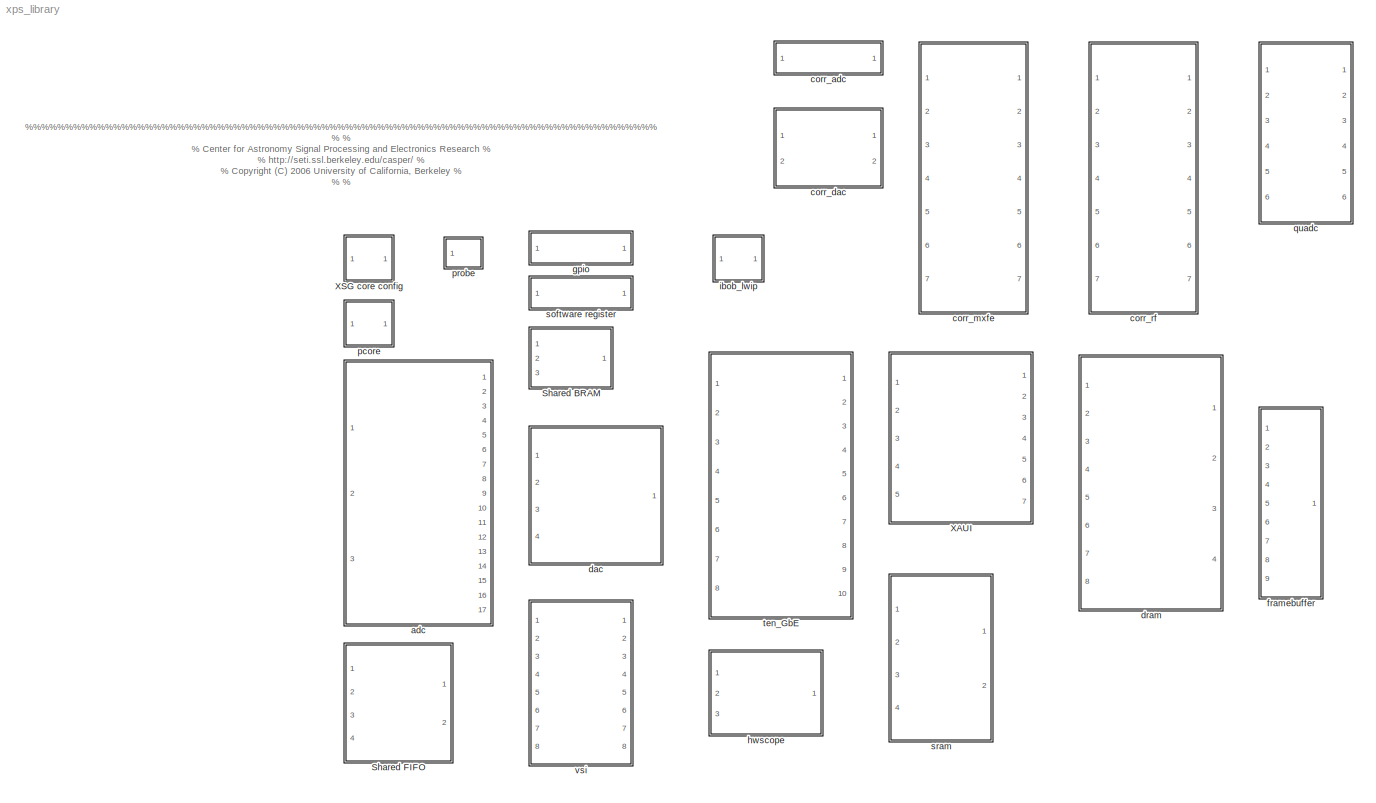
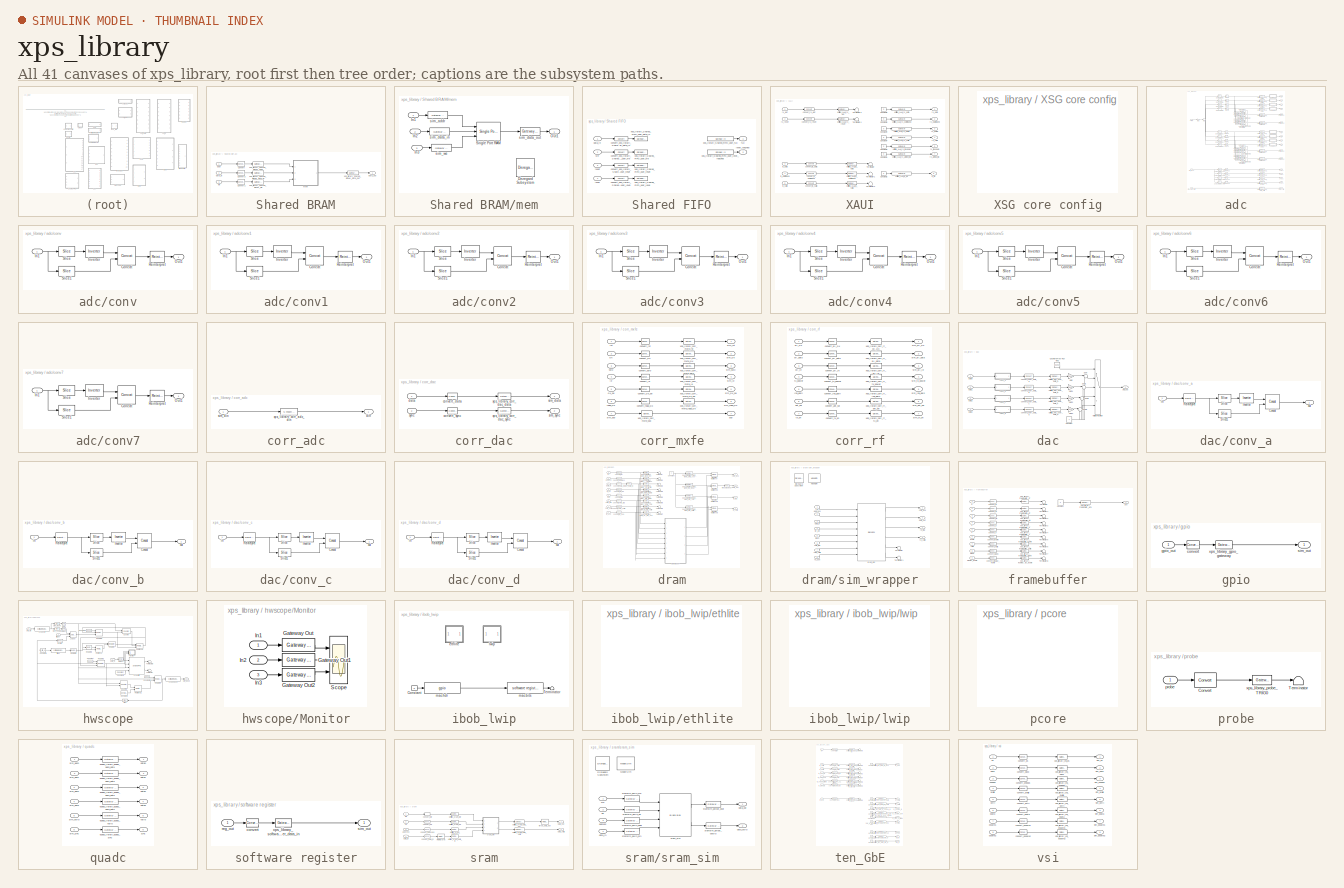
[diagram: thumbnail index - all 41 canvases of the model, root first then tree order]
MODEL xps_library
KIND library
BLOCK [SubSystem] Shared BRAM
  MaskCallbackString = |||||
  MaskEnableString = on,on,off,on,on,on
  MaskIconFrame = on
  MaskIconOpaque = on
  MaskIconRotate = none
  MaskIconUnits = pixels
  MaskInitialization = shared_bram_mask;
  MaskPromptString = Output Data Type|Address width|Data Width|Data Binary Point|Initial values (simulation only)|Sample rate
  MaskSelfModifiable = on
  MaskStyleString = popup(Unsigned|Signed  (2's comp)),edit,edit,edit,edit,edit
  MaskTabNameString = ,,,,,
  MaskToolTipString = on,on,on,on,on,on
  MaskTunableValueString = on,on,on,on,on,on
  MaskValueString = Signed  (2's comp)|11|32|0|[1:2^11]|1
  MaskVarAliasString = ,,,,,
  MaskVariables = arith_type=@1;addr_width=@2;data_width=@3;data_bin_pt=@4;init_vals=@5;sample_rate=@6;
  MaskVisibilityString = on,on,on,on,on,on
  MinAlgLoopOccurrences = off
  Ports = [3, 1]
  RTWSystemCode = Auto
  Tag = xps:bram
  TreatAsAtomicUnit = off
BLOCK [Reference] Shared BRAM/Convert  REF=xbsIndex_r3/Convert
  Ports = [1, 1]
  SourceBlock = xbsIndex_r3/Convert
  SourceType = Xilinx Converter Block
  arith_type = Unsigned
  bin_pt = 0
  dbl_ovrd = off
  explicit_period = off
  inserted_by_tool = off
  latency = 0
  n_bits = addr_width
  overflow = Wrap
  period = 1
  pipeline = off
  quantization = Truncate
  show_param = off
  xl_area = [0, 0, 0, 0, 0, 0, 0]
  xl_use_area = off
BLOCK [Reference] Shared BRAM/Convert1  REF=xbsIndex_r3/Convert
  Ports = [1, 1]
  SourceBlock = xbsIndex_r3/Convert
  SourceType = Xilinx Converter Block
  arith_type = Unsigned
  bin_pt = 0
  dbl_ovrd = off
  explicit_period = off
  inserted_by_tool = off
  latency = 0
  n_bits = 1
  overflow = Wrap
  period = 1
  pipeline = off
  quantization = Truncate
  show_param = off
  xl_area = [0, 0, 0, 0, 0, 0, 0]
  xl_use_area = off
BLOCK [Reference] Shared BRAM/Convert2  REF=xbsIndex_r3/Convert
  Ports = [1, 1]
  SourceBlock = xbsIndex_r3/Convert
  SourceType = Xilinx Converter Block
  arith_type = Signed  (2's comp)
  bin_pt = data_bin_pt
  dbl_ovrd = off
  explicit_period = off
  inserted_by_tool = off
  latency = 0
  n_bits = data_width
  overflow = Wrap
  period = 1
  pipeline = off
  quantization = Truncate
  show_param = off
  xl_area = [0, 0, 0, 0, 0, 0, 0]
  xl_use_area = off
BLOCK [Inport] Shared BRAM/addr
  IconDisplay = Port number
  LatchInput = off
  Port = 1
BLOCK [Inport] Shared BRAM/data_in
  IconDisplay = Port number
  LatchInput = off
  Port = 2
BLOCK [Outport] Shared BRAM/data_out
  BusOutputAsStruct = off
  IconDisplay = Port number
BLOCK [SubSystem] Shared BRAM/mem
  MinAlgLoopOccurrences = off
  Ports = [3, 1]
  RTWSystemCode = Auto
  TreatAsAtomicUnit = off
BLOCK [Reference] Shared BRAM/mem/Disregard Subsystem  REF=xbsIndex_r3/Disregard Subsystem
  AttributesFormatString = Disregard Subsystem\\nFor Generation
  Ports = []
  ShowPortLabels = on
  SourceBlock = xbsIndex_r3/Disregard Subsystem
  SourceType = Xilinx Disregard Subsystem For Generation
  Tag = discardX
BLOCK [Inport] Shared BRAM/mem/In1
  IconDisplay = Port number
  LatchInput = off
  Port = 1
BLOCK [Inport] Shared BRAM/mem/In2
  IconDisplay = Port number
  LatchInput = off
  Port = 2
BLOCK [Inport] Shared BRAM/mem/In3
  IconDisplay = Port number
  LatchInput = off
  Port = 3
BLOCK [Outport] Shared BRAM/mem/Out1
  BusOutputAsStruct = off
  IconDisplay = Port number
BLOCK [Reference] Shared BRAM/mem/Single Port RAM  REF=xbsIndex_r3/Single Port RAM
  Ports = [3, 1]
  SourceBlock = xbsIndex_r3/Single Port RAM
  SourceType = Xilinx Single Port Random Access Memory
  dbl_ovrd = off
  depth = 2^addr_width
  distributed_mem = off
  en = off
  explicit_period = off
  gen_core = off
  initVector = init_vals
  init_reg = 0
  init_zero = on
  latency = 1
  period = 1
  rst = off
  show_param = off
  use_rpm = off
  write_mode = Read After Write
  xl_area = [0, 0, 0, 0, 0, 0, 0]
  xl_use_area = off
BLOCK [Reference] Shared BRAM/mem/sim_addr  REF=xbsIndex_r3/Gateway In
  LOCs = {}
  Ports = [1, 1]
  SourceBlock = xbsIndex_r3/Gateway In
  SourceType = Xilinx Gateway In
  UserData = DataTag0
  UserDataPersistent = on
  arith_type = Unsigned
  bin_pt = 0
  dbl_ovrd = off
  locs_specified = off
  n_bits = addr_width
  needs_fixed_name = on
  overflow = Wrap
  period = sample_rate
  quantization = Truncate
  show_param = off
  timing_constraint = None
  xl_area = [0, 0, 0, 0, 0, 0, 0]
  xl_use_area = off
BLOCK [Reference] Shared BRAM/mem/sim_data_in  REF=xbsIndex_r3/Gateway In
  LOCs = {}
  Ports = [1, 1]
  SourceBlock = xbsIndex_r3/Gateway In
  SourceType = Xilinx Gateway In
  UserData = DataTag1
  UserDataPersistent = on
  arith_type = Signed  (2's comp)
  bin_pt = data_bin_pt
  dbl_ovrd = off
  locs_specified = off
  n_bits = data_width
  needs_fixed_name = on
  overflow = Wrap
  period = sample_rate
  quantization = Truncate
  show_param = off
  timing_constraint = None
  xl_area = [0, 0, 0, 0, 0, 0, 0]
  xl_use_area = off
BLOCK [Reference] Shared BRAM/mem/sim_data_out  REF=xbsIndex_r3/Gateway Out
  LOCs = {'B21','B22','A22','B23','B19','C19','A20','A21','A23','B24','A24','A25','E18','D18','C18','B18'}
  Ports = [1, 1]
  SourceBlock = xbsIndex_r3/Gateway Out
  SourceType = Xilinx Gateway Out
  UserData = DataTag2
  UserDataPersistent = on
  arith_type = Boolean
  bin_pt = 6
  hdl_port = on
  locs_specified = off
  nbits = 8
  needs_fixed_name = on
  output_type = Double
  overflow = Wrap
  quantization = Truncate
  show_param = off
  timing_constraint = None
  xl_area = [0, 0, 0, 0, 0, 0, 0]
  xl_use_area = off
BLOCK [Reference] Shared BRAM/mem/sim_we  REF=xbsIndex_r3/Gateway In
  LOCs = {}
  Ports = [1, 1]
  SourceBlock = xbsIndex_r3/Gateway In
  SourceType = Xilinx Gateway In
  UserData = DataTag3
  UserDataPersistent = on
  arith_type = Boolean
  bin_pt = data_bin_pt
  dbl_ovrd = off
  locs_specified = off
  n_bits = data_width
  needs_fixed_name = on
  overflow = Wrap
  period = sample_rate
  quantization = Truncate
  show_param = off
  timing_constraint = None
  xl_area = [0, 0, 0, 0, 0, 0, 0]
  xl_use_area = off
BLOCK [Inport] Shared BRAM/we
  IconDisplay = Port number
  LatchInput = off
  Port = 3
BLOCK [Reference] Shared BRAM/xps_library_Shared_BRAM_addr  REF=xbsIndex_r3/Gateway Out
  LOCs = {'A5','B9','A9','C1','A3','G6','E9','A6','A7','A8','B8','B1','B3','D9','B5','B4','B6','C2'}
  Ports = [1, 1]
  SourceBlock = xbsIndex_r3/Gateway Out
  SourceType = Xilinx Gateway Out
  UserData = DataTag4
  UserDataPersistent = on
  arith_type = Boolean
  bin_pt = 6
  hdl_port = on
  locs_specified = off
  nbits = 8
  needs_fixed_name = on
  output_type = Double
  overflow = Wrap
  quantization = Truncate
  show_param = off
  timing_constraint = None
  xl_area = [0, 0, 0, 0, 0, 0, 0]
  xl_use_area = off
BLOCK [Reference] Shared BRAM/xps_library_Shared_BRAM_data_in  REF=xbsIndex_r3/Gateway Out
  LOCs = {'B21','B22','A22','B23','B19','C19','A20','A21','A23','B24','A24','A25','E18','D18','C18','B18'}
  Ports = [1, 1]
  SourceBlock = xbsIndex_r3/Gateway Out
  SourceType = Xilinx Gateway Out
  UserData = DataTag5
  UserDataPersistent = on
  arith_type = Boolean
  bin_pt = 6
  hdl_port = on
  locs_specified = off
  nbits = 8
  needs_fixed_name = on
  output_type = Double
  overflow = Wrap
  quantization = Truncate
  show_param = off
  timing_constraint = None
  xl_area = [0, 0, 0, 0, 0, 0, 0]
  xl_use_area = off
BLOCK [Reference] Shared BRAM/xps_library_Shared_BRAM_data_out  REF=xbsIndex_r3/Gateway In
  LOCs = {}
  Ports = [1, 1]
  SourceBlock = xbsIndex_r3/Gateway In
  SourceType = Xilinx Gateway In
  UserData = DataTag6
  UserDataPersistent = on
  arith_type = Signed  (2's comp)
  bin_pt = data_bin_pt
  dbl_ovrd = off
  locs_specified = off
  n_bits = data_width
  needs_fixed_name = on
  overflow = Wrap
  period = sample_rate
  quantization = Truncate
  show_param = off
  timing_constraint = None
  xl_area = [0, 0, 0, 0, 0, 0, 0]
  xl_use_area = off
BLOCK [Reference] Shared BRAM/xps_library_Shared_BRAM_we  REF=xbsIndex_r3/Gateway Out
  LOCs = {'A14'}
  Ports = [1, 1]
  SourceBlock = xbsIndex_r3/Gateway Out
  SourceType = Xilinx Gateway Out
  UserData = DataTag7
  UserDataPersistent = on
  arith_type = Boolean
  bin_pt = 6
  hdl_port = on
  locs_specified = off
  nbits = 8
  needs_fixed_name = on
  output_type = Double
  overflow = Wrap
  quantization = Truncate
  show_param = off
  timing_constraint = None
  xl_area = [0, 0, 0, 0, 0, 0, 0]
  xl_use_area = off
BLOCK [SubSystem] Shared FIFO
  MaskCallbackString = ||||
  MaskEnableString = on,on,on,on,on
  MaskIconFrame = on
  MaskIconOpaque = on
  MaskIconRotate = none
  MaskIconUnits = autoscale
  MaskInitialization = fifo_mask;
  MaskPromptString = I/O Direction:|Data Type:|Data Width:|Data Binary Point:|Depth:
  MaskSelfModifiable = on
  MaskStyleString = popup(From Processor|To Processor),popup(Unsigned|Signed  (2's comp)),popup(4|8|16|32|64|128|256),edit,popup(512|1024|2048|4096|8192|16384|32768|65536)
  MaskTabNameString = ,,,,
  MaskToolTipString = on,on,on,on,on
  MaskTunableValueString = on,on,on,on,on
  MaskValueString = To Processor|Unsigned|32|0|512
  MaskVarAliasString = ,,,,
  MaskVariables = io_dir=@1;arith_type=&2;data_width=@3;data_bin_pt=@4;fifo_length=&5;
  MaskVisibilityString = on,on,on,on,on
  MinAlgLoopOccurrences = off
  Ports = [4, 2]
  RTWSystemCode = Auto
  Tag = xps:fifo
  TreatAsAtomicUnit = off
BLOCK [Reference] Shared FIFO/convert_xps_library_Shared_FIFO_user_data_in  REF=xbsIndex_r3/Convert
  Ports = [1, 1]
  SourceBlock = xbsIndex_r3/Convert
  SourceType = Xilinx Converter Block
  arith_type = Unsigned
  bin_pt = 0
  dbl_ovrd = off
  explicit_period = off
  inserted_by_tool = off
  latency = 0
  n_bits = 32
  overflow = Wrap
  period = 1
  pipeline = off
  quantization = Truncate
  show_param = off
  xl_area = [0, 0, 0, 0, 0, 0, 0]
  xl_use_area = off
BLOCK [Reference] Shared FIFO/convert_xps_library_Shared_FIFO_user_level  REF=xbsIndex_r3/Convert
  Ports = [1, 1]
  SourceBlock = xbsIndex_r3/Convert
  SourceType = Xilinx Converter Block
  arith_type = Unsigned
  bin_pt = 0
  dbl_ovrd = off
  explicit_period = off
  inserted_by_tool = off
  latency = 0
  n_bits = 16
  overflow = Wrap
  period = 1
  pipeline = off
  quantization = Truncate
  show_param = off
  xl_area = [0, 0, 0, 0, 0, 0, 0]
  xl_use_area = off
BLOCK [Reference] Shared FIFO/convert_xps_library_Shared_FIFO_user_reset  REF=xbsIndex_r3/Convert
  Ports = [1, 1]
  SourceBlock = xbsIndex_r3/Convert
  SourceType = Xilinx Converter Block
  arith_type = Unsigned
  bin_pt = 0
  dbl_ovrd = off
  explicit_period = off
  inserted_by_tool = off
  latency = 0
  n_bits = 1
  overflow = Wrap
  period = 1
  pipeline = off
  quantization = Truncate
  show_param = off
  xl_area = [0, 0, 0, 0, 0, 0, 0]
  xl_use_area = off
BLOCK [Reference] Shared FIFO/convert_xps_library_Shared_FIFO_user_we  REF=xbsIndex_r3/Convert
  Ports = [1, 1]
  SourceBlock = xbsIndex_r3/Convert
  SourceType = Xilinx Converter Block
  arith_type = Unsigned
  bin_pt = 0
  dbl_ovrd = off
  explicit_period = off
  inserted_by_tool = off
  latency = 0
  n_bits = 1
  overflow = Wrap
  period = 1
  pipeline = off
  quantization = Truncate
  show_param = off
  xl_area = [0, 0, 0, 0, 0, 0, 0]
  xl_use_area = off
BLOCK [Inport] Shared FIFO/data_in
  IconDisplay = Port number
  LatchInput = off
  Port = 1
BLOCK [Outport] Shared FIFO/full
  BusOutputAsStruct = off
  IconDisplay = Port number
BLOCK [Inport] Shared FIFO/level
  IconDisplay = Port number
  LatchInput = off
  Port = 4
BLOCK [Outport] Shared FIFO/level_reached
  BusOutputAsStruct = off
  IconDisplay = Port number
  Port = 2
BLOCK [Inport] Shared FIFO/reset
  IconDisplay = Port number
  LatchInput = off
  Port = 3
BLOCK [Inport] Shared FIFO/we
  IconDisplay = Port number
  LatchInput = off
  Port = 2
BLOCK [Reference] Shared FIFO/xps_library_Shared_FIFO_user_data_in  REF=xbsIndex_r3/Gateway Out
  LOCs = {}
  Ports = [1, 1]
  SourceBlock = xbsIndex_r3/Gateway Out
  SourceType = Xilinx Gateway Out
  arith_type = Boolean
  bin_pt = 6
  hdl_port = on
  locs_specified = off
  nbits = 8
  needs_fixed_name = off
  output_type = Double
  overflow = Wrap
  quantization = Truncate
  show_param = off
  timing_constraint = None
  xl_area = [0, 0, 0, 0, 0, 0, 0]
  xl_use_area = off
BLOCK [Reference] Shared FIFO/xps_library_Shared_FIFO_user_full  REF=xbsIndex_r3/Gateway In
  LOCs = {}
  Ports = [1, 1]
  SourceBlock = xbsIndex_r3/Gateway In
  SourceType = Xilinx Gateway In
  arith_type = Boolean
  bin_pt = 0
  dbl_ovrd = off
  locs_specified = off
  n_bits = 1
  needs_fixed_name = off
  overflow = Wrap
  period = 1
  quantization = Truncate
  show_param = off
  timing_constraint = None
  xl_area = [0, 0, 0, 0, 0, 0, 0]
  xl_use_area = off
BLOCK [Reference] Shared FIFO/xps_library_Shared_FIFO_user_level  REF=xbsIndex_r3/Gateway Out
  LOCs = {}
  Ports = [1, 1]
  SourceBlock = xbsIndex_r3/Gateway Out
  SourceType = Xilinx Gateway Out
  arith_type = Boolean
  bin_pt = 6
  hdl_port = on
  locs_specified = off
  nbits = 8
  needs_fixed_name = off
  output_type = Double
  overflow = Wrap
  quantization = Truncate
  show_param = off
  timing_constraint = None
  xl_area = [0, 0, 0, 0, 0, 0, 0]
  xl_use_area = off
BLOCK [Reference] Shared FIFO/xps_library_Shared_FIFO_user_level_reached  REF=xbsIndex_r3/Gateway In
  LOCs = {}
  Ports = [1, 1]
  SourceBlock = xbsIndex_r3/Gateway In
  SourceType = Xilinx Gateway In
  arith_type = Boolean
  bin_pt = 0
  dbl_ovrd = off
  locs_specified = off
  n_bits = 1
  needs_fixed_name = off
  overflow = Wrap
  period = 1
  quantization = Truncate
  show_param = off
  timing_constraint = None
  xl_area = [0, 0, 0, 0, 0, 0, 0]
  xl_use_area = off
BLOCK [Reference] Shared FIFO/xps_library_Shared_FIFO_user_reset  REF=xbsIndex_r3/Gateway Out
  LOCs = {}
  Ports = [1, 1]
  SourceBlock = xbsIndex_r3/Gateway Out
  SourceType = Xilinx Gateway Out
  arith_type = Boolean
  bin_pt = 6
  hdl_port = on
  locs_specified = off
  nbits = 8
  needs_fixed_name = off
  output_type = Double
  overflow = Wrap
  quantization = Truncate
  show_param = off
  timing_constraint = None
  xl_area = [0, 0, 0, 0, 0, 0, 0]
  xl_use_area = off
BLOCK [Reference] Shared FIFO/xps_library_Shared_FIFO_user_we  REF=xbsIndex_r3/Gateway Out
  LOCs = {}
  Ports = [1, 1]
  SourceBlock = xbsIndex_r3/Gateway Out
  SourceType = Xilinx Gateway Out
  arith_type = Boolean
  bin_pt = 6
  hdl_port = on
  locs_specified = off
  nbits = 8
  needs_fixed_name = off
  output_type = Double
  overflow = Wrap
  quantization = Truncate
  show_param = off
  timing_constraint = None
  xl_area = [0, 0, 0, 0, 0, 0, 0]
  xl_use_area = off
BLOCK [SubSystem] XAUI
  MaskCallbackString = ||myname=gcb;\nif strcmp(get_param(myname, 'show_param'), 'on')\n    set_param(myname, 'MaskVisibilities', {'on','on','on','on','on'});\nelse\n    set_param(myname, 'MaskVisibilities', {'on','on','on','off','off'});\nend||
  MaskDescription = XAUI block for sending and receiving point-to-point, streaming data over the BEE2 and iBOB's CX4 connectors. NOTE: A new version of this block is in development.
  MaskEnableString = on,on,on,on,on
  MaskHelp = eval('xlWeb([getenv(''MLIB_ROOT''), ''<path>''])')
  MaskIconFrame = on
  MaskIconOpaque = on
  MaskIconRotate = none
  MaskIconUnits = autoscale
  MaskInitialization = xaui_mask;
  MaskPromptString = Demux|Port|---------------------- Show Implementation Parameters -----------------------------------------------------------------------------------|Pre-emphasis|Differential swing
  MaskSelfModifiable = on
  MaskStyleString = popup(1|2),popup(iBOB:0|iBOB:1|BEE2_ctrl:0|BEE2_ctrl:1|BEE2_usr:0|BEE2_usr:1|BEE2_usr:2|BEE2_usr:3|CORR:0),checkbox,popup(0|1|2|3),popup(400|500|600|700|800)
  MaskTabNameString = ,,,,
  MaskToolTipString = on,on,on,on,on
  MaskTunableValueString = off,off,off,off,off
  MaskType = xaui
  MaskValueString = 1|iBOB:0|off|3|800
  MaskVarAliasString = ,,,,
  MaskVariables = demux=@1;port=@2;show_param=&3;pre_emph=@4;swing=@5;
  MaskVisibilityString = on,on,on,off,off
  MinAlgLoopOccurrences = off
  Ports = [5, 7]
  RTWSystemCode = Auto
  Tag = xps:xaui
  TreatAsAtomicUnit = off
BLOCK [Constant] XAUI/Constant1
  Value = 0
BLOCK [Constant] XAUI/Constant2
  Value = 0
BLOCK [Constant] XAUI/Constant3
  Value = 0
BLOCK [Constant] XAUI/Constant4
  Value = 0
BLOCK [Constant] XAUI/Constant5
  Value = 0
BLOCK [Constant] XAUI/Constant6
  Value = 0
BLOCK [Constant] XAUI/Constant7
  Value = 0
BLOCK [Terminator] XAUI/Terminator
BLOCK [Terminator] XAUI/Terminator1
BLOCK [Terminator] XAUI/Terminator2
BLOCK [Terminator] XAUI/Terminator3
BLOCK [Terminator] XAUI/Terminator4
BLOCK [Reference] XAUI/convert_rx_get  REF=xbsIndex_r3/Convert
  Ports = [1, 1]
  SourceBlock = xbsIndex_r3/Convert
  SourceType = Xilinx Converter Block
  arith_type = Boolean
  bin_pt = 0
  dbl_ovrd = off
  explicit_period = off
  inserted_by_tool = off
  latency = 0
  n_bits = 64
  overflow = Wrap
  period = 1
  pipeline = off
  quantization = Truncate
  show_param = off
  xl_area = [0, 0, 0, 0, 0, 0, 0]
  xl_use_area = off
BLOCK [Reference] XAUI/convert_rx_reset  REF=xbsIndex_r3/Convert
  Ports = [1, 1]
  SourceBlock = xbsIndex_r3/Convert
  SourceType = Xilinx Converter Block
  arith_type = Boolean
  bin_pt = 0
  dbl_ovrd = off
  explicit_period = off
  inserted_by_tool = off
  latency = 0
  n_bits = 1
  overflow = Wrap
  period = 1
  pipeline = off
  quantization = Truncate
  show_param = off
  xl_area = [0, 0, 0, 0, 0, 0, 0]
  xl_use_area = off
BLOCK [Reference] XAUI/convert_tx_data  REF=xbsIndex_r3/Convert
  Ports = [1, 1]
  SourceBlock = xbsIndex_r3/Convert
  SourceType = Xilinx Converter Block
  arith_type = Unsigned
  bin_pt = 0
  dbl_ovrd = off
  explicit_period = off
  inserted_by_tool = off
  latency = 0
  n_bits = 64
  overflow = Wrap
  period = 1
  pipeline = off
  quantization = Truncate
  show_param = off
  xl_area = [0, 0, 0, 0, 0, 0, 0]
  xl_use_area = off
BLOCK [Reference] XAUI/convert_tx_outofband  REF=xbsIndex_r3/Convert
  Ports = [1, 1]
  SourceBlock = xbsIndex_r3/Convert
  SourceType = Xilinx Converter Block
  arith_type = Unsigned
  bin_pt = 0
  dbl_ovrd = off
  explicit_period = off
  inserted_by_tool = off
  latency = 0
  n_bits = 8
  overflow = Wrap
  period = 1
  pipeline = off
  quantization = Truncate
  show_param = off
  xl_area = [0, 0, 0, 0, 0, 0, 0]
  xl_use_area = off
BLOCK [Reference] XAUI/convert_tx_valid  REF=xbsIndex_r3/Convert
  Ports = [1, 1]
  SourceBlock = xbsIndex_r3/Convert
  SourceType = Xilinx Converter Block
  arith_type = Boolean
  bin_pt = 0
  dbl_ovrd = off
  explicit_period = off
  inserted_by_tool = off
  latency = 0
  n_bits = 1
  overflow = Wrap
  period = 1
  pipeline = off
  quantization = Truncate
  show_param = off
  xl_area = [0, 0, 0, 0, 0, 0, 0]
  xl_use_area = off
BLOCK [Outport] XAUI/rx_almost_full
  BusOutputAsStruct = off
  IconDisplay = Port number
  Port = 7
BLOCK [Outport] XAUI/rx_data
  BusOutputAsStruct = off
  IconDisplay = Port number
BLOCK [Outport] XAUI/rx_empty
  BusOutputAsStruct = off
  IconDisplay = Port number
  Port = 3
BLOCK [Inport] XAUI/rx_get
  IconDisplay = Port number
  LatchInput = off
  Port = 1
BLOCK [Outport] XAUI/rx_linkdown
  BusOutputAsStruct = off
  IconDisplay = Port number
  Port = 5
BLOCK [Outport] XAUI/rx_outofband
  BusOutputAsStruct = off
  IconDisplay = Port number
  Port = 2
BLOCK [Inport] XAUI/rx_reset
  IconDisplay = Port number
  LatchInput = off
  Port = 2
BLOCK [Outport] XAUI/rx_valid
  BusOutputAsStruct = off
  IconDisplay = Port number
  Port = 4
BLOCK [Inport] XAUI/tx_data
  IconDisplay = Port number
  LatchInput = off
  Port = 3
BLOCK [Outport] XAUI/tx_full
  BusOutputAsStruct = off
  IconDisplay = Port number
  Port = 6
BLOCK [Inport] XAUI/tx_outofband
  IconDisplay = Port number
  LatchInput = off
  Port = 4
BLOCK [Inport] XAUI/tx_valid
  IconDisplay = Port number
  LatchInput = off
  Port = 5
BLOCK [Reference] XAUI/untitled_XAUI_rx_almost_full  REF=xbsIndex_r3/Gateway In
  LOCs = {}
  Ports = [1, 1]
  SourceBlock = xbsIndex_r3/Gateway In
  SourceType = Xilinx Gateway In
  arith_type = Boolean
  bin_pt = 0
  dbl_ovrd = off
  locs_specified = off
  n_bits = 1
  needs_fixed_name = off
  overflow = Wrap
  period = 1
  quantization = Truncate
  show_param = off
  timing_constraint = None
  xl_area = [0, 0, 0, 0, 0, 0, 0]
  xl_use_area = off
BLOCK [Reference] XAUI/untitled_XAUI_rx_data  REF=xbsIndex_r3/Gateway In
  LOCs = {}
  Ports = [1, 1]
  SourceBlock = xbsIndex_r3/Gateway In
  SourceType = Xilinx Gateway In
  arith_type = Unsigned
  bin_pt = 0
  dbl_ovrd = off
  locs_specified = off
  n_bits = 64
  needs_fixed_name = off
  overflow = Wrap
  period = 1
  quantization = Truncate
  show_param = off
  timing_constraint = None
  xl_area = [0, 0, 0, 0, 0, 0, 0]
  xl_use_area = off
BLOCK [Reference] XAUI/untitled_XAUI_rx_empty  REF=xbsIndex_r3/Gateway In
  LOCs = {}
  Ports = [1, 1]
  SourceBlock = xbsIndex_r3/Gateway In
  SourceType = Xilinx Gateway In
  arith_type = Boolean
  bin_pt = 0
  dbl_ovrd = off
  locs_specified = off
  n_bits = 1
  needs_fixed_name = off
  overflow = Wrap
  period = 1
  quantization = Truncate
  show_param = off
  timing_constraint = None
  xl_area = [0, 0, 0, 0, 0, 0, 0]
  xl_use_area = off
BLOCK [Reference] XAUI/untitled_XAUI_rx_get  REF=xbsIndex_r3/Gateway Out
  LOCs = {}
  Ports = [1, 1]
  SourceBlock = xbsIndex_r3/Gateway Out
  SourceType = Xilinx Gateway Out
  arith_type = Boolean
  bin_pt = 6
  hdl_port = on
  locs_specified = off
  nbits = 8
  needs_fixed_name = off
  output_type = Double
  overflow = Wrap
  quantization = Truncate
  show_param = off
  timing_constraint = None
  xl_area = [0, 0, 0, 0, 0, 0, 0]
  xl_use_area = off
BLOCK [Reference] XAUI/untitled_XAUI_rx_linkdown  REF=xbsIndex_r3/Gateway In
  LOCs = {}
  Ports = [1, 1]
  SourceBlock = xbsIndex_r3/Gateway In
  SourceType = Xilinx Gateway In
  arith_type = Boolean
  bin_pt = 0
  dbl_ovrd = off
  locs_specified = off
  n_bits = 1
  needs_fixed_name = off
  overflow = Wrap
  period = 1
  quantization = Truncate
  show_param = off
  timing_constraint = None
  xl_area = [0, 0, 0, 0, 0, 0, 0]
  xl_use_area = off
BLOCK [Reference] XAUI/untitled_XAUI_rx_outofband  REF=xbsIndex_r3/Gateway In
  LOCs = {}
  Ports = [1, 1]
  SourceBlock = xbsIndex_r3/Gateway In
  SourceType = Xilinx Gateway In
  arith_type = Unsigned
  bin_pt = 0
  dbl_ovrd = off
  locs_specified = off
  n_bits = 8
  needs_fixed_name = off
  overflow = Wrap
  period = 1
  quantization = Truncate
  show_param = off
  timing_constraint = None
  xl_area = [0, 0, 0, 0, 0, 0, 0]
  xl_use_area = off
BLOCK [Reference] XAUI/untitled_XAUI_rx_reset  REF=xbsIndex_r3/Gateway Out
  LOCs = {}
  Ports = [1, 1]
  SourceBlock = xbsIndex_r3/Gateway Out
  SourceType = Xilinx Gateway Out
  arith_type = Boolean
  bin_pt = 6
  hdl_port = on
  locs_specified = off
  nbits = 8
  needs_fixed_name = off
  output_type = Double
  overflow = Wrap
  quantization = Truncate
  show_param = off
  timing_constraint = None
  xl_area = [0, 0, 0, 0, 0, 0, 0]
  xl_use_area = off
BLOCK [Reference] XAUI/untitled_XAUI_rx_valid  REF=xbsIndex_r3/Gateway In
  LOCs = {}
  Ports = [1, 1]
  SourceBlock = xbsIndex_r3/Gateway In
  SourceType = Xilinx Gateway In
  arith_type = Boolean
  bin_pt = 0
  dbl_ovrd = off
  locs_specified = off
  n_bits = 1
  needs_fixed_name = off
  overflow = Wrap
  period = 1
  quantization = Truncate
  show_param = off
  timing_constraint = None
  xl_area = [0, 0, 0, 0, 0, 0, 0]
  xl_use_area = off
BLOCK [Reference] XAUI/untitled_XAUI_tx_data  REF=xbsIndex_r3/Gateway Out
  LOCs = {}
  Ports = [1, 1]
  SourceBlock = xbsIndex_r3/Gateway Out
  SourceType = Xilinx Gateway Out
  arith_type = Boolean
  bin_pt = 6
  hdl_port = on
  locs_specified = off
  nbits = 8
  needs_fixed_name = off
  output_type = Double
  overflow = Wrap
  quantization = Truncate
  show_param = off
  timing_constraint = None
  xl_area = [0, 0, 0, 0, 0, 0, 0]
  xl_use_area = off
BLOCK [Reference] XAUI/untitled_XAUI_tx_full  REF=xbsIndex_r3/Gateway In
  LOCs = {}
  Ports = [1, 1]
  SourceBlock = xbsIndex_r3/Gateway In
  SourceType = Xilinx Gateway In
  arith_type = Boolean
  bin_pt = 0
  dbl_ovrd = off
  locs_specified = off
  n_bits = 1
  needs_fixed_name = off
  overflow = Wrap
  period = 1
  quantization = Truncate
  show_param = off
  timing_constraint = None
  xl_area = [0, 0, 0, 0, 0, 0, 0]
  xl_use_area = off
BLOCK [Reference] XAUI/untitled_XAUI_tx_outofband  REF=xbsIndex_r3/Gateway Out
  LOCs = {}
  Ports = [1, 1]
  SourceBlock = xbsIndex_r3/Gateway Out
  SourceType = Xilinx Gateway Out
  arith_type = Boolean
  bin_pt = 6
  hdl_port = on
  locs_specified = off
  nbits = 8
  needs_fixed_name = off
  output_type = Double
  overflow = Wrap
  quantization = Truncate
  show_param = off
  timing_constraint = None
  xl_area = [0, 0, 0, 0, 0, 0, 0]
  xl_use_area = off
BLOCK [Reference] XAUI/untitled_XAUI_tx_valid  REF=xbsIndex_r3/Gateway Out
  LOCs = {}
  Ports = [1, 1]
  SourceBlock = xbsIndex_r3/Gateway Out
  SourceType = Xilinx Gateway Out
  arith_type = Boolean
  bin_pt = 6
  hdl_port = on
  locs_specified = off
  nbits = 8
  needs_fixed_name = off
  output_type = Double
  overflow = Wrap
  quantization = Truncate
  show_param = off
  timing_constraint = None
  xl_area = [0, 0, 0, 0, 0, 0, 0]
  xl_use_area = off
BLOCK [SubSystem] XSG core config
  MaskCallbackString = myname=gcb;\nif strcmp(get_param(myname,'hw_sys'), 'iBOB')\n    if strmatch('usr_clk', get_param(myname,'clk_src'))\n        set_param(myname, 'MaskVisibilities', {'on','on','on','on','on','on','on','on','off'});\n    else\n        set_param(myname, 'MaskVisibilities', {'on','on','on','off','off','on','on','on','off'});\n    end\nelse\n    set_param(myname, 'MaskVisibilities', {'on','off','on','of...<+482ch>
  MaskDescription = The XSG Core Config block is used to configure the System Generator design\nfor the bee_xps toolflow. Settings here are used to configure the\nXilinx System Generator block parameters automatically, and control toolflow\nscript  execution. It needs to be at the top level of all designs being compiled\nwith the bee_xps toolflow.
  MaskDisplay = fprintf('MSSGE');
  MaskEnableString = on,on,on,on,on,on,on,on,on
  MaskHelp = eval('xlWeb([getenv(''MLIB_ROOT''), ''<path>''])')
  MaskIconFrame = on
  MaskIconOpaque = on
  MaskIconRotate = none
  MaskIconUnits = autoscale
  MaskInitialization = xps_xsg_conf_mask;
  MaskPromptString = Hardware Platform|Include Linux add-on board support|User IP Clock source|GPIO Clock Pin I/O group|GPIO Clock Pin bit index|User IP Clock Rate (MHz)|Sample Period|Synthesis Tool:|Mask Parameter 10:
  MaskSelfModifiable = on
  MaskStyleString = popup(iBOB|BEE2_ctrl|BEE2_usr|CORR),checkbox,popup(sys_clk|sys_clk2x|usr_clk|usr_clk2x|adc0_clk|adc1_clk|dac0_clk|dac1_clk),popup(iBOB:gpio0|iBOB:gpio1|iBOB:gpio2|iBOB:gpio3|iBOB:sma|iBOB:zdok0|iBOB:zdok1|iBOB:mdr),edit,edit,edit,popup(Leonardo Spectrum|Synplify|Synplify Pro|XST),edit
  MaskTabNameString = ,,,,,,,,
  MaskToolTipString = on,on,on,on,on,on,on,on,on
  MaskTunableValueString = off,off,off,off,off,off,off,off,off
  MaskType = xsg core config
  MaskValueString = iBOB|off|sys_clk|iBOB:sma|0|100|1|XST|powerpc405
  MaskVarAliasString = ,,,,,,,,
  MaskVariables = hw_sys=@1;ibob_linux=@2;clk_src=@3;gpio_clk_io_group=@4;gpio_clk_bit_index=@5;clk_rate=@6;sample_period=@7;synthesis_tool=@8;mpc_type=@9;
  MaskVisibilityString = on,on,on,off,off,on,on,on,off
  MinAlgLoopOccurrences = off
  Ports = []
  RTWSystemCode = Auto
  Tag = xps:xsg
  TreatAsAtomicUnit = off
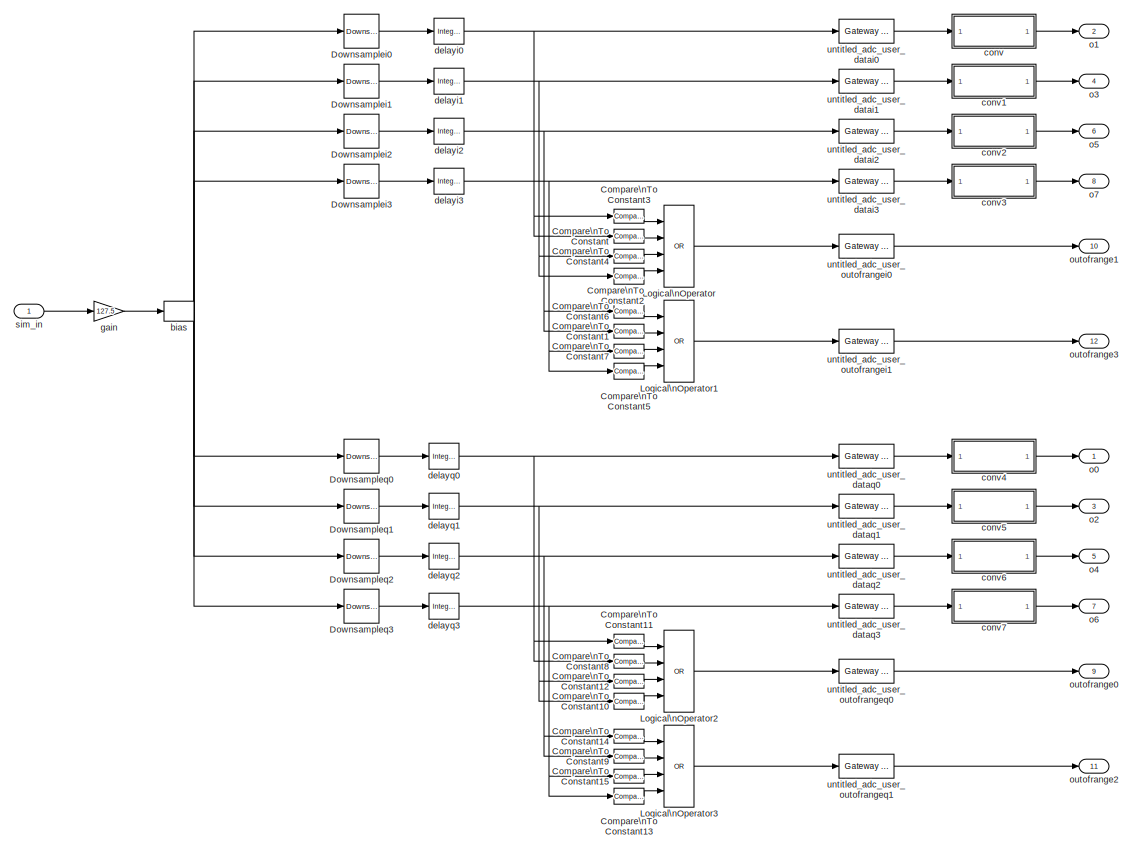
[diagram: adc - part 1/2, full width, middle band]
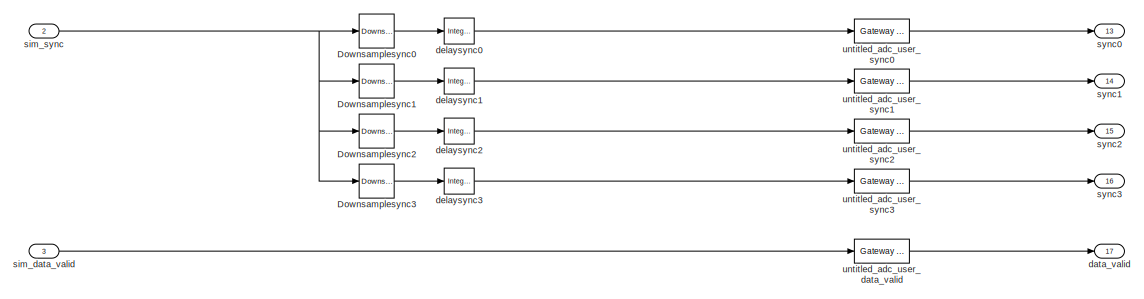
[diagram: adc - part 2/2, full width, bottom band]
BLOCK [SubSystem] adc
  MaskCallbackString = |||
  MaskDescription = The ADC block converts analog inputs to digital outputs. Every clock cycle, the inputs are sampled and digitized to 8 bit binary point numbers in the range of [-1, 1) and are then output by the adc.
  MaskDisplay = \n
  MaskEnableString = on,on,on,on
  MaskHelp = eval('xlWeb([getenv(''MLIB_ROOT''), ''<path>''])')
  MaskIconFrame = on
  MaskIconOpaque = on
  MaskIconRotate = none
  MaskIconUnits = autoscale
  MaskInitialization = adc_mask;
  MaskPromptString = ADC board|ADC clock rate (MHz)|ADC interleave mode|Sample period
  MaskSelfModifiable = on
  MaskStyleString = popup(iBOB:adc0|iBOB:adc1),edit,checkbox,edit
  MaskTabNameString = ,,,
  MaskToolTipString = on,on,on,on
  MaskTunableValueString = on,on,on,on
  MaskType = adc
  MaskValueString = iBOB:adc0|800|on|1
  MaskVarAliasString = ,,,
  MaskVariables = adc_brd=@1;adc_clk_rate=@2;adc_interleave=@3;sample_period=@4;
  MaskVisibilityString = on,on,on,on
  MinAlgLoopOccurrences = off
  Ports = [3, 17]
  RTWSystemCode = Auto
  Tag = xps:adc
  TreatAsAtomicUnit = off
BLOCK [Reference] adc/Compare\nTo Constant  REF=simulink/Logic and Bit\nOperations/Compare\nTo Constant
  LogicOutDataTypeMode = boolean
  Ports = [1, 1]
  ShowPortLabels = on
  SourceBlock = simulink/Logic and Bit\nOperations/Compare\nTo Constant
  SourceType = Compare To Constant
  ZeroCross = off
  const = 255
  relop = >
BLOCK [Reference] adc/Compare\nTo Constant1  REF=simulink/Logic and Bit\nOperations/Compare\nTo Constant
  LogicOutDataTypeMode = boolean
  Ports = [1, 1]
  ShowPortLabels = on
  SourceBlock = simulink/Logic and Bit\nOperations/Compare\nTo Constant
  SourceType = Compare To Constant
  ZeroCross = off
  const = 255
  relop = >
BLOCK [Reference] adc/Compare\nTo Constant10  REF=simulink/Logic and Bit\nOperations/Compare\nTo Constant
  LogicOutDataTypeMode = boolean
  Ports = [1, 1]
  ShowPortLabels = on
  SourceBlock = simulink/Logic and Bit\nOperations/Compare\nTo Constant
  SourceType = Compare To Constant
  ZeroCross = off
  const = 255
  relop = >
BLOCK [Reference] adc/Compare\nTo Constant11  REF=simulink/Logic and Bit\nOperations/Compare\nTo Constant
  LogicOutDataTypeMode = boolean
  Ports = [1, 1]
  ShowPortLabels = on
  SourceBlock = simulink/Logic and Bit\nOperations/Compare\nTo Constant
  SourceType = Compare To Constant
  ZeroCross = off
  const = 0
  relop = <
BLOCK [Reference] adc/Compare\nTo Constant12  REF=simulink/Logic and Bit\nOperations/Compare\nTo Constant
  LogicOutDataTypeMode = boolean
  Ports = [1, 1]
  ShowPortLabels = on
  SourceBlock = simulink/Logic and Bit\nOperations/Compare\nTo Constant
  SourceType = Compare To Constant
  ZeroCross = off
  const = 0
  relop = <
BLOCK [Reference] adc/Compare\nTo Constant13  REF=simulink/Logic and Bit\nOperations/Compare\nTo Constant
  LogicOutDataTypeMode = boolean
  Ports = [1, 1]
  ShowPortLabels = on
  SourceBlock = simulink/Logic and Bit\nOperations/Compare\nTo Constant
  SourceType = Compare To Constant
  ZeroCross = off
  const = 255
  relop = >
BLOCK [Reference] adc/Compare\nTo Constant14  REF=simulink/Logic and Bit\nOperations/Compare\nTo Constant
  LogicOutDataTypeMode = boolean
  Ports = [1, 1]
  ShowPortLabels = on
  SourceBlock = simulink/Logic and Bit\nOperations/Compare\nTo Constant
  SourceType = Compare To Constant
  ZeroCross = off
  const = 0
  relop = <
BLOCK [Reference] adc/Compare\nTo Constant15  REF=simulink/Logic and Bit\nOperations/Compare\nTo Constant
  LogicOutDataTypeMode = boolean
  Ports = [1, 1]
  ShowPortLabels = on
  SourceBlock = simulink/Logic and Bit\nOperations/Compare\nTo Constant
  SourceType = Compare To Constant
  ZeroCross = off
  const = 0
  relop = <
BLOCK [Reference] adc/Compare\nTo Constant2  REF=simulink/Logic and Bit\nOperations/Compare\nTo Constant
  LogicOutDataTypeMode = boolean
  Ports = [1, 1]
  ShowPortLabels = on
  SourceBlock = simulink/Logic and Bit\nOperations/Compare\nTo Constant
  SourceType = Compare To Constant
  ZeroCross = off
  const = 255
  relop = >
BLOCK [Reference] adc/Compare\nTo Constant3  REF=simulink/Logic and Bit\nOperations/Compare\nTo Constant
  LogicOutDataTypeMode = boolean
  Ports = [1, 1]
  ShowPortLabels = on
  SourceBlock = simulink/Logic and Bit\nOperations/Compare\nTo Constant
  SourceType = Compare To Constant
  ZeroCross = off
  const = 0
  relop = <
BLOCK [Reference] adc/Compare\nTo Constant4  REF=simulink/Logic and Bit\nOperations/Compare\nTo Constant
  LogicOutDataTypeMode = boolean
  Ports = [1, 1]
  ShowPortLabels = on
  SourceBlock = simulink/Logic and Bit\nOperations/Compare\nTo Constant
  SourceType = Compare To Constant
  ZeroCross = off
  const = 0
  relop = <
BLOCK [Reference] adc/Compare\nTo Constant5  REF=simulink/Logic and Bit\nOperations/Compare\nTo Constant
  LogicOutDataTypeMode = boolean
  Ports = [1, 1]
  ShowPortLabels = on
  SourceBlock = simulink/Logic and Bit\nOperations/Compare\nTo Constant
  SourceType = Compare To Constant
  ZeroCross = off
  const = 255
  relop = >
BLOCK [Reference] adc/Compare\nTo Constant6  REF=simulink/Logic and Bit\nOperations/Compare\nTo Constant
  LogicOutDataTypeMode = boolean
  Ports = [1, 1]
  ShowPortLabels = on
  SourceBlock = simulink/Logic and Bit\nOperations/Compare\nTo Constant
  SourceType = Compare To Constant
  ZeroCross = off
  const = 0
  relop = <
BLOCK [Reference] adc/Compare\nTo Constant7  REF=simulink/Logic and Bit\nOperations/Compare\nTo Constant
  LogicOutDataTypeMode = boolean
  Ports = [1, 1]
  ShowPortLabels = on
  SourceBlock = simulink/Logic and Bit\nOperations/Compare\nTo Constant
  SourceType = Compare To Constant
  ZeroCross = off
  const = 0
  relop = <
BLOCK [Reference] adc/Compare\nTo Constant8  REF=simulink/Logic and Bit\nOperations/Compare\nTo Constant
  LogicOutDataTypeMode = boolean
  Ports = [1, 1]
  ShowPortLabels = on
  SourceBlock = simulink/Logic and Bit\nOperations/Compare\nTo Constant
  SourceType = Compare To Constant
  ZeroCross = off
  const = 255
  relop = >
BLOCK [Reference] adc/Compare\nTo Constant9  REF=simulink/Logic and Bit\nOperations/Compare\nTo Constant
  LogicOutDataTypeMode = boolean
  Ports = [1, 1]
  ShowPortLabels = on
  SourceBlock = simulink/Logic and Bit\nOperations/Compare\nTo Constant
  SourceType = Compare To Constant
  ZeroCross = off
  const = 255
  relop = >
BLOCK [Reference] adc/Downsamplei0  REF=dspsigops/Downsample
  N = 8
  Ports = [1, 1]
  SourceBlock = dspsigops/Downsample
  SourceType = Downsample
  fmode = Maintain input frame size
  ic = 0
  phase = 1
  smode = Allow multirate
BLOCK [Reference] adc/Downsamplei1  REF=dspsigops/Downsample
  N = 8
  Ports = [1, 1]
  SourceBlock = dspsigops/Downsample
  SourceType = Downsample
  fmode = Maintain input frame size
  ic = 0
  phase = 3
  smode = Allow multirate
BLOCK [Reference] adc/Downsamplei2  REF=dspsigops/Downsample
  N = 8
  Ports = [1, 1]
  SourceBlock = dspsigops/Downsample
  SourceType = Downsample
  fmode = Maintain input frame size
  ic = 0
  phase = 5
  smode = Allow multirate
BLOCK [Reference] adc/Downsamplei3  REF=dspsigops/Downsample
  N = 8
  Ports = [1, 1]
  SourceBlock = dspsigops/Downsample
  SourceType = Downsample
  fmode = Maintain input frame size
  ic = 0
  phase = 7
  smode = Allow multirate
BLOCK [Reference] adc/Downsampleq0  REF=dspsigops/Downsample
  N = 8
  Ports = [1, 1]
  SourceBlock = dspsigops/Downsample
  SourceType = Downsample
  fmode = Maintain input frame size
  ic = 0
  phase = 0
  smode = Allow multirate
BLOCK [Reference] adc/Downsampleq1  REF=dspsigops/Downsample
  N = 8
  Ports = [1, 1]
  SourceBlock = dspsigops/Downsample
  SourceType = Downsample
  fmode = Maintain input frame size
  ic = 0
  phase = 2
  smode = Allow multirate
BLOCK [Reference] adc/Downsampleq2  REF=dspsigops/Downsample
  N = 8
  Ports = [1, 1]
  SourceBlock = dspsigops/Downsample
  SourceType = Downsample
  fmode = Maintain input frame size
  ic = 0
  phase = 4
  smode = Allow multirate
BLOCK [Reference] adc/Downsampleq3  REF=dspsigops/Downsample
  N = 8
  Ports = [1, 1]
  SourceBlock = dspsigops/Downsample
  SourceType = Downsample
  fmode = Maintain input frame size
  ic = 0
  phase = 6
  smode = Allow multirate
BLOCK [Reference] adc/Downsamplesync0  REF=dspsigops/Downsample
  N = 8
  Ports = [1, 1]
  SourceBlock = dspsigops/Downsample
  SourceType = Downsample
  fmode = Maintain input frame size
  ic = 0
  phase = 0
  smode = Allow multirate
BLOCK [Reference] adc/Downsamplesync1  REF=dspsigops/Downsample
  N = 8
  Ports = [1, 1]
  SourceBlock = dspsigops/Downsample
  SourceType = Downsample
  fmode = Maintain input frame size
  ic = 0
  phase = 2
  smode = Allow multirate
BLOCK [Reference] adc/Downsamplesync2  REF=dspsigops/Downsample
  N = 8
  Ports = [1, 1]
  SourceBlock = dspsigops/Downsample
  SourceType = Downsample
  fmode = Maintain input frame size
  ic = 0
  phase = 4
  smode = Allow multirate
BLOCK [Reference] adc/Downsamplesync3  REF=dspsigops/Downsample
  N = 8
  Ports = [1, 1]
  SourceBlock = dspsigops/Downsample
  SourceType = Downsample
  fmode = Maintain input frame size
  ic = 0
  phase = 6
  smode = Allow multirate
BLOCK [Logic] adc/Logical\nOperator
  AllPortsSameDT = off
  Inputs = 4
  Operator = OR
  OutDataTypeMode = Boolean
  Ports = [4, 1]
BLOCK [Logic] adc/Logical\nOperator1
  AllPortsSameDT = off
  Inputs = 4
  Operator = OR
  OutDataTypeMode = Boolean
  Ports = [4, 1]
BLOCK [Logic] adc/Logical\nOperator2
  AllPortsSameDT = off
  Inputs = 4
  Operator = OR
  OutDataTypeMode = Boolean
  Ports = [4, 1]
BLOCK [Logic] adc/Logical\nOperator3
  AllPortsSameDT = off
  Inputs = 4
  Operator = OR
  OutDataTypeMode = Boolean
  Ports = [4, 1]
BLOCK [Bias] adc/bias
  Bias = 127.5
BLOCK [SubSystem] adc/conv
  MinAlgLoopOccurrences = off
  Ports = [1, 1]
  RTWSystemCode = Auto
  TreatAsAtomicUnit = off
BLOCK [Reference] adc/conv/Concat  REF=xbsIndex_r3/Concat
  Ports = [2, 1]
  SourceBlock = xbsIndex_r3/Concat
  SourceType = Xilinx Bus Concatenator
  dbl_ovrd = off
  explicit_period = off
  num_inputs = 2
  period = 1
BLOCK [Inport] adc/conv/In1
  IconDisplay = Port number
  LatchInput = off
  Port = 1
BLOCK [Reference] adc/conv/Inverter  REF=xbsIndex_r3/Inverter
  Ports = [1, 1]
  SourceBlock = xbsIndex_r3/Inverter
  SourceType = Xilinx Inverter
  dbl_ovrd = off
  en = off
  explicit_period = off
  latency = 0
  period = 1
  show_param = off
  xl_area = [0, 0, 0, 0, 0, 0, 0]
  xl_use_area = off
BLOCK [Outport] adc/conv/Out1
  BusOutputAsStruct = off
  IconDisplay = Port number
BLOCK [Reference] adc/conv/Reinterpret  REF=xbsIndex_r3/Reinterpret
  Ports = [1, 1]
  SourceBlock = xbsIndex_r3/Reinterpret
  SourceType = Xilinx Type Reinterpreting Block
  arith_type = Signed  (2's comp)
  bin_pt = 7
  force_arith_type = on
  force_bin_pt = on
  force_valid = on
BLOCK [Reference] adc/conv/Slice  REF=xbsIndex_r3/Slice
  Ports = [1, 1]
  SourceBlock = xbsIndex_r3/Slice
  SourceType = Xilinx Slice Block
  base0 = LSB of Input
  base1 = MSB of Input
  bit0 = 0
  bit1 = 0
  boolean_output = off
  dbl_ovrd = off
  explicit_period = off
  mode = Upper Bit Location + Width
  nbits = 1
  period = 1
BLOCK [Reference] adc/conv/Slice1  REF=xbsIndex_r3/Slice
  Ports = [1, 1]
  SourceBlock = xbsIndex_r3/Slice
  SourceType = Xilinx Slice Block
  base0 = LSB of Input
  base1 = MSB of Input
  bit0 = 0
  bit1 = 0
  boolean_output = off
  dbl_ovrd = off
  explicit_period = off
  mode = Lower Bit Location + Width
  nbits = 7
  period = 1
BLOCK [SubSystem] adc/conv1
  MinAlgLoopOccurrences = off
  Ports = [1, 1]
  RTWSystemCode = Auto
  TreatAsAtomicUnit = off
BLOCK [Reference] adc/conv1/Concat  REF=xbsIndex_r3/Concat
  Ports = [2, 1]
  SourceBlock = xbsIndex_r3/Concat
  SourceType = Xilinx Bus Concatenator
  dbl_ovrd = off
  explicit_period = off
  num_inputs = 2
  period = 1
BLOCK [Inport] adc/conv1/In1
  IconDisplay = Port number
  LatchInput = off
  Port = 1
BLOCK [Reference] adc/conv1/Inverter  REF=xbsIndex_r3/Inverter
  Ports = [1, 1]
  SourceBlock = xbsIndex_r3/Inverter
  SourceType = Xilinx Inverter
  dbl_ovrd = off
  en = off
  explicit_period = off
  latency = 0
  period = 1
  show_param = off
  xl_area = [0, 0, 0, 0, 0, 0, 0]
  xl_use_area = off
BLOCK [Outport] adc/conv1/Out1
  BusOutputAsStruct = off
  IconDisplay = Port number
BLOCK [Reference] adc/conv1/Reinterpret  REF=xbsIndex_r3/Reinterpret
  Ports = [1, 1]
  SourceBlock = xbsIndex_r3/Reinterpret
  SourceType = Xilinx Type Reinterpreting Block
  arith_type = Signed  (2's comp)
  bin_pt = 7
  force_arith_type = on
  force_bin_pt = on
  force_valid = on
BLOCK [Reference] adc/conv1/Slice  REF=xbsIndex_r3/Slice
  Ports = [1, 1]
  SourceBlock = xbsIndex_r3/Slice
  SourceType = Xilinx Slice Block
  base0 = LSB of Input
  base1 = MSB of Input
  bit0 = 0
  bit1 = 0
  boolean_output = off
  dbl_ovrd = off
  explicit_period = off
  mode = Upper Bit Location + Width
  nbits = 1
  period = 1
BLOCK [Reference] adc/conv1/Slice1  REF=xbsIndex_r3/Slice
  Ports = [1, 1]
  SourceBlock = xbsIndex_r3/Slice
  SourceType = Xilinx Slice Block
  base0 = LSB of Input
  base1 = MSB of Input
  bit0 = 0
  bit1 = 0
  boolean_output = off
  dbl_ovrd = off
  explicit_period = off
  mode = Lower Bit Location + Width
  nbits = 7
  period = 1
BLOCK [SubSystem] adc/conv2
  MinAlgLoopOccurrences = off
  Ports = [1, 1]
  RTWSystemCode = Auto
  TreatAsAtomicUnit = off
BLOCK [Reference] adc/conv2/Concat  REF=xbsIndex_r3/Concat
  Ports = [2, 1]
  SourceBlock = xbsIndex_r3/Concat
  SourceType = Xilinx Bus Concatenator
  dbl_ovrd = off
  explicit_period = off
  num_inputs = 2
  period = 1
BLOCK [Inport] adc/conv2/In1
  IconDisplay = Port number
  LatchInput = off
  Port = 1
BLOCK [Reference] adc/conv2/Inverter  REF=xbsIndex_r3/Inverter
  Ports = [1, 1]
  SourceBlock = xbsIndex_r3/Inverter
  SourceType = Xilinx Inverter
  dbl_ovrd = off
  en = off
  explicit_period = off
  latency = 0
  period = 1
  show_param = off
  xl_area = [0, 0, 0, 0, 0, 0, 0]
  xl_use_area = off
BLOCK [Outport] adc/conv2/Out1
  BusOutputAsStruct = off
  IconDisplay = Port number
BLOCK [Reference] adc/conv2/Reinterpret  REF=xbsIndex_r3/Reinterpret
  Ports = [1, 1]
  SourceBlock = xbsIndex_r3/Reinterpret
  SourceType = Xilinx Type Reinterpreting Block
  arith_type = Signed  (2's comp)
  bin_pt = 7
  force_arith_type = on
  force_bin_pt = on
  force_valid = on
BLOCK [Reference] adc/conv2/Slice  REF=xbsIndex_r3/Slice
  Ports = [1, 1]
  SourceBlock = xbsIndex_r3/Slice
  SourceType = Xilinx Slice Block
  base0 = LSB of Input
  base1 = MSB of Input
  bit0 = 0
  bit1 = 0
  boolean_output = off
  dbl_ovrd = off
  explicit_period = off
  mode = Upper Bit Location + Width
  nbits = 1
  period = 1
BLOCK [Reference] adc/conv2/Slice1  REF=xbsIndex_r3/Slice
  Ports = [1, 1]
  SourceBlock = xbsIndex_r3/Slice
  SourceType = Xilinx Slice Block
  base0 = LSB of Input
  base1 = MSB of Input
  bit0 = 0
  bit1 = 0
  boolean_output = off
  dbl_ovrd = off
  explicit_period = off
  mode = Lower Bit Location + Width
  nbits = 7
  period = 1
BLOCK [SubSystem] adc/conv3
  MinAlgLoopOccurrences = off
  Ports = [1, 1]
  RTWSystemCode = Auto
  TreatAsAtomicUnit = off
BLOCK [Reference] adc/conv3/Concat  REF=xbsIndex_r3/Concat
  Ports = [2, 1]
  SourceBlock = xbsIndex_r3/Concat
  SourceType = Xilinx Bus Concatenator
  dbl_ovrd = off
  explicit_period = off
  num_inputs = 2
  period = 1
BLOCK [Inport] adc/conv3/In1
  IconDisplay = Port number
  LatchInput = off
  Port = 1
BLOCK [Reference] adc/conv3/Inverter  REF=xbsIndex_r3/Inverter
  Ports = [1, 1]
  SourceBlock = xbsIndex_r3/Inverter
  SourceType = Xilinx Inverter
  dbl_ovrd = off
  en = off
  explicit_period = off
  latency = 0
  period = 1
  show_param = off
  xl_area = [0, 0, 0, 0, 0, 0, 0]
  xl_use_area = off
BLOCK [Outport] adc/conv3/Out1
  BusOutputAsStruct = off
  IconDisplay = Port number
BLOCK [Reference] adc/conv3/Reinterpret  REF=xbsIndex_r3/Reinterpret
  Ports = [1, 1]
  SourceBlock = xbsIndex_r3/Reinterpret
  SourceType = Xilinx Type Reinterpreting Block
  arith_type = Signed  (2's comp)
  bin_pt = 7
  force_arith_type = on
  force_bin_pt = on
  force_valid = on
BLOCK [Reference] adc/conv3/Slice  REF=xbsIndex_r3/Slice
  Ports = [1, 1]
  SourceBlock = xbsIndex_r3/Slice
  SourceType = Xilinx Slice Block
  base0 = LSB of Input
  base1 = MSB of Input
  bit0 = 0
  bit1 = 0
  boolean_output = off
  dbl_ovrd = off
  explicit_period = off
  mode = Upper Bit Location + Width
  nbits = 1
  period = 1
BLOCK [Reference] adc/conv3/Slice1  REF=xbsIndex_r3/Slice
  Ports = [1, 1]
  SourceBlock = xbsIndex_r3/Slice
  SourceType = Xilinx Slice Block
  base0 = LSB of Input
  base1 = MSB of Input
  bit0 = 0
  bit1 = 0
  boolean_output = off
  dbl_ovrd = off
  explicit_period = off
  mode = Lower Bit Location + Width
  nbits = 7
  period = 1
BLOCK [SubSystem] adc/conv4
  MinAlgLoopOccurrences = off
  Ports = [1, 1]
  RTWSystemCode = Auto
  TreatAsAtomicUnit = off
BLOCK [Reference] adc/conv4/Concat  REF=xbsIndex_r3/Concat
  Ports = [2, 1]
  SourceBlock = xbsIndex_r3/Concat
  SourceType = Xilinx Bus Concatenator
  dbl_ovrd = off
  explicit_period = off
  num_inputs = 2
  period = 1
BLOCK [Inport] adc/conv4/In1
  IconDisplay = Port number
  LatchInput = off
  Port = 1
BLOCK [Reference] adc/conv4/Inverter  REF=xbsIndex_r3/Inverter
  Ports = [1, 1]
  SourceBlock = xbsIndex_r3/Inverter
  SourceType = Xilinx Inverter
  dbl_ovrd = off
  en = off
  explicit_period = off
  latency = 0
  period = 1
  show_param = off
  xl_area = [0, 0, 0, 0, 0, 0, 0]
  xl_use_area = off
BLOCK [Outport] adc/conv4/Out1
  BusOutputAsStruct = off
  IconDisplay = Port number
BLOCK [Reference] adc/conv4/Reinterpret  REF=xbsIndex_r3/Reinterpret
  Ports = [1, 1]
  SourceBlock = xbsIndex_r3/Reinterpret
  SourceType = Xilinx Type Reinterpreting Block
  arith_type = Signed  (2's comp)
  bin_pt = 7
  force_arith_type = on
  force_bin_pt = on
  force_valid = on
BLOCK [Reference] adc/conv4/Slice  REF=xbsIndex_r3/Slice
  Ports = [1, 1]
  SourceBlock = xbsIndex_r3/Slice
  SourceType = Xilinx Slice Block
  base0 = LSB of Input
  base1 = MSB of Input
  bit0 = 0
  bit1 = 0
  boolean_output = off
  dbl_ovrd = off
  explicit_period = off
  mode = Upper Bit Location + Width
  nbits = 1
  period = 1
BLOCK [Reference] adc/conv4/Slice1  REF=xbsIndex_r3/Slice
  Ports = [1, 1]
  SourceBlock = xbsIndex_r3/Slice
  SourceType = Xilinx Slice Block
  base0 = LSB of Input
  base1 = MSB of Input
  bit0 = 0
  bit1 = 0
  boolean_output = off
  dbl_ovrd = off
  explicit_period = off
  mode = Lower Bit Location + Width
  nbits = 7
  period = 1
BLOCK [SubSystem] adc/conv5
  MinAlgLoopOccurrences = off
  Ports = [1, 1]
  RTWSystemCode = Auto
  TreatAsAtomicUnit = off
BLOCK [Reference] adc/conv5/Concat  REF=xbsIndex_r3/Concat
  Ports = [2, 1]
  SourceBlock = xbsIndex_r3/Concat
  SourceType = Xilinx Bus Concatenator
  dbl_ovrd = off
  explicit_period = off
  num_inputs = 2
  period = 1
BLOCK [Inport] adc/conv5/In1
  IconDisplay = Port number
  LatchInput = off
  Port = 1
BLOCK [Reference] adc/conv5/Inverter  REF=xbsIndex_r3/Inverter
  Ports = [1, 1]
  SourceBlock = xbsIndex_r3/Inverter
  SourceType = Xilinx Inverter
  dbl_ovrd = off
  en = off
  explicit_period = off
  latency = 0
  period = 1
  show_param = off
  xl_area = [0, 0, 0, 0, 0, 0, 0]
  xl_use_area = off
BLOCK [Outport] adc/conv5/Out1
  BusOutputAsStruct = off
  IconDisplay = Port number
BLOCK [Reference] adc/conv5/Reinterpret  REF=xbsIndex_r3/Reinterpret
  Ports = [1, 1]
  SourceBlock = xbsIndex_r3/Reinterpret
  SourceType = Xilinx Type Reinterpreting Block
  arith_type = Signed  (2's comp)
  bin_pt = 7
  force_arith_type = on
  force_bin_pt = on
  force_valid = on
BLOCK [Reference] adc/conv5/Slice  REF=xbsIndex_r3/Slice
  Ports = [1, 1]
  SourceBlock = xbsIndex_r3/Slice
  SourceType = Xilinx Slice Block
  base0 = LSB of Input
  base1 = MSB of Input
  bit0 = 0
  bit1 = 0
  boolean_output = off
  dbl_ovrd = off
  explicit_period = off
  mode = Upper Bit Location + Width
  nbits = 1
  period = 1
BLOCK [Reference] adc/conv5/Slice1  REF=xbsIndex_r3/Slice
  Ports = [1, 1]
  SourceBlock = xbsIndex_r3/Slice
  SourceType = Xilinx Slice Block
  base0 = LSB of Input
  base1 = MSB of Input
  bit0 = 0
  bit1 = 0
  boolean_output = off
  dbl_ovrd = off
  explicit_period = off
  mode = Lower Bit Location + Width
  nbits = 7
  period = 1
BLOCK [SubSystem] adc/conv6
  MinAlgLoopOccurrences = off
  Ports = [1, 1]
  RTWSystemCode = Auto
  TreatAsAtomicUnit = off
BLOCK [Reference] adc/conv6/Concat  REF=xbsIndex_r3/Concat
  Ports = [2, 1]
  SourceBlock = xbsIndex_r3/Concat
  SourceType = Xilinx Bus Concatenator
  dbl_ovrd = off
  explicit_period = off
  num_inputs = 2
  period = 1
BLOCK [Inport] adc/conv6/In1
  IconDisplay = Port number
  LatchInput = off
  Port = 1
BLOCK [Reference] adc/conv6/Inverter  REF=xbsIndex_r3/Inverter
  Ports = [1, 1]
  SourceBlock = xbsIndex_r3/Inverter
  SourceType = Xilinx Inverter
  dbl_ovrd = off
  en = off
  explicit_period = off
  latency = 0
  period = 1
  show_param = off
  xl_area = [0, 0, 0, 0, 0, 0, 0]
  xl_use_area = off
BLOCK [Outport] adc/conv6/Out1
  BusOutputAsStruct = off
  IconDisplay = Port number
BLOCK [Reference] adc/conv6/Reinterpret  REF=xbsIndex_r3/Reinterpret
  Ports = [1, 1]
  SourceBlock = xbsIndex_r3/Reinterpret
  SourceType = Xilinx Type Reinterpreting Block
  arith_type = Signed  (2's comp)
  bin_pt = 7
  force_arith_type = on
  force_bin_pt = on
  force_valid = on
BLOCK [Reference] adc/conv6/Slice  REF=xbsIndex_r3/Slice
  Ports = [1, 1]
  SourceBlock = xbsIndex_r3/Slice
  SourceType = Xilinx Slice Block
  base0 = LSB of Input
  base1 = MSB of Input
  bit0 = 0
  bit1 = 0
  boolean_output = off
  dbl_ovrd = off
  explicit_period = off
  mode = Upper Bit Location + Width
  nbits = 1
  period = 1
BLOCK [Reference] adc/conv6/Slice1  REF=xbsIndex_r3/Slice
  Ports = [1, 1]
  SourceBlock = xbsIndex_r3/Slice
  SourceType = Xilinx Slice Block
  base0 = LSB of Input
  base1 = MSB of Input
  bit0 = 0
  bit1 = 0
  boolean_output = off
  dbl_ovrd = off
  explicit_period = off
  mode = Lower Bit Location + Width
  nbits = 7
  period = 1
BLOCK [SubSystem] adc/conv7
  MinAlgLoopOccurrences = off
  Ports = [1, 1]
  RTWSystemCode = Auto
  TreatAsAtomicUnit = off
BLOCK [Reference] adc/conv7/Concat  REF=xbsIndex_r3/Concat
  Ports = [2, 1]
  SourceBlock = xbsIndex_r3/Concat
  SourceType = Xilinx Bus Concatenator
  dbl_ovrd = off
  explicit_period = off
  num_inputs = 2
  period = 1
BLOCK [Inport] adc/conv7/In1
  IconDisplay = Port number
  LatchInput = off
  Port = 1
BLOCK [Reference] adc/conv7/Inverter  REF=xbsIndex_r3/Inverter
  Ports = [1, 1]
  SourceBlock = xbsIndex_r3/Inverter
  SourceType = Xilinx Inverter
  dbl_ovrd = off
  en = off
  explicit_period = off
  latency = 0
  period = 1
  show_param = off
  xl_area = [0, 0, 0, 0, 0, 0, 0]
  xl_use_area = off
BLOCK [Outport] adc/conv7/Out1
  BusOutputAsStruct = off
  IconDisplay = Port number
BLOCK [Reference] adc/conv7/Reinterpret  REF=xbsIndex_r3/Reinterpret
  Ports = [1, 1]
  SourceBlock = xbsIndex_r3/Reinterpret
  SourceType = Xilinx Type Reinterpreting Block
  arith_type = Signed  (2's comp)
  bin_pt = 7
  force_arith_type = on
  force_bin_pt = on
  force_valid = on
BLOCK [Reference] adc/conv7/Slice  REF=xbsIndex_r3/Slice
  Ports = [1, 1]
  SourceBlock = xbsIndex_r3/Slice
  SourceType = Xilinx Slice Block
  base0 = LSB of Input
  base1 = MSB of Input
  bit0 = 0
  bit1 = 0
  boolean_output = off
  dbl_ovrd = off
  explicit_period = off
  mode = Upper Bit Location + Width
  nbits = 1
  period = 1
BLOCK [Reference] adc/conv7/Slice1  REF=xbsIndex_r3/Slice
  Ports = [1, 1]
  SourceBlock = xbsIndex_r3/Slice
  SourceType = Xilinx Slice Block
  base0 = LSB of Input
  base1 = MSB of Input
  bit0 = 0
  bit1 = 0
  boolean_output = off
  dbl_ovrd = off
  explicit_period = off
  mode = Lower Bit Location + Width
  nbits = 7
  period = 1
BLOCK [Outport] adc/data_valid
  BusOutputAsStruct = off
  IconDisplay = Port number
  Port = 17
BLOCK [Reference] adc/delayi0  REF=simulink/Discrete/Integer Delay
  NumDelays = 1
  Ports = [1, 1]
  SourceBlock = simulink/Discrete/Integer Delay
  SourceType = Integer Delay
  samptime = -1
  vinit = 0.0
BLOCK [Reference] adc/delayi1  REF=simulink/Discrete/Integer Delay
  NumDelays = 1
  Ports = [1, 1]
  SourceBlock = simulink/Discrete/Integer Delay
  SourceType = Integer Delay
  samptime = -1
  vinit = 0.0
BLOCK [Reference] adc/delayi2  REF=simulink/Discrete/Integer Delay
  NumDelays = 1
  Ports = [1, 1]
  SourceBlock = simulink/Discrete/Integer Delay
  SourceType = Integer Delay
  samptime = -1
  vinit = 0.0
BLOCK [Reference] adc/delayi3  REF=simulink/Discrete/Integer Delay
  NumDelays = 1
  Ports = [1, 1]
  SourceBlock = simulink/Discrete/Integer Delay
  SourceType = Integer Delay
  samptime = -1
  vinit = 0.0
BLOCK [Reference] adc/delayq0  REF=simulink/Discrete/Integer Delay
  NumDelays = 2
  Ports = [1, 1]
  SourceBlock = simulink/Discrete/Integer Delay
  SourceType = Integer Delay
  samptime = -1
  vinit = 0.0
BLOCK [Reference] adc/delayq1  REF=simulink/Discrete/Integer Delay
  NumDelays = 1
  Ports = [1, 1]
  SourceBlock = simulink/Discrete/Integer Delay
  SourceType = Integer Delay
  samptime = -1
  vinit = 0.0
BLOCK [Reference] adc/delayq2  REF=simulink/Discrete/Integer Delay
  NumDelays = 1
  Ports = [1, 1]
  SourceBlock = simulink/Discrete/Integer Delay
  SourceType = Integer Delay
  samptime = -1
  vinit = 0.0
BLOCK [Reference] adc/delayq3  REF=simulink/Discrete/Integer Delay
  NumDelays = 1
  Ports = [1, 1]
  SourceBlock = simulink/Discrete/Integer Delay
  SourceType = Integer Delay
  samptime = -1
  vinit = 0.0
BLOCK [Reference] adc/delaysync0  REF=simulink/Discrete/Integer Delay
  NumDelays = 2
  Ports = [1, 1]
  SourceBlock = simulink/Discrete/Integer Delay
  SourceType = Integer Delay
  samptime = -1
  vinit = 0.0
BLOCK [Reference] adc/delaysync1  REF=simulink/Discrete/Integer Delay
  NumDelays = 1
  Ports = [1, 1]
  SourceBlock = simulink/Discrete/Integer Delay
  SourceType = Integer Delay
  samptime = -1
  vinit = 0.0
BLOCK [Reference] adc/delaysync2  REF=simulink/Discrete/Integer Delay
  NumDelays = 1
  Ports = [1, 1]
  SourceBlock = simulink/Discrete/Integer Delay
  SourceType = Integer Delay
  samptime = -1
  vinit = 0.0
BLOCK [Reference] adc/delaysync3  REF=simulink/Discrete/Integer Delay
  NumDelays = 1
  Ports = [1, 1]
  SourceBlock = simulink/Discrete/Integer Delay
  SourceType = Integer Delay
  samptime = -1
  vinit = 0.0
BLOCK [Gain] adc/gain
  Gain = 127.5
BLOCK [Outport] adc/o0
  BusOutputAsStruct = off
  IconDisplay = Port number
BLOCK [Outport] adc/o1
  BusOutputAsStruct = off
  IconDisplay = Port number
  Port = 2
BLOCK [Outport] adc/o2
  BusOutputAsStruct = off
  IconDisplay = Port number
  Port = 3
BLOCK [Outport] adc/o3
  BusOutputAsStruct = off
  IconDisplay = Port number
  Port = 4
BLOCK [Outport] adc/o4
  BusOutputAsStruct = off
  IconDisplay = Port number
  Port = 5
BLOCK [Outport] adc/o5
  BusOutputAsStruct = off
  IconDisplay = Port number
  Port = 6
BLOCK [Outport] adc/o6
  BusOutputAsStruct = off
  IconDisplay = Port number
  Port = 7
BLOCK [Outport] adc/o7
  BusOutputAsStruct = off
  IconDisplay = Port number
  Port = 8
BLOCK [Outport] adc/outofrange0
  BusOutputAsStruct = off
  IconDisplay = Port number
  Port = 9
BLOCK [Outport] adc/outofrange1
  BusOutputAsStruct = off
  IconDisplay = Port number
  Port = 10
BLOCK [Outport] adc/outofrange2
  BusOutputAsStruct = off
  IconDisplay = Port number
  Port = 11
BLOCK [Outport] adc/outofrange3
  BusOutputAsStruct = off
  IconDisplay = Port number
  Port = 12
BLOCK [Inport] adc/sim_data_valid
  IconDisplay = Port number
  LatchInput = off
  Port = 3
  SampleTime = sample_period/4
BLOCK [Inport] adc/sim_in
  IconDisplay = Port number
  LatchInput = off
  Port = 1
  SampleTime = sample_period/8
BLOCK [Inport] adc/sim_sync
  IconDisplay = Port number
  LatchInput = off
  Port = 2
  SampleTime = sample_period/8
BLOCK [Outport] adc/sync0
  BusOutputAsStruct = off
  IconDisplay = Port number
  Port = 13
BLOCK [Outport] adc/sync1
  BusOutputAsStruct = off
  IconDisplay = Port number
  Port = 14
BLOCK [Outport] adc/sync2
  BusOutputAsStruct = off
  IconDisplay = Port number
  Port = 15
BLOCK [Outport] adc/sync3
  BusOutputAsStruct = off
  IconDisplay = Port number
  Port = 16
BLOCK [Reference] adc/untitled_adc_user_data_valid  REF=xbsIndex_r3/Gateway In
  LOCs = {}
  Ports = [1, 1]
  SourceBlock = xbsIndex_r3/Gateway In
  SourceType = Xilinx Gateway In
  arith_type = Boolean
  bin_pt = 0
  dbl_ovrd = off
  locs_specified = off
  n_bits = 8
  needs_fixed_name = off
  overflow = Saturate
  period = sample_period
  quantization = Round  (unbiased: +/- Inf)
  show_param = off
  timing_constraint = None
  xl_area = [0 0 0 0 8 0 0]
  xl_use_area = off
BLOCK [Reference] adc/untitled_adc_user_datai0  REF=xbsIndex_r3/Gateway In
  LOCs = {}
  Ports = [1, 1]
  SourceBlock = xbsIndex_r3/Gateway In
  SourceType = Xilinx Gateway In
  arith_type = Unsigned
  bin_pt = 0
  dbl_ovrd = off
  locs_specified = off
  n_bits = 8
  needs_fixed_name = off
  overflow = Saturate
  period = sample_period
  quantization = Round  (unbiased: +/- Inf)
  show_param = off
  timing_constraint = None
  xl_area = [0 0 0 0 8 0 0]
  xl_use_area = off
BLOCK [Reference] adc/untitled_adc_user_datai1  REF=xbsIndex_r3/Gateway In
  LOCs = {}
  Ports = [1, 1]
  SourceBlock = xbsIndex_r3/Gateway In
  SourceType = Xilinx Gateway In
  arith_type = Unsigned
  bin_pt = 0
  dbl_ovrd = off
  locs_specified = off
  n_bits = 8
  needs_fixed_name = off
  overflow = Saturate
  period = sample_period
  quantization = Round  (unbiased: +/- Inf)
  show_param = off
  timing_constraint = None
  xl_area = [0 0 0 0 8 0 0]
  xl_use_area = off
BLOCK [Reference] adc/untitled_adc_user_datai2  REF=xbsIndex_r3/Gateway In
  LOCs = {}
  Ports = [1, 1]
  SourceBlock = xbsIndex_r3/Gateway In
  SourceType = Xilinx Gateway In
  arith_type = Unsigned
  bin_pt = 0
  dbl_ovrd = off
  locs_specified = off
  n_bits = 8
  needs_fixed_name = off
  overflow = Saturate
  period = sample_period
  quantization = Round  (unbiased: +/- Inf)
  show_param = off
  timing_constraint = None
  xl_area = [0 0 0 0 8 0 0]
  xl_use_area = off
BLOCK [Reference] adc/untitled_adc_user_datai3  REF=xbsIndex_r3/Gateway In
  LOCs = {}
  Ports = [1, 1]
  SourceBlock = xbsIndex_r3/Gateway In
  SourceType = Xilinx Gateway In
  arith_type = Unsigned
  bin_pt = 0
  dbl_ovrd = off
  locs_specified = off
  n_bits = 8
  needs_fixed_name = off
  overflow = Saturate
  period = sample_period
  quantization = Round  (unbiased: +/- Inf)
  show_param = off
  timing_constraint = None
  xl_area = [0 0 0 0 8 0 0]
  xl_use_area = off
BLOCK [Reference] adc/untitled_adc_user_dataq0  REF=xbsIndex_r3/Gateway In
  LOCs = {}
  Ports = [1, 1]
  SourceBlock = xbsIndex_r3/Gateway In
  SourceType = Xilinx Gateway In
  arith_type = Unsigned
  bin_pt = 0
  dbl_ovrd = off
  locs_specified = off
  n_bits = 8
  needs_fixed_name = off
  overflow = Saturate
  period = sample_period
  quantization = Round  (unbiased: +/- Inf)
  show_param = off
  timing_constraint = None
  xl_area = [0 0 0 0 8 0 0]
  xl_use_area = off
BLOCK [Reference] adc/untitled_adc_user_dataq1  REF=xbsIndex_r3/Gateway In
  LOCs = {}
  Ports = [1, 1]
  SourceBlock = xbsIndex_r3/Gateway In
  SourceType = Xilinx Gateway In
  arith_type = Unsigned
  bin_pt = 0
  dbl_ovrd = off
  locs_specified = off
  n_bits = 8
  needs_fixed_name = off
  overflow = Saturate
  period = sample_period
  quantization = Round  (unbiased: +/- Inf)
  show_param = off
  timing_constraint = None
  xl_area = [0 0 0 0 8 0 0]
  xl_use_area = off
BLOCK [Reference] adc/untitled_adc_user_dataq2  REF=xbsIndex_r3/Gateway In
  LOCs = {}
  Ports = [1, 1]
  SourceBlock = xbsIndex_r3/Gateway In
  SourceType = Xilinx Gateway In
  arith_type = Unsigned
  bin_pt = 0
  dbl_ovrd = off
  locs_specified = off
  n_bits = 8
  needs_fixed_name = off
  overflow = Saturate
  period = sample_period
  quantization = Round  (unbiased: +/- Inf)
  show_param = off
  timing_constraint = None
  xl_area = [0 0 0 0 8 0 0]
  xl_use_area = off
BLOCK [Reference] adc/untitled_adc_user_dataq3  REF=xbsIndex_r3/Gateway In
  LOCs = {}
  Ports = [1, 1]
  SourceBlock = xbsIndex_r3/Gateway In
  SourceType = Xilinx Gateway In
  arith_type = Unsigned
  bin_pt = 0
  dbl_ovrd = off
  locs_specified = off
  n_bits = 8
  needs_fixed_name = off
  overflow = Saturate
  period = sample_period
  quantization = Round  (unbiased: +/- Inf)
  show_param = off
  timing_constraint = None
  xl_area = [0 0 0 0 8 0 0]
  xl_use_area = off
BLOCK [Reference] adc/untitled_adc_user_outofrangei0  REF=xbsIndex_r3/Gateway In
  LOCs = {}
  Ports = [1, 1]
  SourceBlock = xbsIndex_r3/Gateway In
  SourceType = Xilinx Gateway In
  arith_type = Boolean
  bin_pt = 0
  dbl_ovrd = off
  locs_specified = off
  n_bits = 8
  needs_fixed_name = off
  overflow = Saturate
  period = sample_period
  quantization = Round  (unbiased: +/- Inf)
  show_param = off
  timing_constraint = None
  xl_area = [0 0 0 0 8 0 0]
  xl_use_area = off
BLOCK [Reference] adc/untitled_adc_user_outofrangei1  REF=xbsIndex_r3/Gateway In
  LOCs = {}
  Ports = [1, 1]
  SourceBlock = xbsIndex_r3/Gateway In
  SourceType = Xilinx Gateway In
  arith_type = Boolean
  bin_pt = 0
  dbl_ovrd = off
  locs_specified = off
  n_bits = 8
  needs_fixed_name = off
  overflow = Saturate
  period = sample_period
  quantization = Round  (unbiased: +/- Inf)
  show_param = off
  timing_constraint = None
  xl_area = [0 0 0 0 8 0 0]
  xl_use_area = off
BLOCK [Reference] adc/untitled_adc_user_outofrangeq0  REF=xbsIndex_r3/Gateway In
  LOCs = {}
  Ports = [1, 1]
  SourceBlock = xbsIndex_r3/Gateway In
  SourceType = Xilinx Gateway In
  arith_type = Boolean
  bin_pt = 0
  dbl_ovrd = off
  locs_specified = off
  n_bits = 8
  needs_fixed_name = off
  overflow = Saturate
  period = sample_period
  quantization = Round  (unbiased: +/- Inf)
  show_param = off
  timing_constraint = None
  xl_area = [0 0 0 0 8 0 0]
  xl_use_area = off
BLOCK [Reference] adc/untitled_adc_user_outofrangeq1  REF=xbsIndex_r3/Gateway In
  LOCs = {}
  Ports = [1, 1]
  SourceBlock = xbsIndex_r3/Gateway In
  SourceType = Xilinx Gateway In
  arith_type = Boolean
  bin_pt = 0
  dbl_ovrd = off
  locs_specified = off
  n_bits = 8
  needs_fixed_name = off
  overflow = Saturate
  period = sample_period
  quantization = Round  (unbiased: +/- Inf)
  show_param = off
  timing_constraint = None
  xl_area = [0 0 0 0 8 0 0]
  xl_use_area = off
BLOCK [Reference] adc/untitled_adc_user_sync0  REF=xbsIndex_r3/Gateway In
  LOCs = {}
  Ports = [1, 1]
  SourceBlock = xbsIndex_r3/Gateway In
  SourceType = Xilinx Gateway In
  arith_type = Boolean
  bin_pt = 0
  dbl_ovrd = off
  locs_specified = off
  n_bits = 8
  needs_fixed_name = off
  overflow = Saturate
  period = sample_period
  quantization = Round  (unbiased: +/- Inf)
  show_param = off
  timing_constraint = None
  xl_area = [0 0 0 0 8 0 0]
  xl_use_area = off
BLOCK [Reference] adc/untitled_adc_user_sync1  REF=xbsIndex_r3/Gateway In
  LOCs = {}
  Ports = [1, 1]
  SourceBlock = xbsIndex_r3/Gateway In
  SourceType = Xilinx Gateway In
  arith_type = Boolean
  bin_pt = 0
  dbl_ovrd = off
  locs_specified = off
  n_bits = 8
  needs_fixed_name = off
  overflow = Saturate
  period = sample_period
  quantization = Round  (unbiased: +/- Inf)
  show_param = off
  timing_constraint = None
  xl_area = [0 0 0 0 8 0 0]
  xl_use_area = off
BLOCK [Reference] adc/untitled_adc_user_sync2  REF=xbsIndex_r3/Gateway In
  LOCs = {}
  Ports = [1, 1]
  SourceBlock = xbsIndex_r3/Gateway In
  SourceType = Xilinx Gateway In
  arith_type = Boolean
  bin_pt = 0
  dbl_ovrd = off
  locs_specified = off
  n_bits = 8
  needs_fixed_name = off
  overflow = Saturate
  period = sample_period
  quantization = Round  (unbiased: +/- Inf)
  show_param = off
  timing_constraint = None
  xl_area = [0 0 0 0 8 0 0]
  xl_use_area = off
BLOCK [Reference] adc/untitled_adc_user_sync3  REF=xbsIndex_r3/Gateway In
  LOCs = {}
  Ports = [1, 1]
  SourceBlock = xbsIndex_r3/Gateway In
  SourceType = Xilinx Gateway In
  arith_type = Boolean
  bin_pt = 0
  dbl_ovrd = off
  locs_specified = off
  n_bits = 8
  needs_fixed_name = off
  overflow = Saturate
  period = sample_period
  quantization = Round  (unbiased: +/- Inf)
  show_param = off
  timing_constraint = None
  xl_area = [0 0 0 0 8 0 0]
  xl_use_area = off
BLOCK [SubSystem] corr_adc
  MaskCallbackString = ||||
  MaskEnableString = on,on,on,on,on
  MaskIconFrame = on
  MaskIconOpaque = on
  MaskIconRotate = none
  MaskIconUnits = autoscale
  MaskInitialization = corr_adc_mask;
  MaskPromptString = ADC:|Data type:|Binary point:|Input sample clock phase:|Sample period:
  MaskSelfModifiable = on
  MaskStyleString = popup(CORR:adc_i|CORR:adc_q),popup(Unsigned|Signed  (2's comp)),edit,popup(0|90|180|270),edit
  MaskTabNameString = ,,,,
  MaskToolTipString = on,on,on,on,on
  MaskTunableValueString = on,on,on,on,on
  MaskValueString = CORR:adc_i|Signed  (2's comp)|11|0|1
  MaskVarAliasString = ,,,,
  MaskVariables = adc_brd=@1;arith_type=@2;data_bin_pt=@3;reg_clk_phase=@4;sample_period=@5;
  MaskVisibilityString = on,on,on,on,on
  MinAlgLoopOccurrences = off
  Ports = [1, 1]
  RTWSystemCode = Auto
  Tag = xps:corr_adc
  TreatAsAtomicUnit = off
BLOCK [Outport] corr_adc/din
  BusOutputAsStruct = off
  IconDisplay = Port number
BLOCK [Inport] corr_adc/sim_din
  IconDisplay = Port number
  LatchInput = off
  Port = 1
BLOCK [S-Function] corr_adc/xps_library_corr_adc_din
  AncestorBlock = xbsIndex_r3/Gateway In
  FunctionName = xlgatewayin
  MaskCallbackString = xlgatewayinCallback|||||||xlgatewayinCallback||||xlShowIPCallback||
  MaskDescription = Gateway in block.  Converts inputs of type Simulink integer, double and fixed point to  Xilinx fixed point type.\n\nHardware notes:  In hardware these blocks become top level input ports.
  MaskDisplay = patch([0 iWidth iWidth 0],[0 0 iHeight iHeight] , bg);\npatch(logoX,logoY , fg);\nport_label('input',1,'dbl');\nport_label('output',1,'fpt');\n\n;plot([0 0 iWidth iWidth 0], [0 iHeight iHeight 0 0]);\n
  MaskEnableString = on,on,on,on,on,on,on,on,on,off,on,on,on,on
  MaskHelp = eval('xlWeb(xlhtmldoclink(''Gateway In''))');
  MaskIconFrame = off
  MaskIconOpaque = on
  MaskIconRotate = none
  MaskIconUnits = autoscale
  MaskInitialization = [designRoot, family, part, speed, package, simulinkPeriod, sysclkPeriod, dbl_ovrd, trimVbit] = xlSysgenSettings(gcb,1,0);\ntrimVbit = 1;\n[bg,fg] = xlcmap('IO',dbl_ovrd);\niPos = get_param(gcb,'Position');\niWidth=iPos(3)-iPos(1); iHeight=iPos(4)-iPos(2);\niCx=iWidth/2;\niCy=iHeight/2;\n[logoX, logoY] = xlogo(iPos);\n\n
  MaskPromptString = Output Data Type|Number of Bits|Binary Point|Quantization|Overflow|Sample Period|IOB Timing Constraint|Specify IOB Location Constraints|IOB Pad Locations (specify as cell array {'MSB', ..., 'LSB'})|Do Not Prepend Hierarchy to Port Name|Override with Double|---------------------- Show Implementation Parameters -----------------------------------------------------------------------------------|FPGA ...<+86ch>
  MaskStyleString = popup(Boolean|Unsigned|Signed  (2's comp)),edit,edit,popup(Truncate|Round  (unbiased: +/- Inf)),popup(Wrap|Saturate|Flag as Error),edit,popup(None|Data Rate|Data Rate;  Set 'FAST' Attribute),checkbox,edit,checkbox,checkbox,checkbox,edit,checkbox
  MaskTabNameString = ,,,,,,,,,,,,,
  MaskToolTipString = on,on,on,on,on,on,on,on,on,on,on,on,on,on
  MaskTunableValueString = off,off,off,off,off,off,off,off,off,off,off,off,on,on
  MaskType = Xilinx Gateway In
  MaskValueString = Unsigned|12|data_bin_pt|Truncate|Wrap|sample_period|None|off|{}|off|off|off|[0, 0, 0, 0, 0, 0, 0]|off
  MaskVarAliasString = ,,,,,,,,,,,,,
  MaskVariables = arith_type=@1;n_bits=@2;bin_pt=@3;quantization=@4;overflow=@5;period=@6;timing_constraint=@7;locs_specified=@8;LOCs=@9;needs_fixed_name=@10;dbl_ovrd=@11;show_param=@12;xl_area=@13;xl_use_area=@14;
  MaskVisibilityString = on,on,on,on,on,on,on,on,off,off,on,on,off,off
  Parameters = arith_type, n_bits, bin_pt, quantization, overflow,  gcb, period, dbl_ovrd, locs_specified, LOCs, timing_constraint, simulinkPeriod, designRoot, 0
  Ports = [1, 1]
BLOCK [SubSystem] corr_dac
  MaskCallbackString = |||
  MaskEnableString = on,on,on,on
  MaskIconFrame = on
  MaskIconOpaque = on
  MaskIconRotate = none
  MaskIconUnits = autoscale
  MaskInitialization = corr_dac_mask;
  MaskPromptString = Data Type:|Data binary point (14-bit data):|Output sample clock phase:|Sample period:
  MaskSelfModifiable = on
  MaskStyleString = popup(Boolean|Unsigned|Signed  (2's comp)),edit,popup(0|90|180|270),edit
  MaskTabNameString = ,,,
  MaskToolTipString = on,on,on,on
  MaskTunableValueString = on,on,on,on
  MaskValueString = Unsigned|12|0|1
  MaskVarAliasString = ,,,
  MaskVariables = arith_type=@1;bin_pt=@2;reg_clk_phase=@3;sample_period=@4;
  MaskVisibilityString = on,on,on,on
  MinAlgLoopOccurrences = off
  Ports = [2, 2]
  RTWSystemCode = Auto
  Tag = xps:corr_dac
  TreatAsAtomicUnit = off
BLOCK [Reference] corr_dac/convert_data  REF=xbsIndex_r3/Convert
  Ports = [1, 1]
  SourceBlock = xbsIndex_r3/Convert
  SourceType = Xilinx Converter Block
  arith_type = Unsigned
  bin_pt = bin_pt
  dbl_ovrd = off
  explicit_period = off
  inserted_by_tool = off
  latency = 0
  n_bits = 14
  overflow = Wrap
  period = sample_period
  pipeline = off
  quantization = Truncate
  show_param = off
  xl_area = [0, 0, 0, 0, 0, 0, 0]
  xl_use_area = off
BLOCK [Reference] corr_dac/convert_sync  REF=xbsIndex_r3/Convert
  Ports = [1, 1]
  SourceBlock = xbsIndex_r3/Convert
  SourceType = Xilinx Converter Block
  arith_type = Unsigned
  bin_pt = 0
  dbl_ovrd = off
  explicit_period = off
  inserted_by_tool = off
  latency = 0
  n_bits = 1
  overflow = Wrap
  period = sample_period
  pipeline = off
  quantization = Truncate
  show_param = off
  xl_area = [0, 0, 0, 0, 0, 0, 0]
  xl_use_area = off
BLOCK [Inport] corr_dac/data
  IconDisplay = Port number
  LatchInput = off
  Port = 1
BLOCK [Outport] corr_dac/sim_data
  BusOutputAsStruct = off
  IconDisplay = Port number
BLOCK [Outport] corr_dac/sim_sync
  BusOutputAsStruct = off
  IconDisplay = Port number
  Port = 2
BLOCK [Inport] corr_dac/sync
  IconDisplay = Port number
  LatchInput = off
  Port = 2
BLOCK [Reference] corr_dac/xps_library_corr_dac_data  REF=xbsIndex_r3/Gateway Out
  LOCs = {}
  Ports = [1, 1]
  SourceBlock = xbsIndex_r3/Gateway Out
  SourceType = Xilinx Gateway Out
  arith_type = Boolean
  bin_pt = 6
  hdl_port = on
  locs_specified = off
  nbits = 8
  needs_fixed_name = off
  output_type = Double
  overflow = Wrap
  quantization = Truncate
  show_param = off
  timing_constraint = None
  xl_area = [0, 0, 0, 0, 0, 0, 0]
  xl_use_area = off
BLOCK [Reference] corr_dac/xps_library_corr_dac_sync  REF=xbsIndex_r3/Gateway Out
  LOCs = {}
  Ports = [1, 1]
  SourceBlock = xbsIndex_r3/Gateway Out
  SourceType = Xilinx Gateway Out
  arith_type = Boolean
  bin_pt = 6
  hdl_port = on
  locs_specified = off
  nbits = 8
  needs_fixed_name = off
  output_type = Double
  overflow = Wrap
  quantization = Truncate
  show_param = off
  timing_constraint = None
  xl_area = [0, 0, 0, 0, 0, 0, 0]
  xl_use_area = off
BLOCK [SubSystem] corr_mxfe
  MaskCallbackString = |
  MaskEnableString = on,on
  MaskIconFrame = on
  MaskIconOpaque = on
  MaskIconRotate = none
  MaskIconUnits = autoscale
  MaskInitialization = corr_mxfe_mask;
  MaskPromptString = Input sample clock phase:|Sample period:
  MaskSelfModifiable = on
  MaskStyleString = popup(0|90|180|270),edit
  MaskTabNameString = ,
  MaskToolTipString = on,on
  MaskTunableValueString = on,on
  MaskValueString = 0|1
  MaskVarAliasString = ,
  MaskVariables = reg_clk_phase=@1;sample_period=@2;
  MaskVisibilityString = on,on
  MinAlgLoopOccurrences = off
  Ports = [7, 7]
  RTWSystemCode = Auto
  Tag = xps:corr_mxfe
  TreatAsAtomicUnit = off
BLOCK [Inport] corr_mxfe/clk
  IconDisplay = Port number
  LatchInput = off
  Port = 2
BLOCK [Inport] corr_mxfe/clk_sel
  IconDisplay = Port number
  LatchInput = off
  Port = 5
BLOCK [Reference] corr_mxfe/convert_clk  REF=xbsIndex_r3/Convert
  Ports = [1, 1]
  SourceBlock = xbsIndex_r3/Convert
  SourceType = Xilinx Converter Block
  arith_type = Unsigned
  bin_pt = 0
  dbl_ovrd = off
  explicit_period = off
  inserted_by_tool = off
  latency = 0
  n_bits = 1
  overflow = Wrap
  period = sample_period
  pipeline = off
  quantization = Truncate
  show_param = off
  xl_area = [0, 0, 0, 0, 0, 0, 0]
  xl_use_area = off
BLOCK [Reference] corr_mxfe/convert_clk_sel  REF=xbsIndex_r3/Convert
  Ports = [1, 1]
  SourceBlock = xbsIndex_r3/Convert
  SourceType = Xilinx Converter Block
  arith_type = Unsigned
  bin_pt = 0
  dbl_ovrd = off
  explicit_period = off
  inserted_by_tool = off
  latency = 0
  n_bits = 1
  overflow = Wrap
  period = sample_period
  pipeline = off
  quantization = Truncate
  show_param = off
  xl_area = [0, 0, 0, 0, 0, 0, 0]
  xl_use_area = off
BLOCK [Reference] corr_mxfe/convert_fpga_clk  REF=xbsIndex_r3/Convert
  Ports = [1, 1]
  SourceBlock = xbsIndex_r3/Convert
  SourceType = Xilinx Converter Block
  arith_type = Unsigned
  bin_pt = 0
  dbl_ovrd = off
  explicit_period = off
  inserted_by_tool = off
  latency = 0
  n_bits = 1
  overflow = Wrap
  period = sample_period
  pipeline = off
  quantization = Truncate
  show_param = off
  xl_area = [0, 0, 0, 0, 0, 0, 0]
  xl_use_area = off
BLOCK [Reference] corr_mxfe/convert_le  REF=xbsIndex_r3/Convert
  Ports = [1, 1]
  SourceBlock = xbsIndex_r3/Convert
  SourceType = Xilinx Converter Block
  arith_type = Unsigned
  bin_pt = 0
  dbl_ovrd = off
  explicit_period = off
  inserted_by_tool = off
  latency = 0
  n_bits = 1
  overflow = Wrap
  period = sample_period
  pipeline = off
  quantization = Truncate
  show_param = off
  xl_area = [0, 0, 0, 0, 0, 0, 0]
  xl_use_area = off
BLOCK [Reference] corr_mxfe/convert_rst  REF=xbsIndex_r3/Convert
  Ports = [1, 1]
  SourceBlock = xbsIndex_r3/Convert
  SourceType = Xilinx Converter Block
  arith_type = Unsigned
  bin_pt = 0
  dbl_ovrd = off
  explicit_period = off
  inserted_by_tool = off
  latency = 0
  n_bits = 1
  overflow = Wrap
  period = sample_period
  pipeline = off
  quantization = Truncate
  show_param = off
  xl_area = [0, 0, 0, 0, 0, 0, 0]
  xl_use_area = off
BLOCK [Reference] corr_mxfe/convert_sdio  REF=xbsIndex_r3/Convert
  Ports = [1, 1]
  SourceBlock = xbsIndex_r3/Convert
  SourceType = Xilinx Converter Block
  arith_type = Unsigned
  bin_pt = 0
  dbl_ovrd = off
  explicit_period = off
  inserted_by_tool = off
  latency = 0
  n_bits = 1
  overflow = Wrap
  period = sample_period
  pipeline = off
  quantization = Truncate
  show_param = off
  xl_area = [0, 0, 0, 0, 0, 0, 0]
  xl_use_area = off
BLOCK [Inport] corr_mxfe/fpga_clk
  IconDisplay = Port number
  LatchInput = off
  Port = 6
BLOCK [Inport] corr_mxfe/le
  IconDisplay = Port number
  LatchInput = off
  Port = 4
BLOCK [Inport] corr_mxfe/rst
  IconDisplay = Port number
  LatchInput = off
  Port = 1
BLOCK [Inport] corr_mxfe/sdio
  IconDisplay = Port number
  LatchInput = off
  Port = 3
BLOCK [Outport] corr_mxfe/sdo
  BusOutputAsStruct = off
  IconDisplay = Port number
  Port = 7
BLOCK [Outport] corr_mxfe/sim_clk
  BusOutputAsStruct = off
  IconDisplay = Port number
  Port = 2
BLOCK [Outport] corr_mxfe/sim_clk_sel
  BusOutputAsStruct = off
  IconDisplay = Port number
  Port = 5
BLOCK [Outport] corr_mxfe/sim_fpga_clk
  BusOutputAsStruct = off
  IconDisplay = Port number
  Port = 6
BLOCK [Outport] corr_mxfe/sim_le
  BusOutputAsStruct = off
  IconDisplay = Port number
  Port = 4
BLOCK [Outport] corr_mxfe/sim_rst
  BusOutputAsStruct = off
  IconDisplay = Port number
BLOCK [Outport] corr_mxfe/sim_sdio
  BusOutputAsStruct = off
  IconDisplay = Port number
  Port = 3
BLOCK [Inport] corr_mxfe/sim_sdo
  IconDisplay = Port number
  LatchInput = off
  Port = 7
BLOCK [Reference] corr_mxfe/xps_library_corr_mxfe_clk  REF=xbsIndex_r3/Gateway Out
  LOCs = {}
  Ports = [1, 1]
  SourceBlock = xbsIndex_r3/Gateway Out
  SourceType = Xilinx Gateway Out
  arith_type = Boolean
  bin_pt = 6
  hdl_port = on
  locs_specified = off
  nbits = 8
  needs_fixed_name = off
  output_type = Double
  overflow = Wrap
  quantization = Truncate
  show_param = off
  timing_constraint = None
  xl_area = [0, 0, 0, 0, 0, 0, 0]
  xl_use_area = off
BLOCK [Reference] corr_mxfe/xps_library_corr_mxfe_clk_sel  REF=xbsIndex_r3/Gateway Out
  LOCs = {}
  Ports = [1, 1]
  SourceBlock = xbsIndex_r3/Gateway Out
  SourceType = Xilinx Gateway Out
  arith_type = Boolean
  bin_pt = 6
  hdl_port = on
  locs_specified = off
  nbits = 8
  needs_fixed_name = off
  output_type = Double
  overflow = Wrap
  quantization = Truncate
  show_param = off
  timing_constraint = None
  xl_area = [0, 0, 0, 0, 0, 0, 0]
  xl_use_area = off
BLOCK [Reference] corr_mxfe/xps_library_corr_mxfe_fpga_clk  REF=xbsIndex_r3/Gateway Out
  LOCs = {}
  Ports = [1, 1]
  SourceBlock = xbsIndex_r3/Gateway Out
  SourceType = Xilinx Gateway Out
  arith_type = Boolean
  bin_pt = 6
  hdl_port = on
  locs_specified = off
  nbits = 8
  needs_fixed_name = off
  output_type = Double
  overflow = Wrap
  quantization = Truncate
  show_param = off
  timing_constraint = None
  xl_area = [0, 0, 0, 0, 0, 0, 0]
  xl_use_area = off
BLOCK [Reference] corr_mxfe/xps_library_corr_mxfe_le  REF=xbsIndex_r3/Gateway Out
  LOCs = {}
  Ports = [1, 1]
  SourceBlock = xbsIndex_r3/Gateway Out
  SourceType = Xilinx Gateway Out
  arith_type = Boolean
  bin_pt = 6
  hdl_port = on
  locs_specified = off
  nbits = 8
  needs_fixed_name = off
  output_type = Double
  overflow = Wrap
  quantization = Truncate
  show_param = off
  timing_constraint = None
  xl_area = [0, 0, 0, 0, 0, 0, 0]
  xl_use_area = off
BLOCK [Reference] corr_mxfe/xps_library_corr_mxfe_rst  REF=xbsIndex_r3/Gateway Out
  LOCs = {}
  Ports = [1, 1]
  SourceBlock = xbsIndex_r3/Gateway Out
  SourceType = Xilinx Gateway Out
  arith_type = Boolean
  bin_pt = 6
  hdl_port = on
  locs_specified = off
  nbits = 8
  needs_fixed_name = off
  output_type = Double
  overflow = Wrap
  quantization = Truncate
  show_param = off
  timing_constraint = None
  xl_area = [0, 0, 0, 0, 0, 0, 0]
  xl_use_area = off
BLOCK [Reference] corr_mxfe/xps_library_corr_mxfe_sdio  REF=xbsIndex_r3/Gateway Out
  LOCs = {}
  Ports = [1, 1]
  SourceBlock = xbsIndex_r3/Gateway Out
  SourceType = Xilinx Gateway Out
  arith_type = Boolean
  bin_pt = 6
  hdl_port = on
  locs_specified = off
  nbits = 8
  needs_fixed_name = off
  output_type = Double
  overflow = Wrap
  quantization = Truncate
  show_param = off
  timing_constraint = None
  xl_area = [0, 0, 0, 0, 0, 0, 0]
  xl_use_area = off
BLOCK [Reference] corr_mxfe/xps_library_corr_mxfe_sdo  REF=xbsIndex_r3/Gateway In
  LOCs = {}
  Ports = [1, 1]
  SourceBlock = xbsIndex_r3/Gateway In
  SourceType = Xilinx Gateway In
  arith_type = Unsigned
  bin_pt = 0
  dbl_ovrd = off
  locs_specified = off
  n_bits = 1
  needs_fixed_name = off
  overflow = Wrap
  period = sample_period
  quantization = Truncate
  show_param = off
  timing_constraint = None
  xl_area = [0, 0, 0, 0, 0, 0, 0]
  xl_use_area = off
BLOCK [SubSystem] corr_rf
  MaskCallbackString = ||
  MaskEnableString = on,on,on
  MaskIconFrame = on
  MaskIconOpaque = on
  MaskIconRotate = none
  MaskIconUnits = autoscale
  MaskInitialization = corr_rf_mask;
  MaskPromptString = TX power data type:|TX power binary point (3-bit data):|Sample period:
  MaskSelfModifiable = on
  MaskStyleString = popup(Boolean|Unsigned|Signed  (2's comp)),edit,edit
  MaskTabNameString = ,,
  MaskToolTipString = on,on,on
  MaskTunableValueString = on,on,on
  MaskValueString = Unsigned|0|1
  MaskVarAliasString = ,,
  MaskVariables = arith_type=@1;bin_pt=@2;sample_period=@3;
  MaskVisibilityString = on,on,on
  MinAlgLoopOccurrences = off
  Ports = [7, 7]
  RTWSystemCode = Auto
  Tag = xps:corr_rf
  TreatAsAtomicUnit = off
BLOCK [Inport] corr_rf/ant_sel
  IconDisplay = Port number
  LatchInput = off
  Port = 6
BLOCK [Reference] corr_rf/convert_ant_sel  REF=xbsIndex_r3/Convert
  Ports = [1, 1]
  SourceBlock = xbsIndex_r3/Convert
  SourceType = Xilinx Converter Block
  arith_type = Unsigned
  bin_pt = 0
  dbl_ovrd = off
  explicit_period = off
  inserted_by_tool = off
  latency = 0
  n_bits = 1
  overflow = Wrap
  period = sample_period
  pipeline = off
  quantization = Truncate
  show_param = off
  xl_area = [0, 0, 0, 0, 0, 0, 0]
  xl_use_area = off
BLOCK [Reference] corr_rf/convert_lna_gain  REF=xbsIndex_r3/Convert
  Ports = [1, 1]
  SourceBlock = xbsIndex_r3/Convert
  SourceType = Xilinx Converter Block
  arith_type = Unsigned
  bin_pt = 0
  dbl_ovrd = off
  explicit_period = off
  inserted_by_tool = off
  latency = 0
  n_bits = 1
  overflow = Wrap
  period = sample_period
  pipeline = off
  quantization = Truncate
  show_param = off
  xl_area = [0, 0, 0, 0, 0, 0, 0]
  xl_use_area = off
BLOCK [Reference] corr_rf/convert_pll_clk  REF=xbsIndex_r3/Convert
  Ports = [1, 1]
  SourceBlock = xbsIndex_r3/Convert
  SourceType = Xilinx Converter Block
  arith_type = Unsigned
  bin_pt = 0
  dbl_ovrd = off
  explicit_period = off
  inserted_by_tool = off
  latency = 0
  n_bits = 1
  overflow = Wrap
  period = sample_period
  pipeline = off
  quantization = Truncate
  show_param = off
  xl_area = [0, 0, 0, 0, 0, 0, 0]
  xl_use_area = off
BLOCK [Reference] corr_rf/convert_pll_data  REF=xbsIndex_r3/Convert
  Ports = [1, 1]
  SourceBlock = xbsIndex_r3/Convert
  SourceType = Xilinx Converter Block
  arith_type = Unsigned
  bin_pt = 0
  dbl_ovrd = off
  explicit_period = off
  inserted_by_tool = off
  latency = 0
  n_bits = 1
  overflow = Wrap
  period = sample_period
  pipeline = off
  quantization = Truncate
  show_param = off
  xl_area = [0, 0, 0, 0, 0, 0, 0]
  xl_use_area = off
BLOCK [Reference] corr_rf/convert_pll_le  REF=xbsIndex_r3/Convert
  Ports = [1, 1]
  SourceBlock = xbsIndex_r3/Convert
  SourceType = Xilinx Converter Block
  arith_type = Unsigned
  bin_pt = 0
  dbl_ovrd = off
  explicit_period = off
  inserted_by_tool = off
  latency = 0
  n_bits = 1
  overflow = Wrap
  period = sample_period
  pipeline = off
  quantization = Truncate
  show_param = off
  xl_area = [0, 0, 0, 0, 0, 0, 0]
  xl_use_area = off
BLOCK [Reference] corr_rf/convert_tx_on  REF=xbsIndex_r3/Convert
  Ports = [1, 1]
  SourceBlock = xbsIndex_r3/Convert
  SourceType = Xilinx Converter Block
  arith_type = Unsigned
  bin_pt = 0
  dbl_ovrd = off
  explicit_period = off
  inserted_by_tool = off
  latency = 0
  n_bits = 1
  overflow = Wrap
  period = sample_period
  pipeline = off
  quantization = Truncate
  show_param = off
  xl_area = [0, 0, 0, 0, 0, 0, 0]
  xl_use_area = off
BLOCK [Reference] corr_rf/convert_tx_power  REF=xbsIndex_r3/Convert
  Ports = [1, 1]
  SourceBlock = xbsIndex_r3/Convert
  SourceType = Xilinx Converter Block
  arith_type = Unsigned
  bin_pt = bin_pt
  dbl_ovrd = off
  explicit_period = off
  inserted_by_tool = off
  latency = 0
  n_bits = 3
  overflow = Wrap
  period = sample_period
  pipeline = off
  quantization = Truncate
  show_param = off
  xl_area = [0, 0, 0, 0, 0, 0, 0]
  xl_use_area = off
BLOCK [Inport] corr_rf/lna_gain
  IconDisplay = Port number
  LatchInput = off
  Port = 5
BLOCK [Inport] corr_rf/pll_clk
  IconDisplay = Port number
  LatchInput = off
  Port = 1
BLOCK [Inport] corr_rf/pll_data
  IconDisplay = Port number
  LatchInput = off
  Port = 2
BLOCK [Inport] corr_rf/pll_le
  IconDisplay = Port number
  LatchInput = off
  Port = 3
BLOCK [Outport] corr_rf/sim_ant_sel
  BusOutputAsStruct = off
  IconDisplay = Port number
  Port = 6
BLOCK [Outport] corr_rf/sim_lna_gain
  BusOutputAsStruct = off
  IconDisplay = Port number
  Port = 5
BLOCK [Outport] corr_rf/sim_pll_clk
  BusOutputAsStruct = off
  IconDisplay = Port number
BLOCK [Outport] corr_rf/sim_pll_data
  BusOutputAsStruct = off
  IconDisplay = Port number
  Port = 2
BLOCK [Outport] corr_rf/sim_pll_le
  BusOutputAsStruct = off
  IconDisplay = Port number
  Port = 3
BLOCK [Outport] corr_rf/sim_tx_on
  BusOutputAsStruct = off
  IconDisplay = Port number
  Port = 7
BLOCK [Outport] corr_rf/sim_tx_power
  BusOutputAsStruct = off
  IconDisplay = Port number
  Port = 4
BLOCK [Inport] corr_rf/tx_on
  IconDisplay = Port number
  LatchInput = off
  Port = 7
BLOCK [Inport] corr_rf/tx_power
  IconDisplay = Port number
  LatchInput = off
  Port = 4
BLOCK [Reference] corr_rf/xps_library_corr_rf_ant_sel  REF=xbsIndex_r3/Gateway Out
  LOCs = {}
  Ports = [1, 1]
  SourceBlock = xbsIndex_r3/Gateway Out
  SourceType = Xilinx Gateway Out
  arith_type = Boolean
  bin_pt = 6
  hdl_port = on
  locs_specified = off
  nbits = 8
  needs_fixed_name = off
  output_type = Double
  overflow = Wrap
  quantization = Truncate
  show_param = off
  timing_constraint = None
  xl_area = [0, 0, 0, 0, 0, 0, 0]
  xl_use_area = off
BLOCK [Reference] corr_rf/xps_library_corr_rf_lna_gain  REF=xbsIndex_r3/Gateway Out
  LOCs = {}
  Ports = [1, 1]
  SourceBlock = xbsIndex_r3/Gateway Out
  SourceType = Xilinx Gateway Out
  arith_type = Boolean
  bin_pt = 6
  hdl_port = on
  locs_specified = off
  nbits = 8
  needs_fixed_name = off
  output_type = Double
  overflow = Wrap
  quantization = Truncate
  show_param = off
  timing_constraint = None
  xl_area = [0, 0, 0, 0, 0, 0, 0]
  xl_use_area = off
BLOCK [Reference] corr_rf/xps_library_corr_rf_pll_clk  REF=xbsIndex_r3/Gateway Out
  LOCs = {}
  Ports = [1, 1]
  SourceBlock = xbsIndex_r3/Gateway Out
  SourceType = Xilinx Gateway Out
  arith_type = Boolean
  bin_pt = 6
  hdl_port = on
  locs_specified = off
  nbits = 8
  needs_fixed_name = off
  output_type = Double
  overflow = Wrap
  quantization = Truncate
  show_param = off
  timing_constraint = None
  xl_area = [0, 0, 0, 0, 0, 0, 0]
  xl_use_area = off
BLOCK [Reference] corr_rf/xps_library_corr_rf_pll_data  REF=xbsIndex_r3/Gateway Out
  LOCs = {}
  Ports = [1, 1]
  SourceBlock = xbsIndex_r3/Gateway Out
  SourceType = Xilinx Gateway Out
  arith_type = Boolean
  bin_pt = 6
  hdl_port = on
  locs_specified = off
  nbits = 8
  needs_fixed_name = off
  output_type = Double
  overflow = Wrap
  quantization = Truncate
  show_param = off
  timing_constraint = None
  xl_area = [0, 0, 0, 0, 0, 0, 0]
  xl_use_area = off
BLOCK [Reference] corr_rf/xps_library_corr_rf_pll_le  REF=xbsIndex_r3/Gateway Out
  LOCs = {}
  Ports = [1, 1]
  SourceBlock = xbsIndex_r3/Gateway Out
  SourceType = Xilinx Gateway Out
  arith_type = Boolean
  bin_pt = 6
  hdl_port = on
  locs_specified = off
  nbits = 8
  needs_fixed_name = off
  output_type = Double
  overflow = Wrap
  quantization = Truncate
  show_param = off
  timing_constraint = None
  xl_area = [0, 0, 0, 0, 0, 0, 0]
  xl_use_area = off
BLOCK [Reference] corr_rf/xps_library_corr_rf_tx_on  REF=xbsIndex_r3/Gateway Out
  LOCs = {}
  Ports = [1, 1]
  SourceBlock = xbsIndex_r3/Gateway Out
  SourceType = Xilinx Gateway Out
  arith_type = Boolean
  bin_pt = 6
  hdl_port = on
  locs_specified = off
  nbits = 8
  needs_fixed_name = off
  output_type = Double
  overflow = Wrap
  quantization = Truncate
  show_param = off
  timing_constraint = None
  xl_area = [0, 0, 0, 0, 0, 0, 0]
  xl_use_area = off
BLOCK [Reference] corr_rf/xps_library_corr_rf_tx_power  REF=xbsIndex_r3/Gateway Out
  LOCs = {}
  Ports = [1, 1]
  SourceBlock = xbsIndex_r3/Gateway Out
  SourceType = Xilinx Gateway Out
  arith_type = Boolean
  bin_pt = 6
  hdl_port = on
  locs_specified = off
  nbits = 8
  needs_fixed_name = off
  output_type = Double
  overflow = Wrap
  quantization = Truncate
  show_param = off
  timing_constraint = None
  xl_area = [0, 0, 0, 0, 0, 0, 0]
  xl_use_area = off
BLOCK [SubSystem] dac
  MaskCallbackString = |||myname=gcb;\nif strcmp(get_param(myname, 'show_param'), 'on')\n    set_param(myname, 'MaskVisibilities', {'on','on','on','on','on'});\nelse\n    set_param(myname, 'MaskVisibilities', {'on','on','on','on','off'});\nend|
  MaskDescription = Interface to SiBeam single Atmel TS86101G2B DAC board. The DAC block converts 4 digital inputs to 1 analog output. The dac runs at 4x FPGA clock frequency, outputting analog converted samples 0 through 3 each FPGA clock cycle.
  MaskDisplay = \n
  MaskEnableString = on,on,on,on,on
  MaskHelp = eval('xlWeb([getenv(''MLIB_ROOT''), ''<path>''])')
  MaskIconFrame = on
  MaskIconOpaque = on
  MaskIconRotate = none
  MaskIconUnits = autoscale
  MaskInitialization = dac_mask;
  MaskPromptString = DAC board|DAC clock rate (MHz)|Sample period|---------------------- Show Implementation Parameters -----------------------------------------------------------------------------------|Invert output clock phase
  MaskSelfModifiable = on
  MaskStyleString = popup(iBOB:dac0|iBOB:dac1),edit,edit,checkbox,checkbox
  MaskTabNameString = ,,,,
  MaskToolTipString = on,on,on,on,on
  MaskTunableValueString = off,off,off,off,off
  MaskType = dac
  MaskValueString = iBOB:dac0|800|1|off|off
  MaskVarAliasString = ,,,,
  MaskVariables = dac_brd=@1;dac_clk_rate=@2;sample_period=@3;show_param=&4;invert_clock=&5;
  MaskVisibilityString = on,on,on,on,off
  MinAlgLoopOccurrences = off
  Ports = [4, 1]
  RTWSystemCode = Auto
  Tag = xps:dac
  TreatAsAtomicUnit = off
BLOCK [Constant] dac/Constant
BLOCK [Reference] dac/Counter\nFree-Running  REF=simulink/Sources/Counter\nFree-Running
  NumBits = 2
  Ports = [0, 1]
  ShowPortLabels = on
  SourceBlock = simulink/Sources/Counter\nFree-Running
  SourceType = Counter Free-Running
  tsamp = 1/4
BLOCK [Gain] dac/Gain
  Gain = 1/256
  OutDataTypeMode = Inherit via internal rule
  ParameterDataTypeMode = Inherit via internal rule
  SaturateOnIntegerOverflow = off
BLOCK [Gain] dac/Gain1
  Gain = 1/256
  OutDataTypeMode = Inherit via internal rule
  ParameterDataTypeMode = Inherit via internal rule
  SaturateOnIntegerOverflow = off
BLOCK [Gain] dac/Gain2
  Gain = 1/256
  OutDataTypeMode = Inherit via internal rule
  ParameterDataTypeMode = Inherit via internal rule
  SaturateOnIntegerOverflow = off
BLOCK [Gain] dac/Gain3
  Gain = 1/256
  OutDataTypeMode = Inherit via internal rule
  ParameterDataTypeMode = Inherit via internal rule
  SaturateOnIntegerOverflow = off
BLOCK [MultiPortSwitch] dac/Multiport\nSwitch
  InputSameDT = off
  Ports = [5, 1]
  SaturateOnIntegerOverflow = off
  zeroidx = on
BLOCK [Sum] dac/Sum
  IconShape = round
  InputSameDT = off
  Inputs = |+-
  OutDataTypeMode = Inherit via internal rule
  Ports = [2, 1]
  SaturateOnIntegerOverflow = off
BLOCK [Sum] dac/Sum1
  IconShape = round
  InputSameDT = off
  Inputs = |+-
  OutDataTypeMode = Inherit via internal rule
  Ports = [2, 1]
  SaturateOnIntegerOverflow = off
BLOCK [Sum] dac/Sum2
  IconShape = round
  InputSameDT = off
  Inputs = |+-
  OutDataTypeMode = Inherit via internal rule
  Ports = [2, 1]
  SaturateOnIntegerOverflow = off
BLOCK [Sum] dac/Sum3
  IconShape = round
  InputSameDT = off
  Inputs = |+-
  OutDataTypeMode = Inherit via internal rule
  Ports = [2, 1]
  SaturateOnIntegerOverflow = off
BLOCK [SubSystem] dac/conv_a
  MinAlgLoopOccurrences = off
  Ports = [1, 1]
  RTWSystemCode = Auto
  TreatAsAtomicUnit = off
BLOCK [Reference] dac/conv_a/Concat  REF=xbsIndex_r3/Concat
  Ports = [2, 1]
  SourceBlock = xbsIndex_r3/Concat
  SourceType = Xilinx Bus Concatenator
  dbl_ovrd = off
  explicit_period = off
  num_inputs = 2
  period = 1
BLOCK [Reference] dac/conv_a/Inverter  REF=xbsIndex_r3/Inverter
  Ports = [1, 1]
  SourceBlock = xbsIndex_r3/Inverter
  SourceType = Xilinx Inverter
  dbl_ovrd = off
  en = off
  explicit_period = off
  latency = 0
  period = 1
  show_param = off
  xl_area = [0, 0, 0, 0, 0, 0, 0]
  xl_use_area = off
BLOCK [Reference] dac/conv_a/Reinterpret  REF=xbsIndex_r3/Reinterpret
  Ports = [1, 1]
  SourceBlock = xbsIndex_r3/Reinterpret
  SourceType = Xilinx Type Reinterpreting Block
  arith_type = Unsigned
  bin_pt = 0
  force_arith_type = on
  force_bin_pt = on
  force_valid = on
BLOCK [Reference] dac/conv_a/Slice  REF=xbsIndex_r3/Slice
  Ports = [1, 1]
  SourceBlock = xbsIndex_r3/Slice
  SourceType = Xilinx Slice Block
  base0 = LSB of Input
  base1 = MSB of Input
  bit0 = 0
  bit1 = 0
  boolean_output = off
  dbl_ovrd = off
  explicit_period = off
  mode = Upper Bit Location + Width
  nbits = 1
  period = 1
BLOCK [Reference] dac/conv_a/Slice1  REF=xbsIndex_r3/Slice
  Ports = [1, 1]
  SourceBlock = xbsIndex_r3/Slice
  SourceType = Xilinx Slice Block
  base0 = LSB of Input
  base1 = MSB of Input
  bit0 = 0
  bit1 = 0
  boolean_output = off
  dbl_ovrd = off
  explicit_period = off
  mode = Lower Bit Location + Width
  nbits = 8
  period = 1
BLOCK [Inport] dac/conv_a/in
  IconDisplay = Port number
  LatchInput = off
  Port = 1
BLOCK [Outport] dac/conv_a/out
  BusOutputAsStruct = off
  IconDisplay = Port number
BLOCK [SubSystem] dac/conv_b
  MinAlgLoopOccurrences = off
  Ports = [1, 1]
  RTWSystemCode = Auto
  TreatAsAtomicUnit = off
BLOCK [Reference] dac/conv_b/Concat  REF=xbsIndex_r3/Concat
  Ports = [2, 1]
  SourceBlock = xbsIndex_r3/Concat
  SourceType = Xilinx Bus Concatenator
  dbl_ovrd = off
  explicit_period = off
  num_inputs = 2
  period = 1
BLOCK [Reference] dac/conv_b/Inverter  REF=xbsIndex_r3/Inverter
  Ports = [1, 1]
  SourceBlock = xbsIndex_r3/Inverter
  SourceType = Xilinx Inverter
  dbl_ovrd = off
  en = off
  explicit_period = off
  latency = 0
  period = 1
  show_param = off
  xl_area = [0, 0, 0, 0, 0, 0, 0]
  xl_use_area = off
BLOCK [Reference] dac/conv_b/Reinterpret  REF=xbsIndex_r3/Reinterpret
  Ports = [1, 1]
  SourceBlock = xbsIndex_r3/Reinterpret
  SourceType = Xilinx Type Reinterpreting Block
  arith_type = Unsigned
  bin_pt = 0
  force_arith_type = on
  force_bin_pt = on
  force_valid = on
BLOCK [Reference] dac/conv_b/Slice  REF=xbsIndex_r3/Slice
  Ports = [1, 1]
  SourceBlock = xbsIndex_r3/Slice
  SourceType = Xilinx Slice Block
  base0 = LSB of Input
  base1 = MSB of Input
  bit0 = 0
  bit1 = 0
  boolean_output = off
  dbl_ovrd = off
  explicit_period = off
  mode = Upper Bit Location + Width
  nbits = 1
  period = 1
BLOCK [Reference] dac/conv_b/Slice1  REF=xbsIndex_r3/Slice
  Ports = [1, 1]
  SourceBlock = xbsIndex_r3/Slice
  SourceType = Xilinx Slice Block
  base0 = LSB of Input
  base1 = MSB of Input
  bit0 = 0
  bit1 = 0
  boolean_output = off
  dbl_ovrd = off
  explicit_period = off
  mode = Lower Bit Location + Width
  nbits = 8
  period = 1
BLOCK [Inport] dac/conv_b/in
  IconDisplay = Port number
  LatchInput = off
  Port = 1
BLOCK [Outport] dac/conv_b/out
  BusOutputAsStruct = off
  IconDisplay = Port number
BLOCK [SubSystem] dac/conv_c
  MinAlgLoopOccurrences = off
  Ports = [1, 1]
  RTWSystemCode = Auto
  TreatAsAtomicUnit = off
BLOCK [Reference] dac/conv_c/Concat  REF=xbsIndex_r3/Concat
  Ports = [2, 1]
  SourceBlock = xbsIndex_r3/Concat
  SourceType = Xilinx Bus Concatenator
  dbl_ovrd = off
  explicit_period = off
  num_inputs = 2
  period = 1
BLOCK [Reference] dac/conv_c/Inverter  REF=xbsIndex_r3/Inverter
  Ports = [1, 1]
  SourceBlock = xbsIndex_r3/Inverter
  SourceType = Xilinx Inverter
  dbl_ovrd = off
  en = off
  explicit_period = off
  latency = 0
  period = 1
  show_param = off
  xl_area = [0, 0, 0, 0, 0, 0, 0]
  xl_use_area = off
BLOCK [Reference] dac/conv_c/Reinterpret  REF=xbsIndex_r3/Reinterpret
  Ports = [1, 1]
  SourceBlock = xbsIndex_r3/Reinterpret
  SourceType = Xilinx Type Reinterpreting Block
  arith_type = Unsigned
  bin_pt = 0
  force_arith_type = on
  force_bin_pt = on
  force_valid = on
BLOCK [Reference] dac/conv_c/Slice  REF=xbsIndex_r3/Slice
  Ports = [1, 1]
  SourceBlock = xbsIndex_r3/Slice
  SourceType = Xilinx Slice Block
  base0 = LSB of Input
  base1 = MSB of Input
  bit0 = 0
  bit1 = 0
  boolean_output = off
  dbl_ovrd = off
  explicit_period = off
  mode = Upper Bit Location + Width
  nbits = 1
  period = 1
BLOCK [Reference] dac/conv_c/Slice1  REF=xbsIndex_r3/Slice
  Ports = [1, 1]
  SourceBlock = xbsIndex_r3/Slice
  SourceType = Xilinx Slice Block
  base0 = LSB of Input
  base1 = MSB of Input
  bit0 = 0
  bit1 = 0
  boolean_output = off
  dbl_ovrd = off
  explicit_period = off
  mode = Lower Bit Location + Width
  nbits = 8
  period = 1
BLOCK [Inport] dac/conv_c/in
  IconDisplay = Port number
  LatchInput = off
  Port = 1
BLOCK [Outport] dac/conv_c/out
  BusOutputAsStruct = off
  IconDisplay = Port number
BLOCK [SubSystem] dac/conv_d
  MinAlgLoopOccurrences = off
  Ports = [1, 1]
  RTWSystemCode = Auto
  TreatAsAtomicUnit = off
BLOCK [Reference] dac/conv_d/Concat  REF=xbsIndex_r3/Concat
  Ports = [2, 1]
  SourceBlock = xbsIndex_r3/Concat
  SourceType = Xilinx Bus Concatenator
  dbl_ovrd = off
  explicit_period = off
  num_inputs = 2
  period = 1
BLOCK [Reference] dac/conv_d/Inverter  REF=xbsIndex_r3/Inverter
  Ports = [1, 1]
  SourceBlock = xbsIndex_r3/Inverter
  SourceType = Xilinx Inverter
  dbl_ovrd = off
  en = off
  explicit_period = off
  latency = 0
  period = 1
  show_param = off
  xl_area = [0, 0, 0, 0, 0, 0, 0]
  xl_use_area = off
BLOCK [Reference] dac/conv_d/Reinterpret  REF=xbsIndex_r3/Reinterpret
  Ports = [1, 1]
  SourceBlock = xbsIndex_r3/Reinterpret
  SourceType = Xilinx Type Reinterpreting Block
  arith_type = Unsigned
  bin_pt = 0
  force_arith_type = on
  force_bin_pt = on
  force_valid = on
BLOCK [Reference] dac/conv_d/Slice  REF=xbsIndex_r3/Slice
  Ports = [1, 1]
  SourceBlock = xbsIndex_r3/Slice
  SourceType = Xilinx Slice Block
  base0 = LSB of Input
  base1 = MSB of Input
  bit0 = 0
  bit1 = 0
  boolean_output = off
  dbl_ovrd = off
  explicit_period = off
  mode = Upper Bit Location + Width
  nbits = 1
  period = 1
BLOCK [Reference] dac/conv_d/Slice1  REF=xbsIndex_r3/Slice
  Ports = [1, 1]
  SourceBlock = xbsIndex_r3/Slice
  SourceType = Xilinx Slice Block
  base0 = LSB of Input
  base1 = MSB of Input
  bit0 = 0
  bit1 = 0
  boolean_output = off
  dbl_ovrd = off
  explicit_period = off
  mode = Lower Bit Location + Width
  nbits = 8
  period = 1
BLOCK [Inport] dac/conv_d/in
  IconDisplay = Port number
  LatchInput = off
  Port = 1
BLOCK [Outport] dac/conv_d/out
  BusOutputAsStruct = off
  IconDisplay = Port number
BLOCK [Reference] dac/convert_user_data_a  REF=xbsIndex_r3/Convert
  Ports = [1, 1]
  SourceBlock = xbsIndex_r3/Convert
  SourceType = Xilinx Converter Block
  arith_type = Unsigned
  bin_pt = 0
  dbl_ovrd = off
  explicit_period = on
  inserted_by_tool = off
  latency = 0
  n_bits = 9
  overflow = Wrap
  period = sample_period
  pipeline = on
  quantization = Truncate
  show_param = on
  xl_area = [0, 0, 0, 0, 0, 0, 0]
  xl_use_area = off
BLOCK [Reference] dac/convert_user_data_b  REF=xbsIndex_r3/Convert
  Ports = [1, 1]
  SourceBlock = xbsIndex_r3/Convert
  SourceType = Xilinx Converter Block
  arith_type = Unsigned
  bin_pt = 0
  dbl_ovrd = off
  explicit_period = on
  inserted_by_tool = off
  latency = 0
  n_bits = 9
  overflow = Wrap
  period = 1
  pipeline = on
  quantization = Truncate
  show_param = on
  xl_area = [0, 0, 0, 0, 0, 0, 0]
  xl_use_area = off
BLOCK [Reference] dac/convert_user_data_c  REF=xbsIndex_r3/Convert
  Ports = [1, 1]
  SourceBlock = xbsIndex_r3/Convert
  SourceType = Xilinx Converter Block
  arith_type = Unsigned
  bin_pt = 0
  dbl_ovrd = off
  explicit_period = on
  inserted_by_tool = off
  latency = 0
  n_bits = 9
  overflow = Wrap
  period = sample_period
  pipeline = on
  quantization = Truncate
  show_param = on
  xl_area = [0, 0, 0, 0, 0, 0, 0]
  xl_use_area = off
BLOCK [Reference] dac/convert_user_data_d  REF=xbsIndex_r3/Convert
  Ports = [1, 1]
  SourceBlock = xbsIndex_r3/Convert
  SourceType = Xilinx Converter Block
  arith_type = Unsigned
  bin_pt = 0
  dbl_ovrd = off
  explicit_period = on
  inserted_by_tool = off
  latency = 0
  n_bits = 9
  overflow = Wrap
  period = sample_period
  pipeline = on
  quantization = Truncate
  show_param = on
  xl_area = [0, 0, 0, 0, 0, 0, 0]
  xl_use_area = off
BLOCK [Inport] dac/data0
  IconDisplay = Port number
  LatchInput = off
  Port = 1
BLOCK [Inport] dac/data1
  IconDisplay = Port number
  LatchInput = off
  Port = 2
BLOCK [Inport] dac/data2
  IconDisplay = Port number
  LatchInput = off
  Port = 3
BLOCK [Inport] dac/data3
  IconDisplay = Port number
  LatchInput = off
  Port = 4
BLOCK [Outport] dac/sim_out
  BusOutputAsStruct = off
  IconDisplay = Port number
BLOCK [Reference] dac/untitled_dac_user_data_a  REF=xbsIndex_r3/Gateway Out
  LOCs = {}
  Ports = [1, 1]
  SourceBlock = xbsIndex_r3/Gateway Out
  SourceType = Xilinx Gateway Out
  arith_type = Boolean
  bin_pt = 6
  hdl_port = on
  locs_specified = off
  nbits = 8
  needs_fixed_name = off
  output_type = Double
  overflow = Wrap
  quantization = Truncate
  show_param = off
  timing_constraint = None
  xl_area = [0, 0, 0, 0, 0, 0, 0]
  xl_use_area = off
BLOCK [Reference] dac/untitled_dac_user_data_b  REF=xbsIndex_r3/Gateway Out
  LOCs = {}
  Ports = [1, 1]
  SourceBlock = xbsIndex_r3/Gateway Out
  SourceType = Xilinx Gateway Out
  arith_type = Boolean
  bin_pt = 6
  hdl_port = on
  locs_specified = off
  nbits = 8
  needs_fixed_name = off
  output_type = Double
  overflow = Wrap
  quantization = Truncate
  show_param = off
  timing_constraint = None
  xl_area = [0, 0, 0, 0, 0, 0, 0]
  xl_use_area = off
BLOCK [Reference] dac/untitled_dac_user_data_c  REF=xbsIndex_r3/Gateway Out
  LOCs = {}
  Ports = [1, 1]
  SourceBlock = xbsIndex_r3/Gateway Out
  SourceType = Xilinx Gateway Out
  arith_type = Boolean
  bin_pt = 6
  hdl_port = on
  locs_specified = off
  nbits = 8
  needs_fixed_name = off
  output_type = Double
  overflow = Wrap
  quantization = Truncate
  show_param = off
  timing_constraint = None
  xl_area = [0, 0, 0, 0, 0, 0, 0]
  xl_use_area = off
BLOCK [Reference] dac/untitled_dac_user_data_d  REF=xbsIndex_r3/Gateway Out
  LOCs = {}
  Ports = [1, 1]
  SourceBlock = xbsIndex_r3/Gateway Out
  SourceType = Xilinx Gateway Out
  arith_type = Boolean
  bin_pt = 6
  hdl_port = on
  locs_specified = off
  nbits = 8
  needs_fixed_name = off
  output_type = Double
  overflow = Wrap
  quantization = Truncate
  show_param = off
  timing_constraint = None
  xl_area = [0, 0, 0, 0, 0, 0, 0]
  xl_use_area = off
BLOCK [SubSystem] dram
  MaskCallbackString = |||||||myname=gcb;\nif strcmp(get_param(myname, 'wide_data'), 'off')\n    set_param(myname, 'MaskEnables', {'on','on','on','on','on','on','on','on','on'});\nelse\n    set_param(myname, 'half_burst', 'off');\n    set_param(myname, 'MaskEnables', {'on','on','on','on','on','on','on','on','off'});\nend|
  MaskDescription = Interface to 1GB DDR2 DIMMs on BEE2.\n\nTo simulate using ModelSim, place a ModelSim block named 'ModelSim' (case-sensitive) in the top level of the design.\n\nCommands that are clocked-in are executed with an unknown delay, however, execution order is maintained.
  MaskEnableString = on,on,on,on,on,on,on,on,on
  MaskHelp = eval('xlWeb([getenv(''MLIB_ROOT''), ''<path>''])')
  MaskIconFrame = on
  MaskIconOpaque = on
  MaskIconRotate = none
  MaskIconUnits = autoscale
  MaskInitialization = dram_mask;
  MaskPromptString = DIMM|Data Type|Data binary point|Datapath clock rate (MHz)|Sample period|Simulate DRAM using ModelSim|Enable bank management|Use wide data bus (288 bits)|Use half-burst
  MaskSelfModifiable = on
  MaskStyleString = popup(1|2|3|4),popup(Boolean|Unsigned|Signed  (2's comp)),edit,edit,edit,checkbox,checkbox,checkbox,checkbox
  MaskTabNameString = ,,,,,,,,
  MaskToolTipString = on,on,on,on,on,on,on,on,on
  MaskTunableValueString = on,on,on,on,on,on,on,on,on
  MaskType = dram
  MaskValueString = 1|Unsigned|0|200|1|on|off|off|off
  MaskVarAliasString = ,,,,,,,,
  MaskVariables = dimm=@1;arith_type=@2;bin_pt=@3;ip_clock=@4;sample_period=@5;use_sim=&6;bank_mgt=&7;wide_data=&8;half_burst=&9;
  MaskVisibilityString = on,on,on,on,on,on,on,on,on
  MinAlgLoopOccurrences = off
  Ports = [8, 4]
  RTWSystemCode = Auto
  Tag = xps:dram
  TreatAsAtomicUnit = off
BLOCK [Constant] dram/Constant
  Value = 0
BLOCK [Inport] dram/RWn
  IconDisplay = Port number
  LatchInput = off
  Port = 5
BLOCK [Reference] dram/Simulation Multiplexer  REF=xbsIndex_r3/Simulation Multiplexer
  Ports = [2, 1]
  SourceBlock = xbsIndex_r3/Simulation Multiplexer
  SourceType = Xilinx Simulation Multiplexer
  hw_sel = 1
  sim_sel = 2
BLOCK [Reference] dram/Simulation Multiplexer1  REF=xbsIndex_r3/Simulation Multiplexer
  Ports = [2, 1]
  SourceBlock = xbsIndex_r3/Simulation Multiplexer
  SourceType = Xilinx Simulation Multiplexer
  hw_sel = 1
  sim_sel = 2
BLOCK [Reference] dram/Simulation Multiplexer2  REF=xbsIndex_r3/Simulation Multiplexer
  Ports = [2, 1]
  SourceBlock = xbsIndex_r3/Simulation Multiplexer
  SourceType = Xilinx Simulation Multiplexer
  hw_sel = 1
  sim_sel = 2
BLOCK [Reference] dram/Simulation Multiplexer3  REF=xbsIndex_r3/Simulation Multiplexer
  Ports = [2, 1]
  SourceBlock = xbsIndex_r3/Simulation Multiplexer
  SourceType = Xilinx Simulation Multiplexer
  hw_sel = 1
  sim_sel = 2
BLOCK [Terminator] dram/Terminator
BLOCK [Terminator] dram/Terminator1
BLOCK [Terminator] dram/Terminator2
BLOCK [Terminator] dram/Terminator3
BLOCK [Terminator] dram/Terminator4
BLOCK [Terminator] dram/Terminator5
BLOCK [Terminator] dram/Terminator6
BLOCK [Terminator] dram/Terminator7
BLOCK [Inport] dram/address
  IconDisplay = Port number
  LatchInput = off
  Port = 2
BLOCK [Reference] dram/bee2dramtest_dram_Mem_Cmd_Ack  REF=xbsIndex_r3/Gateway In
  LOCs = {}
  Ports = [1, 1]
  SourceBlock = xbsIndex_r3/Gateway In
  SourceType = Xilinx Gateway In
  arith_type = Unsigned
  bin_pt = 0
  dbl_ovrd = off
  locs_specified = off
  n_bits = 1
  needs_fixed_name = off
  overflow = Wrap
  period = sample_period
  quantization = Truncate
  show_param = off
  timing_constraint = None
  xl_area = [0, 0, 0, 0, 0, 0, 0]
  xl_use_area = off
BLOCK [Reference] dram/bee2dramtest_dram_Mem_Cmd_Address  REF=xbsIndex_r3/Gateway Out
  LOCs = {}
  Ports = [1, 1]
  SourceBlock = xbsIndex_r3/Gateway Out
  SourceType = Xilinx Gateway Out
  arith_type = Boolean
  bin_pt = 6
  hdl_port = on
  locs_specified = off
  nbits = 8
  needs_fixed_name = off
  output_type = Double
  overflow = Wrap
  quantization = Truncate
  show_param = off
  timing_constraint = None
  xl_area = [0, 0, 0, 0, 0, 0, 0]
  xl_use_area = off
BLOCK [Reference] dram/bee2dramtest_dram_Mem_Cmd_RNW  REF=xbsIndex_r3/Gateway Out
  LOCs = {}
  Ports = [1, 1]
  SourceBlock = xbsIndex_r3/Gateway Out
  SourceType = Xilinx Gateway Out
  arith_type = Boolean
  bin_pt = 6
  hdl_port = on
  locs_specified = off
  nbits = 8
  needs_fixed_name = off
  output_type = Double
  overflow = Wrap
  quantization = Truncate
  show_param = off
  timing_constraint = None
  xl_area = [0, 0, 0, 0, 0, 0, 0]
  xl_use_area = off
BLOCK [Reference] dram/bee2dramtest_dram_Mem_Cmd_Tag  REF=xbsIndex_r3/Gateway Out
  LOCs = {}
  Ports = [1, 1]
  SourceBlock = xbsIndex_r3/Gateway Out
  SourceType = Xilinx Gateway Out
  arith_type = Boolean
  bin_pt = 6
  hdl_port = on
  locs_specified = off
  nbits = 8
  needs_fixed_name = off
  output_type = Double
  overflow = Wrap
  quantization = Truncate
  show_param = off
  timing_constraint = None
  xl_area = [0, 0, 0, 0, 0, 0, 0]
  xl_use_area = off
BLOCK [Reference] dram/bee2dramtest_dram_Mem_Cmd_Valid  REF=xbsIndex_r3/Gateway Out
  LOCs = {}
  Ports = [1, 1]
  SourceBlock = xbsIndex_r3/Gateway Out
  SourceType = Xilinx Gateway Out
  arith_type = Boolean
  bin_pt = 6
  hdl_port = on
  locs_specified = off
  nbits = 8
  needs_fixed_name = off
  output_type = Double
  overflow = Wrap
  quantization = Truncate
  show_param = off
  timing_constraint = None
  xl_area = [0, 0, 0, 0, 0, 0, 0]
  xl_use_area = off
BLOCK [Reference] dram/bee2dramtest_dram_Mem_Rd_Ack  REF=xbsIndex_r3/Gateway Out
  LOCs = {}
  Ports = [1, 1]
  SourceBlock = xbsIndex_r3/Gateway Out
  SourceType = Xilinx Gateway Out
  arith_type = Boolean
  bin_pt = 6
  hdl_port = on
  locs_specified = off
  nbits = 8
  needs_fixed_name = off
  output_type = Double
  overflow = Wrap
  quantization = Truncate
  show_param = off
  timing_constraint = None
  xl_area = [0, 0, 0, 0, 0, 0, 0]
  xl_use_area = off
BLOCK [Reference] dram/bee2dramtest_dram_Mem_Rd_Dout  REF=xbsIndex_r3/Gateway In
  LOCs = {}
  Ports = [1, 1]
  SourceBlock = xbsIndex_r3/Gateway In
  SourceType = Xilinx Gateway In
  arith_type = Unsigned
  bin_pt = 0
  dbl_ovrd = off
  locs_specified = off
  n_bits = 144
  needs_fixed_name = off
  overflow = Wrap
  period = sample_period
  quantization = Truncate
  show_param = off
  timing_constraint = None
  xl_area = [0, 0, 0, 0, 0, 0, 0]
  xl_use_area = off
BLOCK [Reference] dram/bee2dramtest_dram_Mem_Rd_Tag  REF=xbsIndex_r3/Gateway In
  LOCs = {}
  Ports = [1, 1]
  SourceBlock = xbsIndex_r3/Gateway In
  SourceType = Xilinx Gateway In
  arith_type = Unsigned
  bin_pt = 0
  dbl_ovrd = off
  locs_specified = off
  n_bits = 32
  needs_fixed_name = off
  overflow = Wrap
  period = sample_period
  quantization = Truncate
  show_param = off
  timing_constraint = None
  xl_area = [0, 0, 0, 0, 0, 0, 0]
  xl_use_area = off
BLOCK [Reference] dram/bee2dramtest_dram_Mem_Rd_Valid  REF=xbsIndex_r3/Gateway In
  LOCs = {}
  Ports = [1, 1]
  SourceBlock = xbsIndex_r3/Gateway In
  SourceType = Xilinx Gateway In
  arith_type = Unsigned
  bin_pt = 0
  dbl_ovrd = off
  locs_specified = off
  n_bits = 1
  needs_fixed_name = off
  overflow = Wrap
  period = sample_period
  quantization = Truncate
  show_param = off
  timing_constraint = None
  xl_area = [0, 0, 0, 0, 0, 0, 0]
  xl_use_area = off
BLOCK [Reference] dram/bee2dramtest_dram_Mem_Rst  REF=xbsIndex_r3/Gateway Out
  LOCs = {}
  Ports = [1, 1]
  SourceBlock = xbsIndex_r3/Gateway Out
  SourceType = Xilinx Gateway Out
  arith_type = Boolean
  bin_pt = 6
  hdl_port = on
  locs_specified = off
  nbits = 8
  needs_fixed_name = off
  output_type = Double
  overflow = Wrap
  quantization = Truncate
  show_param = off
  timing_constraint = None
  xl_area = [0, 0, 0, 0, 0, 0, 0]
  xl_use_area = off
BLOCK [Reference] dram/bee2dramtest_dram_Mem_Wr_BE  REF=xbsIndex_r3/Gateway Out
  LOCs = {}
  Ports = [1, 1]
  SourceBlock = xbsIndex_r3/Gateway Out
  SourceType = Xilinx Gateway Out
  arith_type = Boolean
  bin_pt = 6
  hdl_port = on
  locs_specified = off
  nbits = 8
  needs_fixed_name = off
  output_type = Double
  overflow = Wrap
  quantization = Truncate
  show_param = off
  timing_constraint = None
  xl_area = [0, 0, 0, 0, 0, 0, 0]
  xl_use_area = off
BLOCK [Reference] dram/bee2dramtest_dram_Mem_Wr_Din  REF=xbsIndex_r3/Gateway Out
  LOCs = {}
  Ports = [1, 1]
  SourceBlock = xbsIndex_r3/Gateway Out
  SourceType = Xilinx Gateway Out
  arith_type = Boolean
  bin_pt = 6
  hdl_port = on
  locs_specified = off
  nbits = 8
  needs_fixed_name = off
  output_type = Double
  overflow = Wrap
  quantization = Truncate
  show_param = off
  timing_constraint = None
  xl_area = [0, 0, 0, 0, 0, 0, 0]
  xl_use_area = off
BLOCK [Outport] dram/cmd_ack
  BusOutputAsStruct = off
  IconDisplay = Port number
BLOCK [Inport] dram/cmd_tag
  IconDisplay = Port number
  LatchInput = off
  Port = 6
BLOCK [Inport] dram/cmd_valid
  IconDisplay = Port number
  LatchInput = off
  Port = 7
BLOCK [Reference] dram/convert_address  REF=xbsIndex_r3/Convert
  Ports = [1, 1]
  SourceBlock = xbsIndex_r3/Convert
  SourceType = Xilinx Converter Block
  arith_type = Unsigned
  bin_pt = 0
  dbl_ovrd = off
  explicit_period = on
  inserted_by_tool = off
  latency = 0
  n_bits = 32
  overflow = Wrap
  period = sample_period
  pipeline = off
  quantization = Truncate
  show_param = off
  xl_area = [0, 0, 0, 0, 0, 0, 0]
  xl_use_area = off
BLOCK [Reference] dram/convert_cmd_tag  REF=xbsIndex_r3/Convert
  Ports = [1, 1]
  SourceBlock = xbsIndex_r3/Convert
  SourceType = Xilinx Converter Block
  arith_type = Unsigned
  bin_pt = 0
  dbl_ovrd = off
  explicit_period = on
  inserted_by_tool = off
  latency = 0
  n_bits = 32
  overflow = Wrap
  period = sample_period
  pipeline = off
  quantization = Truncate
  show_param = off
  xl_area = [0, 0, 0, 0, 0, 0, 0]
  xl_use_area = off
BLOCK [Reference] dram/convert_cmd_valid  REF=xbsIndex_r3/Convert
  Ports = [1, 1]
  SourceBlock = xbsIndex_r3/Convert
  SourceType = Xilinx Converter Block
  arith_type = Unsigned
  bin_pt = 0
  dbl_ovrd = off
  explicit_period = on
  inserted_by_tool = off
  latency = 0
  n_bits = 1
  overflow = Wrap
  period = sample_period
  pipeline = off
  quantization = Truncate
  show_param = off
  xl_area = [0, 0, 0, 0, 0, 0, 0]
  xl_use_area = off
BLOCK [Reference] dram/convert_data_in  REF=xbsIndex_r3/Convert
  Ports = [1, 1]
  SourceBlock = xbsIndex_r3/Convert
  SourceType = Xilinx Converter Block
  arith_type = Unsigned
  bin_pt = 0
  dbl_ovrd = off
  explicit_period = on
  inserted_by_tool = off
  latency = 0
  n_bits = 144
  overflow = Wrap
  period = sample_period
  pipeline = off
  quantization = Truncate
  show_param = off
  xl_area = [0, 0, 0, 0, 0, 0, 0]
  xl_use_area = off
BLOCK [Reference] dram/convert_rd_ack  REF=xbsIndex_r3/Convert
  Ports = [1, 1]
  SourceBlock = xbsIndex_r3/Convert
  SourceType = Xilinx Converter Block
  arith_type = Unsigned
  bin_pt = 0
  dbl_ovrd = off
  explicit_period = on
  inserted_by_tool = off
  latency = 0
  n_bits = 1
  overflow = Wrap
  period = sample_period
  pipeline = off
  quantization = Truncate
  show_param = off
  xl_area = [0, 0, 0, 0, 0, 0, 0]
  xl_use_area = off
BLOCK [Reference] dram/convert_rst  REF=xbsIndex_r3/Convert
  Ports = [1, 1]
  SourceBlock = xbsIndex_r3/Convert
  SourceType = Xilinx Converter Block
  arith_type = Unsigned
  bin_pt = 0
  dbl_ovrd = off
  explicit_period = on
  inserted_by_tool = off
  latency = 0
  n_bits = 1
  overflow = Wrap
  period = sample_period
  pipeline = off
  quantization = Truncate
  show_param = off
  xl_area = [0, 0, 0, 0, 0, 0, 0]
  xl_use_area = off
BLOCK [Reference] dram/convert_rwn  REF=xbsIndex_r3/Convert
  Ports = [1, 1]
  SourceBlock = xbsIndex_r3/Convert
  SourceType = Xilinx Converter Block
  arith_type = Unsigned
  bin_pt = 0
  dbl_ovrd = off
  explicit_period = on
  inserted_by_tool = off
  latency = 0
  n_bits = 1
  overflow = Wrap
  period = sample_period
  pipeline = off
  quantization = Truncate
  show_param = off
  xl_area = [0, 0, 0, 0, 0, 0, 0]
  xl_use_area = off
BLOCK [Reference] dram/convert_wr_be  REF=xbsIndex_r3/Convert
  Ports = [1, 1]
  SourceBlock = xbsIndex_r3/Convert
  SourceType = Xilinx Converter Block
  arith_type = Unsigned
  bin_pt = 0
  dbl_ovrd = off
  explicit_period = on
  inserted_by_tool = off
  latency = 0
  n_bits = 18
  overflow = Wrap
  period = sample_period
  pipeline = off
  quantization = Truncate
  show_param = off
  xl_area = [0, 0, 0, 0, 0, 0, 0]
  xl_use_area = off
BLOCK [Inport] dram/data_in
  IconDisplay = Port number
  LatchInput = off
  Port = 3
BLOCK [Outport] dram/data_out
  BusOutputAsStruct = off
  IconDisplay = Port number
  Port = 2
BLOCK [Reference] dram/force_data_in  REF=xbsIndex_r3/Reinterpret
  Ports = [1, 1]
  SourceBlock = xbsIndex_r3/Reinterpret
  SourceType = Xilinx Type Reinterpreting Block
  arith_type = Unsigned
  bin_pt = 0
  force_arith_type = on
  force_bin_pt = on
  force_valid = on
BLOCK [Reference] dram/force_rd_dout  REF=xbsIndex_r3/Reinterpret
  Ports = [1, 1]
  SourceBlock = xbsIndex_r3/Reinterpret
  SourceType = Xilinx Type Reinterpreting Block
  arith_type = Unsigned
  bin_pt = 0
  force_arith_type = on
  force_bin_pt = on
  force_valid = on
BLOCK [Inport] dram/rd_ack
  IconDisplay = Port number
  LatchInput = off
  Port = 8
BLOCK [Outport] dram/rd_tag
  BusOutputAsStruct = off
  IconDisplay = Port number
  Port = 3
BLOCK [Outport] dram/rd_valid
  BusOutputAsStruct = off
  IconDisplay = Port number
  Port = 4
BLOCK [Inport] dram/rst
  IconDisplay = Port number
  LatchInput = off
  Port = 1
BLOCK [SubSystem] dram/sim_wrapper
  MinAlgLoopOccurrences = off
  Ports = [8, 4]
  RTWSystemCode = Auto
  TreatAsAtomicUnit = off
BLOCK [Reference] dram/sim_wrapper/Disregard Subsystem  REF=xbsIndex_r3/Disregard Subsystem
  AttributesFormatString = Disregard Subsystem\\nFor Generation
  Ports = []
  ShowPortLabels = on
  SourceBlock = xbsIndex_r3/Disregard Subsystem
  SourceType = Xilinx Disregard Subsystem For Generation
  Tag = discardX
BLOCK [Reference] dram/sim_wrapper/ModelSim  REF=xbsIndex_r3/ModelSim
  Ports = []
  SourceBlock = xbsIndex_r3/ModelSim
  SourceType = ModelSim HDL Co-Simulation Interface
  custom_scripts = off
  dir = ./modelsim
  leave_open = on
  post_vsim_script = dram_sim.do
  skip_compile = off
  startup_timeout = 600
  waveform = on
BLOCK [Inport] dram/sim_wrapper/RWn
  IconDisplay = Port number
  LatchInput = off
  Port = 5
BLOCK [Terminator] dram/sim_wrapper/Terminator
BLOCK [Terminator] dram/sim_wrapper/Terminator1
BLOCK [Inport] dram/sim_wrapper/address
  IconDisplay = Port number
  LatchInput = off
  Port = 2
BLOCK [Outport] dram/sim_wrapper/cmd_ack
  BusOutputAsStruct = off
  IconDisplay = Port number
BLOCK [Inport] dram/sim_wrapper/cmd_tag
  IconDisplay = Port number
  LatchInput = off
  Port = 6
BLOCK [Inport] dram/sim_wrapper/cmd_valid
  IconDisplay = Port number
  LatchInput = off
  Port = 7
BLOCK [Inport] dram/sim_wrapper/data_in
  IconDisplay = Port number
  LatchInput = off
  Port = 3
BLOCK [Outport] dram/sim_wrapper/data_out
  BusOutputAsStruct = off
  IconDisplay = Port number
  Port = 2
BLOCK [Reference] dram/sim_wrapper/dram_sim  REF=xbsIndex_r3/Black Box
  Ports = [8, 6]
  SourceBlock = xbsIndex_r3/Black Box
  SourceType = Xilinx Blackbox Block
  engine_block = ../../ModelSim
  init_code = dram_sim
  show_param = off
  sim_method = Use HDL Co-Simulation
  xl_area = [0, 0, 0, 0, 0, 0, 0]
  xl_use_area = off
BLOCK [Inport] dram/sim_wrapper/rd_ack
  IconDisplay = Port number
  LatchInput = off
  Port = 8
BLOCK [Outport] dram/sim_wrapper/rd_tag
  BusOutputAsStruct = off
  IconDisplay = Port number
  Port = 3
BLOCK [Outport] dram/sim_wrapper/rd_valid
  BusOutputAsStruct = off
  IconDisplay = Port number
  Port = 4
BLOCK [Inport] dram/sim_wrapper/rst
  IconDisplay = Port number
  LatchInput = off
  Port = 1
BLOCK [Inport] dram/sim_wrapper/wr_be
  IconDisplay = Port number
  LatchInput = off
  Port = 4
BLOCK [Inport] dram/wr_be
  IconDisplay = Port number
  LatchInput = off
  Port = 4
BLOCK [SubSystem] framebuffer
  MaskCallbackString = |
  MaskDescription = Interface to Framebuffer.\n
  MaskEnableString = on,on
  MaskIconFrame = on
  MaskIconOpaque = on
  MaskIconRotate = none
  MaskIconUnits = autoscale
  MaskInitialization = framebuffer_mask;
  MaskPromptString = DIMM|Sample period
  MaskSelfModifiable = on
  MaskStyleString = popup(2|3|4),edit
  MaskTabNameString = ,
  MaskToolTipString = on,on
  MaskTunableValueString = on,on
  MaskType = framebuffer
  MaskValueString = 2|1
  MaskVarAliasString = ,
  MaskVariables = dimm=@1;sample_period=@2;
  MaskVisibilityString = on,on
  MinAlgLoopOccurrences = off
  Ports = [9, 1]
  RTWSystemCode = Auto
  Tag = xps:framebuffer
  TreatAsAtomicUnit = off
BLOCK [Inport] framebuffer/B
  IconDisplay = Port number
  LatchInput = off
  Port = 3
BLOCK [Constant] framebuffer/Constant
  Value = 0
BLOCK [Inport] framebuffer/G
  IconDisplay = Port number
  LatchInput = off
  Port = 2
BLOCK [Inport] framebuffer/R
  IconDisplay = Port number
  LatchInput = off
  Port = 1
BLOCK [Terminator] framebuffer/Terminator
BLOCK [Terminator] framebuffer/Terminator1
BLOCK [Terminator] framebuffer/Terminator2
BLOCK [Terminator] framebuffer/Terminator3
BLOCK [Terminator] framebuffer/Terminator4
BLOCK [Terminator] framebuffer/Terminator5
BLOCK [Terminator] framebuffer/Terminator6
BLOCK [Terminator] framebuffer/Terminator7
BLOCK [Terminator] framebuffer/Terminator8
BLOCK [Inport] framebuffer/X
  IconDisplay = Port number
  LatchInput = off
  Port = 4
BLOCK [Inport] framebuffer/Y
  IconDisplay = Port number
  LatchInput = off
  Port = 5
BLOCK [Outport] framebuffer/ack
  BusOutputAsStruct = off
  IconDisplay = Port number
BLOCK [Inport] framebuffer/blank
  IconDisplay = Port number
  LatchInput = off
  Port = 8
BLOCK [Reference] framebuffer/convert_B  REF=xbsIndex_r3/Convert
  Ports = [1, 1]
  SourceBlock = xbsIndex_r3/Convert
  SourceType = Xilinx Converter Block
  arith_type = Unsigned
  bin_pt = 0
  dbl_ovrd = off
  explicit_period = off
  inserted_by_tool = off
  latency = 0
  n_bits = 8
  overflow = Wrap
  period = sample_period
  pipeline = off
  quantization = Truncate
  show_param = off
  xl_area = [0, 0, 0, 0, 0, 0, 0]
  xl_use_area = off
BLOCK [Reference] framebuffer/convert_G  REF=xbsIndex_r3/Convert
  Ports = [1, 1]
  SourceBlock = xbsIndex_r3/Convert
  SourceType = Xilinx Converter Block
  arith_type = Unsigned
  bin_pt = 0
  dbl_ovrd = off
  explicit_period = off
  inserted_by_tool = off
  latency = 0
  n_bits = 8
  overflow = Wrap
  period = sample_period
  pipeline = off
  quantization = Truncate
  show_param = off
  xl_area = [0, 0, 0, 0, 0, 0, 0]
  xl_use_area = off
BLOCK [Reference] framebuffer/convert_R  REF=xbsIndex_r3/Convert
  Ports = [1, 1]
  SourceBlock = xbsIndex_r3/Convert
  SourceType = Xilinx Converter Block
  arith_type = Unsigned
  bin_pt = 0
  dbl_ovrd = off
  explicit_period = off
  inserted_by_tool = off
  latency = 0
  n_bits = 8
  overflow = Wrap
  period = sample_period
  pipeline = off
  quantization = Truncate
  show_param = off
  xl_area = [0, 0, 0, 0, 0, 0, 0]
  xl_use_area = off
BLOCK [Reference] framebuffer/convert_X  REF=xbsIndex_r3/Convert
  Ports = [1, 1]
  SourceBlock = xbsIndex_r3/Convert
  SourceType = Xilinx Converter Block
  arith_type = Unsigned
  bin_pt = 0
  dbl_ovrd = off
  explicit_period = off
  inserted_by_tool = off
  latency = 0
  n_bits = 11
  overflow = Wrap
  period = sample_period
  pipeline = off
  quantization = Truncate
  show_param = off
  xl_area = [0, 0, 0, 0, 0, 0, 0]
  xl_use_area = off
BLOCK [Reference] framebuffer/convert_Y  REF=xbsIndex_r3/Convert
  Ports = [1, 1]
  SourceBlock = xbsIndex_r3/Convert
  SourceType = Xilinx Converter Block
  arith_type = Unsigned
  bin_pt = 0
  dbl_ovrd = off
  explicit_period = off
  inserted_by_tool = off
  latency = 0
  n_bits = 10
  overflow = Wrap
  period = sample_period
  pipeline = off
  quantization = Truncate
  show_param = off
  xl_area = [0, 0, 0, 0, 0, 0, 0]
  xl_use_area = off
BLOCK [Reference] framebuffer/convert_blank  REF=xbsIndex_r3/Convert
  Ports = [1, 1]
  SourceBlock = xbsIndex_r3/Convert
  SourceType = Xilinx Converter Block
  arith_type = Unsigned
  bin_pt = 0
  dbl_ovrd = off
  explicit_period = off
  inserted_by_tool = off
  latency = 0
  n_bits = 1
  overflow = Wrap
  period = sample_period
  pipeline = off
  quantization = Truncate
  show_param = off
  xl_area = [0, 0, 0, 0, 0, 0, 0]
  xl_use_area = off
BLOCK [Reference] framebuffer/convert_display_frame  REF=xbsIndex_r3/Convert
  Ports = [1, 1]
  SourceBlock = xbsIndex_r3/Convert
  SourceType = Xilinx Converter Block
  arith_type = Unsigned
  bin_pt = 0
  dbl_ovrd = off
  explicit_period = off
  inserted_by_tool = off
  latency = 0
  n_bits = 8
  overflow = Wrap
  period = sample_period
  pipeline = off
  quantization = Truncate
  show_param = off
  xl_area = [0, 0, 0, 0, 0, 0, 0]
  xl_use_area = off
BLOCK [Reference] framebuffer/convert_frame  REF=xbsIndex_r3/Convert
  Ports = [1, 1]
  SourceBlock = xbsIndex_r3/Convert
  SourceType = Xilinx Converter Block
  arith_type = Unsigned
  bin_pt = 0
  dbl_ovrd = off
  explicit_period = off
  inserted_by_tool = off
  latency = 0
  n_bits = 8
  overflow = Wrap
  period = sample_period
  pipeline = off
  quantization = Truncate
  show_param = off
  xl_area = [0, 0, 0, 0, 0, 0, 0]
  xl_use_area = off
BLOCK [Reference] framebuffer/convert_valid  REF=xbsIndex_r3/Convert
  Ports = [1, 1]
  SourceBlock = xbsIndex_r3/Convert
  SourceType = Xilinx Converter Block
  arith_type = Unsigned
  bin_pt = 0
  dbl_ovrd = off
  explicit_period = off
  inserted_by_tool = off
  latency = 0
  n_bits = 1
  overflow = Wrap
  period = sample_period
  pipeline = off
  quantization = Truncate
  show_param = off
  xl_area = [0, 0, 0, 0, 0, 0, 0]
  xl_use_area = off
BLOCK [Inport] framebuffer/display_frame
  IconDisplay = Port number
  LatchInput = off
  Port = 9
BLOCK [Inport] framebuffer/frame
  IconDisplay = Port number
  LatchInput = off
  Port = 6
BLOCK [Inport] framebuffer/valid
  IconDisplay = Port number
  LatchInput = off
  Port = 7
BLOCK [Reference] framebuffer/xps_library_framebuffer_B  REF=xbsIndex_r3/Gateway Out
  LOCs = {}
  Ports = [1, 1]
  SourceBlock = xbsIndex_r3/Gateway Out
  SourceType = Xilinx Gateway Out
  arith_type = Boolean
  bin_pt = 6
  hdl_port = on
  locs_specified = off
  nbits = 8
  needs_fixed_name = off
  output_type = Double
  overflow = Wrap
  quantization = Truncate
  show_param = off
  timing_constraint = None
  xl_area = [0, 0, 0, 0, 0, 0, 0]
  xl_use_area = off
BLOCK [Reference] framebuffer/xps_library_framebuffer_G  REF=xbsIndex_r3/Gateway Out
  LOCs = {}
  Ports = [1, 1]
  SourceBlock = xbsIndex_r3/Gateway Out
  SourceType = Xilinx Gateway Out
  arith_type = Boolean
  bin_pt = 6
  hdl_port = on
  locs_specified = off
  nbits = 8
  needs_fixed_name = off
  output_type = Double
  overflow = Wrap
  quantization = Truncate
  show_param = off
  timing_constraint = None
  xl_area = [0, 0, 0, 0, 0, 0, 0]
  xl_use_area = off
BLOCK [Reference] framebuffer/xps_library_framebuffer_R  REF=xbsIndex_r3/Gateway Out
  LOCs = {}
  Ports = [1, 1]
  SourceBlock = xbsIndex_r3/Gateway Out
  SourceType = Xilinx Gateway Out
  arith_type = Boolean
  bin_pt = 6
  hdl_port = on
  locs_specified = off
  nbits = 8
  needs_fixed_name = off
  output_type = Double
  overflow = Wrap
  quantization = Truncate
  show_param = off
  timing_constraint = None
  xl_area = [0, 0, 0, 0, 0, 0, 0]
  xl_use_area = off
BLOCK [Reference] framebuffer/xps_library_framebuffer_X  REF=xbsIndex_r3/Gateway Out
  LOCs = {}
  Ports = [1, 1]
  SourceBlock = xbsIndex_r3/Gateway Out
  SourceType = Xilinx Gateway Out
  arith_type = Boolean
  bin_pt = 6
  hdl_port = on
  locs_specified = off
  nbits = 8
  needs_fixed_name = off
  output_type = Double
  overflow = Wrap
  quantization = Truncate
  show_param = off
  timing_constraint = None
  xl_area = [0, 0, 0, 0, 0, 0, 0]
  xl_use_area = off
BLOCK [Reference] framebuffer/xps_library_framebuffer_Y  REF=xbsIndex_r3/Gateway Out
  LOCs = {}
  Ports = [1, 1]
  SourceBlock = xbsIndex_r3/Gateway Out
  SourceType = Xilinx Gateway Out
  arith_type = Boolean
  bin_pt = 6
  hdl_port = on
  locs_specified = off
  nbits = 8
  needs_fixed_name = off
  output_type = Double
  overflow = Wrap
  quantization = Truncate
  show_param = off
  timing_constraint = None
  xl_area = [0, 0, 0, 0, 0, 0, 0]
  xl_use_area = off
BLOCK [Reference] framebuffer/xps_library_framebuffer_ack  REF=xbsIndex_r3/Gateway In
  LOCs = {}
  Ports = [1, 1]
  SourceBlock = xbsIndex_r3/Gateway In
  SourceType = Xilinx Gateway In
  arith_type = Unsigned
  bin_pt = 0
  dbl_ovrd = off
  locs_specified = off
  n_bits = 1
  needs_fixed_name = off
  overflow = Wrap
  period = sample_period
  quantization = Truncate
  show_param = off
  timing_constraint = None
  xl_area = [0, 0, 0, 0, 0, 0, 0]
  xl_use_area = off
BLOCK [Reference] framebuffer/xps_library_framebuffer_blank  REF=xbsIndex_r3/Gateway Out
  LOCs = {}
  Ports = [1, 1]
  SourceBlock = xbsIndex_r3/Gateway Out
  SourceType = Xilinx Gateway Out
  arith_type = Boolean
  bin_pt = 6
  hdl_port = on
  locs_specified = off
  nbits = 8
  needs_fixed_name = off
  output_type = Double
  overflow = Wrap
  quantization = Truncate
  show_param = off
  timing_constraint = None
  xl_area = [0, 0, 0, 0, 0, 0, 0]
  xl_use_area = off
BLOCK [Reference] framebuffer/xps_library_framebuffer_display_frame  REF=xbsIndex_r3/Gateway Out
  LOCs = {}
  Ports = [1, 1]
  SourceBlock = xbsIndex_r3/Gateway Out
  SourceType = Xilinx Gateway Out
  arith_type = Boolean
  bin_pt = 6
  hdl_port = on
  locs_specified = off
  nbits = 8
  needs_fixed_name = off
  output_type = Double
  overflow = Wrap
  quantization = Truncate
  show_param = off
  timing_constraint = None
  xl_area = [0, 0, 0, 0, 0, 0, 0]
  xl_use_area = off
BLOCK [Reference] framebuffer/xps_library_framebuffer_frame  REF=xbsIndex_r3/Gateway Out
  LOCs = {}
  Ports = [1, 1]
  SourceBlock = xbsIndex_r3/Gateway Out
  SourceType = Xilinx Gateway Out
  arith_type = Boolean
  bin_pt = 6
  hdl_port = on
  locs_specified = off
  nbits = 8
  needs_fixed_name = off
  output_type = Double
  overflow = Wrap
  quantization = Truncate
  show_param = off
  timing_constraint = None
  xl_area = [0, 0, 0, 0, 0, 0, 0]
  xl_use_area = off
BLOCK [Reference] framebuffer/xps_library_framebuffer_valid  REF=xbsIndex_r3/Gateway Out
  LOCs = {}
  Ports = [1, 1]
  SourceBlock = xbsIndex_r3/Gateway Out
  SourceType = Xilinx Gateway Out
  arith_type = Boolean
  bin_pt = 6
  hdl_port = on
  locs_specified = off
  nbits = 8
  needs_fixed_name = off
  output_type = Double
  overflow = Wrap
  quantization = Truncate
  show_param = off
  timing_constraint = None
  xl_area = [0, 0, 0, 0, 0, 0, 0]
  xl_use_area = off
BLOCK [SubSystem] gpio
  MaskCallbackString = if ~isempty(find(strcmp(get_param(gcb, 'io_group'), {'iBOB:zdok0' 'iBOB:zdok1' 'iBOB:mdr'})))\n    set_param(gcb, 'MaskVisibilities', {'on','on','on','on','on','on','on','on','on','on','on','on'});\nelse\n    set_param(gcb, 'MaskVisibilities', {'on','on','on','on','on','on','on','off','on','on','on','on'});\nend|||||||if ~isempty(find(strcmp(get_param(gcb,'io_group'),{'iBOB:zdok0','iBOB:zdok1','iB...<+316ch>
  MaskDescription = GPIO interfaces for BEE2, iBOB, and CORR boards.
  MaskEnableString = on,on,on,on,on,on,on,on,on,on,on,on
  MaskIconFrame = on
  MaskIconOpaque = on
  MaskIconRotate = none
  MaskIconUnits = autoscale
  MaskInitialization = gpio_mask;
  MaskPromptString = I/O group|I/O direction|Data Type|Data bitwidth|Data binary point|GPIO bit index|Sample period|Use as single-ended|Use DDR|Pack register in the pad|Register clock phase|Termination method
  MaskSelfModifiable = on
  MaskStyleString = popup(iBOB:led|iBOB:dipsw|iBOB:gpio0|iBOB:gpio1|iBOB:gpio2|iBOB:gpio3|iBOB:zdok0|iBOB:zdok1|iBOB:mdr|iBOB:sma|BEE2_ctrl:led|BEE2_ctrl:downlink1|BEE2_ctrl:downlink2|BEE2_ctrl:downlink3|BEE2_ctrl:downlink4|BEE2_usr:led|BEE2_usr:gpio|BEE2_usr:bus_ctrl|BEE2_usr:bus_data|BEE2_usr:uplink|BEE2_usr:leftlink|BEE2_usr:rightlink|CORR:four_buttons|CORR:six_buttons|CORR:led|CORR:jumper_driver|CORR:jumper_recei...<+156ch>
  MaskTabNameString = ,,,,,,,,,,,
  MaskToolTipString = on,on,on,on,on,on,on,on,on,on,on,on
  MaskTunableValueString = off,off,off,off,off,off,off,on,off,off,off,off
  MaskType = gpio
  MaskValueString = iBOB:led|out|Boolean|1|0|0|1|off|off|on|0|None
  MaskVarAliasString = ,,,,,,,,,,,
  MaskVariables = io_group=@1;io_dir=@2;arith_type=@3;bitwidth=@4;bin_pt=@5;bit_index=@6;sample_period=@7;use_single_ended=@8;use_ddr=@9;reg_iob=@10;reg_clk_phase=@11;termination=@12;
  MaskVisibilityString = on,on,on,on,on,on,on,off,on,on,on,on
  MinAlgLoopOccurrences = off
  Ports = [1, 1]
  RTWSystemCode = Auto
  Tag = xps:gpio
  TreatAsAtomicUnit = off
BLOCK [Reference] gpio/convert  REF=xbsIndex_r3/Convert
  Ports = [1, 1]
  SourceBlock = xbsIndex_r3/Convert
  SourceType = Xilinx Converter Block
  arith_type = Boolean
  bin_pt = 0
  dbl_ovrd = off
  explicit_period = off
  inserted_by_tool = off
  latency = 0
  n_bits = 1
  overflow = Wrap
  period = 1
  pipeline = off
  quantization = Truncate
  show_param = off
  xl_area = [0, 0, 0, 0, 0, 0, 0]
  xl_use_area = off
BLOCK [Inport] gpio/gpio_out
  IconDisplay = Port number
  LatchInput = off
  Port = 1
BLOCK [Outport] gpio/sim_out
  BusOutputAsStruct = off
  IconDisplay = Port number
BLOCK [Reference] gpio/xps_library_gpio_gateway  REF=xbsIndex_r3/Gateway Out
  LOCs = {}
  Ports = [1, 1]
  SourceBlock = xbsIndex_r3/Gateway Out
  SourceType = Xilinx Gateway Out
  arith_type = Boolean
  bin_pt = 6
  hdl_port = on
  locs_specified = off
  nbits = 8
  needs_fixed_name = off
  output_type = Double
  overflow = Wrap
  quantization = Truncate
  show_param = off
  timing_constraint = None
  xl_area = [0, 0, 0, 0, 0, 0, 0]
  xl_use_area = off
BLOCK [SubSystem] hwscope
  MaskCallbackString = |
  MaskEnableString = on,on
  MaskIconFrame = on
  MaskIconOpaque = on
  MaskIconRotate = none
  MaskIconUnits = autoscale
  MaskInitialization = cursys = gcb;\nset_param([cursys,'/scopefifo'], 'fifo_length', scope_depth);
  MaskPromptString = Scope depth:|Trigger delay (simulation only):
  MaskSelfModifiable = on
  MaskStyleString = popup(512|1024|2048|4096|8192|16384|32768|65536),edit
  MaskTabNameString = ,
  MaskToolTipString = on,on
  MaskTunableValueString = on,on
  MaskValueString = 2048|8
  MaskVarAliasString = ,
  MaskVariables = scope_depth=&1;sim_trig_delay=@2;
  MaskVisibilityString = on,on
  MinAlgLoopOccurrences = off
  Ports = [3, 1]
  RTWSystemCode = Auto
  TreatAsAtomicUnit = off
BLOCK [Reference] hwscope/Constant  REF=xbsIndex_r3/Constant
  Ports = [0, 1]
  SourceBlock = xbsIndex_r3/Constant
  SourceType = Xilinx Constant Block
  arith_type = Boolean
  bin_pt = 0
  carry = CIN
  const = 1
  dbl_ovrd = off
  equ = P=C
  explicit_period = on
  inp1 = P
  inp2 = PCIN>>17
  iostate = 0
  n_bits = 1
  opr = +
  opselect = C
  period = 1
BLOCK [Reference] hwscope/Constant1  REF=xbsIndex_r3/Constant
  Ports = [0, 1]
  SourceBlock = xbsIndex_r3/Constant
  SourceType = Xilinx Constant Block
  arith_type = Unsigned
  bin_pt = 0
  carry = CIN
  const = str2num(scope_depth)-3
  dbl_ovrd = off
  equ = P=C
  explicit_period = on
  inp1 = P
  inp2 = PCIN>>17
  iostate = 0
  n_bits = log2(str2num(scope_depth))
  opr = +
  opselect = C
  period = 1
BLOCK [Reference] hwscope/Constant2  REF=xbsIndex_r3/Constant
  Ports = [0, 1]
  SourceBlock = xbsIndex_r3/Constant
  SourceType = Xilinx Constant Block
  arith_type = Unsigned
  bin_pt = 0
  carry = CIN
  const = str2num(scope_depth)-1
  dbl_ovrd = off
  equ = P=C
  explicit_period = on
  inp1 = P
  inp2 = PCIN>>17
  iostate = 0
  n_bits = log2(str2num(scope_depth))
  opr = +
  opselect = C
  period = 1
BLOCK [Reference] hwscope/Constant3  REF=xbsIndex_r3/Constant
  Ports = [0, 1]
  SourceBlock = xbsIndex_r3/Constant
  SourceType = Xilinx Constant Block
  arith_type = Boolean
  bin_pt = 0
  carry = CIN
  const = 1
  dbl_ovrd = off
  equ = P=C
  explicit_period = on
  inp1 = P
  inp2 = PCIN>>17
  iostate = 0
  n_bits = 1
  opr = +
  opselect = C
  period = 1
BLOCK [Constant] hwscope/Constant4
  Value = sim_trig_delay
BLOCK [Reference] hwscope/Constant5  REF=xbsIndex_r3/Constant
  Ports = [0, 1]
  SourceBlock = xbsIndex_r3/Constant
  SourceType = Xilinx Constant Block
  arith_type = Unsigned
  bin_pt = 0
  carry = CIN
  const = 1
  dbl_ovrd = off
  equ = P=C
  explicit_period = on
  inp1 = P
  inp2 = PCIN>>17
  iostate = 0
  n_bits = 32
  opr = +
  opselect = C
  period = 1
BLOCK [Reference] hwscope/Counter  REF=xbsIndex_r3/Counter
  Ports = [2, 1]
  SourceBlock = xbsIndex_r3/Counter
  SourceType = Xilinx Counter Block
  arith_type = Unsigned
  bin_pt = 0
  cnt_by_val = 1
  cnt_to = Inf
  cnt_type = Free Running
  dbl_ovrd = off
  en = on
  explicit_period = on
  gen_core = off
  load_pin = off
  n_bits = 32
  operation = Up
  period = 1
  rst = on
  show_param = off
  start_count = 0
  use_rpm = on
  xl_area = [0, 0, 0, 0, 0, 0, 0]
  xl_use_area = off
BLOCK [Reference] hwscope/Counter1  REF=xbsIndex_r3/Counter
  Ports = [2, 1]
  SourceBlock = xbsIndex_r3/Counter
  SourceType = Xilinx Counter Block
  arith_type = Unsigned
  bin_pt = 0
  cnt_by_val = 1
  cnt_to = Inf
  cnt_type = Free Running
  dbl_ovrd = off
  en = on
  explicit_period = off
  gen_core = off
  load_pin = off
  n_bits = log2(str2num(scope_depth))
  operation = Up
  period = 1
  rst = on
  show_param = off
  start_count = 0
  use_rpm = on
  xl_area = [0, 0, 0, 0, 0, 0, 0]
  xl_use_area = off
BLOCK [Reference] hwscope/Delay  REF=xbsIndex_r3/Delay
  Ports = [1, 1]
  SourceBlock = xbsIndex_r3/Delay
  SourceType = Xilinx Delay Block
  accept_only_valid = off
  dbl_ovrd = off
  en = off
  explicit_period = off
  init_zero = on
  latency = 1
  period = 1
  reg_retiming = off
  show_param = off
  xl_area = [0, 0, 0, 0, 0, 0, 0]
  xl_use_area = off
BLOCK [Reference] hwscope/Delay1  REF=xbsIndex_r3/Delay
  Ports = [1, 1]
  SourceBlock = xbsIndex_r3/Delay
  SourceType = Xilinx Delay Block
  accept_only_valid = off
  dbl_ovrd = off
  en = off
  explicit_period = off
  init_zero = on
  latency = 4
  period = 1
  reg_retiming = off
  show_param = off
  xl_area = [0, 0, 0, 0, 0, 0, 0]
  xl_use_area = off
BLOCK [Reference] hwscope/Delay2  REF=xbsIndex_r3/Delay
  Ports = [1, 1]
  SourceBlock = xbsIndex_r3/Delay
  SourceType = Xilinx Delay Block
  accept_only_valid = off
  dbl_ovrd = off
  en = off
  explicit_period = off
  init_zero = on
  latency = 1
  period = 1
  reg_retiming = off
  show_param = off
  xl_area = [0, 0, 0, 0, 0, 0, 0]
  xl_use_area = off
BLOCK [Reference] hwscope/Inverter  REF=xbsIndex_r3/Inverter
  Ports = [1, 1]
  SourceBlock = xbsIndex_r3/Inverter
  SourceType = Xilinx Inverter
  dbl_ovrd = off
  en = off
  explicit_period = off
  latency = 0
  period = 1
  show_param = off
  xl_area = [0, 0, 0, 0, 0, 0, 0]
  xl_use_area = off
BLOCK [Reference] hwscope/Logical  REF=xbsIndex_r3/Logical
  Ports = [3, 1]
  SourceBlock = xbsIndex_r3/Logical
  SourceType = Xilinx Logical Block
  align_bp = on
  arith_type = Unsigned
  bin_pt = 2
  dbl_ovrd = off
  en = off
  explicit_period = on
  inputs = 3
  latency = 1
  logical_function = AND
  n_bits = 8
  period = 1
  precision = Full
  show_param = off
  xl_area = [0, 0, 0, 0, 0, 0, 0]
  xl_use_area = off
BLOCK [SubSystem] hwscope/Monitor
  MinAlgLoopOccurrences = off
  Ports = [3]
  RTWSystemCode = Auto
  TreatAsAtomicUnit = off
BLOCK [Reference] hwscope/Monitor/Gateway Out  REF=xbsIndex_r3/Gateway Out
  LOCs = {}
  Ports = [1, 1]
  SourceBlock = xbsIndex_r3/Gateway Out
  SourceType = Xilinx Gateway Out
  arith_type = Boolean
  bin_pt = 6
  hdl_port = off
  locs_specified = off
  nbits = 8
  needs_fixed_name = off
  output_type = Double
  overflow = Wrap
  quantization = Truncate
  show_param = off
  timing_constraint = None
  xl_area = [0, 0, 0, 0, 0, 0, 0]
  xl_use_area = off
BLOCK [Reference] hwscope/Monitor/Gateway Out1  REF=xbsIndex_r3/Gateway Out
  LOCs = {}
  Ports = [1, 1]
  SourceBlock = xbsIndex_r3/Gateway Out
  SourceType = Xilinx Gateway Out
  arith_type = Boolean
  bin_pt = 6
  hdl_port = off
  locs_specified = off
  nbits = 8
  needs_fixed_name = off
  output_type = Double
  overflow = Wrap
  quantization = Truncate
  show_param = off
  timing_constraint = None
  xl_area = [0, 0, 0, 0, 0, 0, 0]
  xl_use_area = off
BLOCK [Reference] hwscope/Monitor/Gateway Out2  REF=xbsIndex_r3/Gateway Out
  LOCs = {}
  Ports = [1, 1]
  SourceBlock = xbsIndex_r3/Gateway Out
  SourceType = Xilinx Gateway Out
  arith_type = Boolean
  bin_pt = 6
  hdl_port = off
  locs_specified = off
  nbits = 8
  needs_fixed_name = off
  output_type = Double
  overflow = Wrap
  quantization = Truncate
  show_param = off
  timing_constraint = None
  xl_area = [0, 0, 0, 0, 0, 0, 0]
  xl_use_area = off
BLOCK [Inport] hwscope/Monitor/In1
  IconDisplay = Port number
  LatchInput = off
  Port = 1
BLOCK [Inport] hwscope/Monitor/In2
  IconDisplay = Port number
  LatchInput = off
  Port = 2
BLOCK [Inport] hwscope/Monitor/In3
  IconDisplay = Port number
  LatchInput = off
  Port = 3
BLOCK [Scope] hwscope/Monitor/Scope
  DataFormat = StructureWithTime
  MaxDataPoints = 10000
  NumInputPorts = 3
  Ports = [3]
  YMax = 5~5~5
  YMin = -5~-5~-5
  ZoomMode = xonly
BLOCK [Reference] hwscope/Register  REF=xbsIndex_r3/Register
  Ports = [2, 1]
  SourceBlock = xbsIndex_r3/Register
  SourceType = Xilinx Register Block
  dbl_ovrd = off
  en = on
  explicit_period = off
  init = 0
  out_en = off
  period = 1
  reg_only_valid = off
  rst = off
  show_param = off
  xl_area = [0, 0, 0, 0, 0, 0, 0]
  xl_use_area = off
BLOCK [Reference] hwscope/Register1  REF=xbsIndex_r3/Register
  Ports = [3, 1]
  SourceBlock = xbsIndex_r3/Register
  SourceType = Xilinx Register Block
  dbl_ovrd = off
  en = on
  explicit_period = on
  init = 0
  out_en = off
  period = 1
  reg_only_valid = off
  rst = on
  show_param = off
  xl_area = [0, 0, 0, 0, 0, 0, 0]
  xl_use_area = off
BLOCK [Reference] hwscope/Register2  REF=xbsIndex_r3/Register
  Ports = [3, 1]
  SourceBlock = xbsIndex_r3/Register
  SourceType = Xilinx Register Block
  dbl_ovrd = off
  en = on
  explicit_period = on
  init = 0
  out_en = off
  period = 1
  reg_only_valid = off
  rst = on
  show_param = off
  xl_area = [0, 0, 0, 0, 0, 0, 0]
  xl_use_area = off
BLOCK [Reference] hwscope/Register3  REF=xbsIndex_r3/Register
  Ports = [1, 1]
  SourceBlock = xbsIndex_r3/Register
  SourceType = Xilinx Register Block
  dbl_ovrd = off
  en = off
  explicit_period = on
  init = 0
  out_en = off
  period = 1
  reg_only_valid = off
  rst = off
  show_param = off
  xl_area = [0, 0, 0, 0, 0, 0, 0]
  xl_use_area = off
BLOCK [Reference] hwscope/Register4  REF=xbsIndex_r3/Register
  Ports = [3, 1]
  SourceBlock = xbsIndex_r3/Register
  SourceType = Xilinx Register Block
  dbl_ovrd = off
  en = on
  explicit_period = off
  init = 0
  out_en = off
  period = 1
  reg_only_valid = off
  rst = on
  show_param = off
  xl_area = [0, 0, 0, 0, 0, 0, 0]
  xl_use_area = off
BLOCK [Reference] hwscope/Register5  REF=xbsIndex_r3/Register
  Ports = [1, 1]
  SourceBlock = xbsIndex_r3/Register
  SourceType = Xilinx Register Block
  dbl_ovrd = off
  en = off
  explicit_period = on
  init = 0
  out_en = off
  period = 1
  reg_only_valid = off
  rst = off
  show_param = off
  xl_area = [0, 0, 0, 0, 0, 0, 0]
  xl_use_area = off
BLOCK [Reference] hwscope/Relational  REF=xbsIndex_r3/Relational
  Ports = [2, 1]
  SourceBlock = xbsIndex_r3/Relational
  SourceType = Xilinx Relational Block
  dbl_ovrd = off
  en = off
  explicit_period = off
  latency = 2
  mode = a!=b
  period = 1
  show_param = off
  xl_area = [0, 0, 0, 0, 0, 0, 0]
  xl_use_area = off
BLOCK [Reference] hwscope/Relational1  REF=xbsIndex_r3/Relational
  Ports = [2, 1]
  SourceBlock = xbsIndex_r3/Relational
  SourceType = Xilinx Relational Block
  dbl_ovrd = off
  en = off
  explicit_period = off
  latency = 1
  mode = a=b
  period = 1
  show_param = off
  xl_area = [0, 0, 0, 0, 0, 0, 0]
  xl_use_area = off
BLOCK [Reference] hwscope/Relational2  REF=xbsIndex_r3/Relational
  Ports = [3, 1]
  SourceBlock = xbsIndex_r3/Relational
  SourceType = Xilinx Relational Block
  dbl_ovrd = off
  en = on
  explicit_period = off
  latency = 1
  mode = a=b
  period = 1
  show_param = off
  xl_area = [0, 0, 0, 0, 0, 0, 0]
  xl_use_area = off
BLOCK [Reference] hwscope/Slice  REF=xbsIndex_r3/Slice
  Ports = [1, 1]
  SourceBlock = xbsIndex_r3/Slice
  SourceType = Xilinx Slice Block
  base0 = LSB of Input
  base1 = MSB of Input
  bit0 = 0
  bit1 = 0
  boolean_output = on
  dbl_ovrd = off
  explicit_period = off
  mode = Lower Bit Location + Width
  nbits = 1
  period = 1
BLOCK [Terminator] hwscope/Terminator
BLOCK [Terminator] hwscope/Terminator3
BLOCK [Inport] hwscope/data_in
  IconDisplay = Port number
  LatchInput = off
  Port = 1
BLOCK [Reference] hwscope/scopectrl  REF=xps_library/software register  (lib defined in mdl_00b5cec29cd0, mdl_02ab6ecaa3d1, +5 more)
  Ports = [1, 1]
  ShowPortLabels = on
  SourceBlock = xps_library/software register
  SourceType = Unknown
  Tag = xps:sw_reg
  arith_type = Unsigned
  bin_pt = 0
  bitwidth = 32
  gw_name = xps_library_hwscope_scopectrl_user_data_out
  io_dir = From Processor
  sample_period = 1
BLOCK [Reference] hwscope/scopedone  REF=xps_library/software register  (lib defined in mdl_00b5cec29cd0, mdl_02ab6ecaa3d1, +5 more)
  Ports = [1, 1]
  ShowPortLabels = on
  SourceBlock = xps_library/software register
  SourceType = Unknown
  Tag = xps:sw_reg
  arith_type = Unsigned
  bin_pt = 0
  bitwidth = 32
  gw_name = xps_library_hwscope_scopedone_user_data_in
  io_dir = To Processor
  sample_period = 1
BLOCK [Reference] hwscope/scopefifo  REF=xps_library/Shared FIFO  (lib defined in mdl_00b5cec29cd0, mdl_02ab6ecaa3d1, +5 more)
  Ports = [4, 2]
  ShowPortLabels = on
  SourceBlock = xps_library/Shared FIFO
  SourceType = Unknown
  Tag = xps:fifo
  arith_type = Unsigned
  data_bin_pt = 0
  data_width = 32
  fifo_length = 2048
  io_dir = To Processor
BLOCK [Inport] hwscope/sim_ctrl
  IconDisplay = Port number
  LatchInput = off
  Port = 3
BLOCK [Outport] hwscope/sim_done
  BusOutputAsStruct = off
  IconDisplay = Port number
BLOCK [Reference] hwscope/slice_enable  REF=xbsIndex_r3/Slice
  Ports = [1, 1]
  SourceBlock = xbsIndex_r3/Slice
  SourceType = Xilinx Slice Block
  base0 = LSB of Input
  base1 = MSB of Input
  bit0 = 0
  bit1 = 0
  boolean_output = on
  dbl_ovrd = off
  explicit_period = off
  mode = Lower Bit Location + Width
  nbits = 1
  period = 1
BLOCK [Reference] hwscope/slice_reset  REF=xbsIndex_r3/Slice
  Ports = [1, 1]
  SourceBlock = xbsIndex_r3/Slice
  SourceType = Xilinx Slice Block
  base0 = LSB of Input
  base1 = MSB of Input
  bit0 = 8
  bit1 = 0
  boolean_output = on
  dbl_ovrd = off
  explicit_period = off
  mode = Lower Bit Location + Width
  nbits = 1
  period = 1
BLOCK [Reference] hwscope/trigdly  REF=xps_library/software register  (lib defined in mdl_00b5cec29cd0, mdl_02ab6ecaa3d1, +5 more)
  Ports = [1, 1]
  ShowPortLabels = on
  SourceBlock = xps_library/software register
  SourceType = Unknown
  Tag = xps:sw_reg
  arith_type = Unsigned
  bin_pt = 0
  bitwidth = 32
  gw_name = xps_library_hwscope_trigdly_user_data_out
  io_dir = From Processor
  sample_period = 1
BLOCK [Inport] hwscope/trigger
  IconDisplay = Port number
  LatchInput = off
  Port = 2
BLOCK [SubSystem] ibob_lwip
  MaskDescription = Attaches SRAM0 to the PLB bus and adds LWIP support.
  MaskDisplay = fprintf('IBOB\\nLWIP');
  MaskIconFrame = on
  MaskIconOpaque = on
  MaskIconRotate = none
  MaskIconUnits = autoscale
  MaskSelfModifiable = on
  MaskType = ibobethlite
  MinAlgLoopOccurrences = off
  Ports = []
  RTWSystemCode = Auto
  TreatAsAtomicUnit = off
BLOCK [Constant] ibob_lwip/Constant
  Value = 0
BLOCK [Terminator] ibob_lwip/Terminator
BLOCK [SubSystem] ibob_lwip/ethlite
  MaskDescription = Instantiates an opb_ethernetlite core into the design.
  MaskDisplay = fprintf('ETHLITE');
  MaskIconFrame = on
  MaskIconOpaque = on
  MaskIconRotate = none
  MaskIconUnits = autoscale
  MaskSelfModifiable = on
  MaskType = ethlite
  MinAlgLoopOccurrences = off
  Ports = []
  RTWSystemCode = Auto
  Tag = xps:ethlite
  TreatAsAtomicUnit = off
BLOCK [SubSystem] ibob_lwip/lwip
  MaskDescription = Attaches SRAM0 to the PLB bus and adds LWIP support.
  MaskDisplay = fprintf('LWIP');
  MaskIconFrame = on
  MaskIconOpaque = on
  MaskIconRotate = none
  MaskIconUnits = autoscale
  MaskSelfModifiable = on
  MaskType = lwip
  MinAlgLoopOccurrences = off
  Ports = []
  RTWSystemCode = Auto
  Tag = xps:lwip
  TreatAsAtomicUnit = off
BLOCK [Reference] ibob_lwip/macbits  REF=xps_library/software register  (lib defined in mdl_00b5cec29cd0, mdl_02ab6ecaa3d1, +5 more)
  Ports = [1, 1]
  ShowPortLabels = on
  SourceBlock = xps_library/software register
  SourceType = Unknown
  Tag = xps:sw_reg
  arith_type = Unsigned
  bin_pt = 0
  bitwidth = 32
  gw_name = xps_library_lweth_macbits_user_data_in
  io_dir = To Processor
  sample_period = 1
BLOCK [Reference] ibob_lwip/machdr  REF=xps_library/gpio  (lib defined in mdl_00b5cec29cd0, mdl_02ab6ecaa3d1, +5 more)
  Ports = [1, 1]
  ShowPortLabels = on
  SourceBlock = xps_library/gpio
  SourceType = gpio
  Tag = xps:gpio
  arith_type = Unsigned
  bin_pt = 0
  bit_index = [0:19]
  bitwidth = 20
  io_dir = in
  io_group = iBOB:gpio2
  reg_clk_phase = 0
  reg_iob = off
  sample_period = 1
  termination = Pullup
  use_ddr = off
BLOCK [SubSystem] pcore
  MaskDescription = Allows insertion of custom EDK pcores not distributed with base systems.
  MaskDisplay = fprintf('PCORE');
  MaskEnableString = on
  MaskIconFrame = on
  MaskIconOpaque = on
  MaskIconRotate = none
  MaskIconUnits = autoscale
  MaskPromptString = Custom pcores path
  MaskSelfModifiable = on
  MaskStyleString = edit
  MaskToolTipString = on
  MaskTunableValueString = on
  MaskType = pcore
  MaskValueString = customlib/pcores
  MaskVariables = pcore_path=&1;
  MaskVisibilityString = on
  MinAlgLoopOccurrences = off
  Ports = []
  RTWSystemCode = Auto
  Tag = xps:pcore
  TreatAsAtomicUnit = off
BLOCK [SubSystem] probe
  MaskCallbackString = ||||||
  MaskEnableString = on,on,on,on,on,on,on
  MaskIconFrame = on
  MaskIconOpaque = on
  MaskIconRotate = none
  MaskIconUnits = autoscale
  MaskInitialization = probe_mask;
  MaskPromptString = Chipscope ILA number|Match Unit Type|Match counter width|Probe capture depth|Data type|Data bit width|Data binary point
  MaskSelfModifiable = on
  MaskStyleString = popup(0|1|2|3|4|5|6|7|8|9|10|11|12|13|14),popup(basic|basic with edges|extended|extended with edges|range|range with edges),popup(0|8|16|24|32),popup(512|1024|2048|4096|8192|16384),popup(Boolean|Unsigned|Signed  (2's comp)),edit,edit
  MaskTabNameString = ,,,,,,
  MaskToolTipString = on,on,on,on,on,on,on
  MaskTunableValueString = off,off,off,on,off,off,off
  MaskValueString = 0|basic|8|512|Boolean|1|0
  MaskVarAliasString = ,,,,,,
  MaskVariables = ila_number=@1;match_type=@2;match_counter_width=@3;capture_depth=@4;arith_type=@5;bitwidth=@6;bin_pt=@7;
  MaskVisibilityString = on,on,on,on,on,on,on
  MinAlgLoopOccurrences = off
  Ports = [1]
  RTWSystemCode = Auto
  Tag = xps:probe
  TreatAsAtomicUnit = off
BLOCK [Reference] probe/Convert  REF=xbsIndex_r3/Convert
  Ports = [1, 1]
  SourceBlock = xbsIndex_r3/Convert
  SourceType = Xilinx Converter Block
  arith_type = Boolean
  bin_pt = 0
  dbl_ovrd = off
  explicit_period = off
  inserted_by_tool = off
  latency = 0
  n_bits = 1
  overflow = Wrap
  period = 1
  pipeline = off
  quantization = Truncate
  show_param = off
  xl_area = [0, 0, 0, 0, 0, 0, 0]
  xl_use_area = off
BLOCK [Terminator] probe/Terminator
BLOCK [Inport] probe/probe
  IconDisplay = Port number
  LatchInput = off
  Port = 1
BLOCK [Reference] probe/xps_library_probe_TRIG0  REF=xbsIndex_r3/Gateway Out
  LOCs = {}
  Ports = [1, 1]
  SourceBlock = xbsIndex_r3/Gateway Out
  SourceType = Xilinx Gateway Out
  arith_type = Boolean
  bin_pt = 6
  hdl_port = on
  locs_specified = off
  nbits = 8
  needs_fixed_name = off
  output_type = Double
  overflow = Wrap
  quantization = Truncate
  show_param = off
  timing_constraint = None
  xl_area = [0, 0, 0, 0, 0, 0, 0]
  xl_use_area = off
BLOCK [SubSystem] quadc
  MaskCallbackString = |
  MaskDescription = Interface block for the CASPER Quad ADC board (ADC4x250-8).
  MaskEnableString = on,on
  MaskIconFrame = on
  MaskIconOpaque = on
  MaskIconRotate = none
  MaskIconUnits = autoscale
  MaskInitialization = quadc_mask;
  MaskPromptString = ADC Board|ADC Clock Rate (MHz)
  MaskSelfModifiable = on
  MaskStyleString = popup(0|1),edit
  MaskTabNameString = ,
  MaskToolTipString = on,on
  MaskTunableValueString = off,off
  MaskType = CASPER QuADC Interface Block
  MaskValueString = 0|200
  MaskVarAliasString = ,
  MaskVariables = adc_brd=@1;adc_clk_rate=@2;
  MaskVisibilityString = on,on
  MinAlgLoopOccurrences = off
  Ports = [6, 6]
  RTWSystemCode = Auto
  Tag = xps:quadc
  TreatAsAtomicUnit = off
BLOCK [Outport] quadc/data0
  BusOutputAsStruct = off
  IconDisplay = Port number
BLOCK [Outport] quadc/data1
  BusOutputAsStruct = off
  IconDisplay = Port number
  Port = 2
BLOCK [Outport] quadc/data2
  BusOutputAsStruct = off
  IconDisplay = Port number
  Port = 3
BLOCK [Outport] quadc/data3
  BusOutputAsStruct = off
  IconDisplay = Port number
  Port = 4
BLOCK [Reference] quadc/quadc_library_quadc_adc0_data  REF=xbsIndex_r3/Gateway In
  LOCs = {}
  Ports = [1, 1]
  SourceBlock = xbsIndex_r3/Gateway In
  SourceType = Xilinx Gateway In
  arith_type = Signed  (2's comp)
  bin_pt = 7
  dbl_ovrd = off
  locs_specified = off
  n_bits = 8
  needs_fixed_name = off
  overflow = Wrap
  period = 1
  quantization = Truncate
  show_param = off
  timing_constraint = None
  xl_area = [0, 0, 0, 0, 0, 0, 0]
  xl_use_area = off
BLOCK [Reference] quadc/quadc_library_quadc_adc1_data  REF=xbsIndex_r3/Gateway In
  LOCs = {}
  Ports = [1, 1]
  SourceBlock = xbsIndex_r3/Gateway In
  SourceType = Xilinx Gateway In
  arith_type = Signed  (2's comp)
  bin_pt = 7
  dbl_ovrd = off
  locs_specified = off
  n_bits = 8
  needs_fixed_name = off
  overflow = Wrap
  period = 1
  quantization = Truncate
  show_param = off
  timing_constraint = None
  xl_area = [0, 0, 0, 0, 0, 0, 0]
  xl_use_area = off
BLOCK [Reference] quadc/quadc_library_quadc_adc2_data  REF=xbsIndex_r3/Gateway In
  LOCs = {}
  Ports = [1, 1]
  SourceBlock = xbsIndex_r3/Gateway In
  SourceType = Xilinx Gateway In
  arith_type = Signed  (2's comp)
  bin_pt = 7
  dbl_ovrd = off
  locs_specified = off
  n_bits = 8
  needs_fixed_name = off
  overflow = Wrap
  period = 1
  quantization = Truncate
  show_param = off
  timing_constraint = None
  xl_area = [0, 0, 0, 0, 0, 0, 0]
  xl_use_area = off
BLOCK [Reference] quadc/quadc_library_quadc_adc3_data  REF=xbsIndex_r3/Gateway In
  LOCs = {}
  Ports = [1, 1]
  SourceBlock = xbsIndex_r3/Gateway In
  SourceType = Xilinx Gateway In
  arith_type = Signed  (2's comp)
  bin_pt = 7
  dbl_ovrd = off
  locs_specified = off
  n_bits = 8
  needs_fixed_name = off
  overflow = Wrap
  period = 1
  quantization = Truncate
  show_param = off
  timing_constraint = None
  xl_area = [0, 0, 0, 0, 0, 0, 0]
  xl_use_area = off
BLOCK [Reference] quadc/quadc_library_quadc_sync  REF=xbsIndex_r3/Gateway In
  LOCs = {}
  Ports = [1, 1]
  SourceBlock = xbsIndex_r3/Gateway In
  SourceType = Xilinx Gateway In
  arith_type = Boolean
  bin_pt = 7
  dbl_ovrd = off
  locs_specified = off
  n_bits = 8
  needs_fixed_name = off
  overflow = Wrap
  period = 1
  quantization = Truncate
  show_param = off
  timing_constraint = None
  xl_area = [0, 0, 0, 0, 0, 0, 0]
  xl_use_area = off
BLOCK [Reference] quadc/quadc_library_quadc_valid  REF=xbsIndex_r3/Gateway In
  LOCs = {}
  Ports = [1, 1]
  SourceBlock = xbsIndex_r3/Gateway In
  SourceType = Xilinx Gateway In
  arith_type = Boolean
  bin_pt = 7
  dbl_ovrd = off
  locs_specified = off
  n_bits = 8
  needs_fixed_name = off
  overflow = Wrap
  period = 1
  quantization = Truncate
  show_param = off
  timing_constraint = None
  xl_area = [0, 0, 0, 0, 0, 0, 0]
  xl_use_area = off
BLOCK [Inport] quadc/sim_adc0
  IconDisplay = Port number
  LatchInput = off
  Port = 1
BLOCK [Inport] quadc/sim_adc1
  IconDisplay = Port number
  LatchInput = off
  Port = 2
BLOCK [Inport] quadc/sim_adc2
  IconDisplay = Port number
  LatchInput = off
  Port = 3
BLOCK [Inport] quadc/sim_adc3
  IconDisplay = Port number
  LatchInput = off
  Port = 4
BLOCK [Inport] quadc/sim_sync
  IconDisplay = Port number
  LatchInput = off
  Port = 6
BLOCK [Inport] quadc/sim_valid
  IconDisplay = Port number
  LatchInput = off
  Port = 5
BLOCK [Outport] quadc/sync
  BusOutputAsStruct = off
  IconDisplay = Port number
  Port = 6
BLOCK [Outport] quadc/valid
  BusOutputAsStruct = off
  IconDisplay = Port number
  Port = 5
BLOCK [SubSystem] software register
  MaskCallbackString = |||||
  MaskEnableString = on,on,off,on,on,on
  MaskIconFrame = on
  MaskIconOpaque = on
  MaskIconRotate = none
  MaskIconUnits = autoscale
  MaskInitialization = register_mask;
  MaskPromptString = I/O direction|Data Type|Data bitwidth|Data binary point|Sample period|Mask Parameter 6:
  MaskSelfModifiable = on
  MaskStyleString = popup(From Processor|To Processor),popup(Unsigned|Signed  (2's comp)),edit,edit,edit,edit
  MaskTabNameString = ,,,,,
  MaskToolTipString = on,on,on,on,on,on
  MaskTunableValueString = on,on,on,on,on,on
  MaskValueString = To Processor|Unsigned|32|0|1|xps_library_software_register_user_data_in
  MaskVarAliasString = ,,,,,
  MaskVariables = io_dir=@1;arith_type=@2;bitwidth=@3;bin_pt=@4;sample_period=@5;gw_name=@6;
  MaskVisibilityString = on,on,on,on,on,off
  MinAlgLoopOccurrences = off
  Ports = [1, 1]
  RTWSystemCode = Auto
  Tag = xps:sw_reg
  TreatAsAtomicUnit = off
BLOCK [Reference] software register/convert  REF=xbsIndex_r3/Convert
  Ports = [1, 1]
  SourceBlock = xbsIndex_r3/Convert
  SourceType = Xilinx Converter Block
  arith_type = Unsigned
  bin_pt = 0
  dbl_ovrd = off
  explicit_period = off
  inserted_by_tool = off
  latency = 0
  n_bits = 32
  overflow = Wrap
  period = 1
  pipeline = off
  quantization = Truncate
  show_param = off
  xl_area = [0, 0, 0, 0, 0, 0, 0]
  xl_use_area = off
BLOCK [Inport] software register/reg_out
  IconDisplay = Port number
  LatchInput = off
  Port = 1
BLOCK [Outport] software register/sim_out
  BusOutputAsStruct = off
  IconDisplay = Port number
BLOCK [Reference] software register/xps_library_software_register_user_data_in  REF=xbsIndex_r3/Gateway Out
  LOCs = {}
  Ports = [1, 1]
  SourceBlock = xbsIndex_r3/Gateway Out
  SourceType = Xilinx Gateway Out
  arith_type = Boolean
  bin_pt = 6
  hdl_port = on
  locs_specified = off
  nbits = 8
  needs_fixed_name = off
  output_type = Double
  overflow = Wrap
  quantization = Truncate
  show_param = off
  timing_constraint = None
  xl_area = [0, 0, 0, 0, 0, 0, 0]
  xl_use_area = off
BLOCK [SubSystem] sram
  MaskCallbackString = ||||
  MaskDescription = Interface to CY7C1370DV25 36x512k SRAMs on IBOB.\n\nTo simulate using ModelSim, place a ModelSim block named 'ModelSim' (case-sensitive) in the top level of the design. \n\nThe sram block represents a 36x512k SRAM chip on the IBOB. It stores 36-bit words and requires 19 bits to access its address space.
  MaskEnableString = on,on,on,on,on
  MaskHelp = eval('xlWeb([getenv(''MLIB_ROOT''), ''<path>''])')
  MaskIconFrame = on
  MaskIconOpaque = on
  MaskIconRotate = none
  MaskIconUnits = autoscale
  MaskInitialization = sram_mask;
  MaskPromptString = SRAM|Data Type|Data binary point (bitwidth is 36)|Sample period|Simulate SRAM using ModelSim
  MaskSelfModifiable = on
  MaskStyleString = popup(0|1),popup(Boolean|Unsigned|Signed  (2's comp)),edit,edit,checkbox
  MaskTabNameString = ,,,,
  MaskToolTipString = on,on,on,on,on
  MaskTunableValueString = on,on,on,on,on
  MaskType = sram
  MaskValueString = 0|Unsigned|0|1|off
  MaskVarAliasString = ,,,,
  MaskVariables = sram=@1;arith_type=@2;bin_pt=@3;sample_period=@4;use_sim=&5;
  MaskVisibilityString = on,on,on,on,on
  MinAlgLoopOccurrences = off
  Ports = [4, 2]
  RTWSystemCode = Auto
  Tag = xps:sram
  TreatAsAtomicUnit = off
BLOCK [Reference] sram/Reinterpret  REF=xbsIndex_r3/Reinterpret
  Ports = [1, 1]
  SourceBlock = xbsIndex_r3/Reinterpret
  SourceType = Xilinx Type Reinterpreting Block
  arith_type = Unsigned
  bin_pt = 0
  force_arith_type = on
  force_bin_pt = on
  force_valid = on
BLOCK [Inport] sram/address
  IconDisplay = Port number
  LatchInput = off
  Port = 3
BLOCK [Inport] sram/be
  IconDisplay = Port number
  LatchInput = off
  Port = 2
BLOCK [Reference] sram/convert_address  REF=xbsIndex_r3/Convert
  Ports = [1, 1]
  SourceBlock = xbsIndex_r3/Convert
  SourceType = Xilinx Converter Block
  arith_type = Unsigned
  bin_pt = 0
  dbl_ovrd = off
  explicit_period = off
  inserted_by_tool = off
  latency = 0
  n_bits = 19
  overflow = Wrap
  period = 1
  pipeline = off
  quantization = Truncate
  show_param = off
  xl_area = [0, 0, 0, 0, 0, 0, 0]
  xl_use_area = off
BLOCK [Reference] sram/convert_be  REF=xbsIndex_r3/Convert
  Ports = [1, 1]
  SourceBlock = xbsIndex_r3/Convert
  SourceType = Xilinx Converter Block
  arith_type = Unsigned
  bin_pt = 0
  dbl_ovrd = off
  explicit_period = off
  inserted_by_tool = off
  latency = 0
  n_bits = 4
  overflow = Wrap
  period = 1
  pipeline = off
  quantization = Truncate
  show_param = off
  xl_area = [0, 0, 0, 0, 0, 0, 0]
  xl_use_area = off
BLOCK [Reference] sram/convert_data_in  REF=xbsIndex_r3/Convert
  Ports = [1, 1]
  SourceBlock = xbsIndex_r3/Convert
  SourceType = Xilinx Converter Block
  arith_type = Unsigned
  bin_pt = 0
  dbl_ovrd = off
  explicit_period = off
  inserted_by_tool = off
  latency = 0
  n_bits = 36
  overflow = Wrap
  period = 1
  pipeline = off
  quantization = Truncate
  show_param = off
  xl_area = [0, 0, 0, 0, 0, 0, 0]
  xl_use_area = off
BLOCK [S-Function] sram/convert_we
  AncestorBlock = xbsIndex_r3/Convert
  FunctionName = xlconvert
  MaskCallbackString = xlconvertCallback||||||xlMagicCallback|||xlShowIPCallback||||
  MaskDescription = Type conversion block. The input is presented at the output after quantization and overflow effects.\n\nHardware notes: Additional hardware is used when rounding or saturation is selected and output width is less than the input width.  <repeated x3 — deduplicated; at blocks: convert_we, convert_tx_dest_ip, convert_tx_port>
  MaskDisplay = patch([0 iWidth iWidth 0],[0 0 iHeight iHeight] , bg);\npatch(logoX,logoY , fg);\ntext(zstrx,zstry,zstr);\ntext(zstrx+5,zstry+5,zpstr);\nport_label('output',1,'cast');\nplot([0 0 iWidth iWidth 0], [0 iHeight iHeight 0 0]);\n  <repeated x3 — deduplicated; at blocks: convert_we, convert_tx_dest_ip, convert_tx_port>
  MaskEnableString = on,on,on,on,on,on,on,on,on,on,on,on,on,on
  MaskHelp = eval('xlWeb(xlhtmldoclink(''Convert''))');
  MaskIconFrame = off
  MaskIconOpaque = off
  MaskIconRotate = none
  MaskIconUnits = autoscale
  MaskInitialization = [designRoot, family, part, speed, package, simulinkPeriod, sysclkPeriod, dbl_ovrd, trimVbit] = xlSysgenSettings(gcb,1,1);\nif (arith_type==1)\n  bool = 1;\nelse\n  bool = 0;\n  arith_type = arith_type-1;\nend\nzstr=''; zpstr='';\nif latency > 0\n  zstr = 'z';\n  zpstr = sprintf('-%d', latency);\nend\n[bg,fg] = xlcmap('XBlock',dbl_ovrd);\nif (inserted_by_tool)\n  bg = [1.00 0.50 0.25];\nend\niPos =...<+498ch>  <repeated x3 — deduplicated; at blocks: convert_we, convert_tx_dest_ip, convert_tx_port>
  MaskPromptString = Output Type|Number of Bits|Binary Point|Quantization Behavior|Overflow Behavior|Latency|Use Explicit Sample Period|Sample Period|Override with Doubles|---------------------- Show Implementation Parameters -----------------------------------------------------------------------------------|Hidden Parameter:  inserted_by_tool|      Pipeline to Greatest Extent Possible|FPGA Area [Slices, FFs, BRAMs, L...<+59ch>  <repeated x3 — deduplicated; at blocks: convert_we, convert_tx_dest_ip, convert_tx_port>
  MaskStyleString = popup(Boolean|Unsigned|Signed  (2's comp)),edit,edit,popup(Truncate|Round  (unbiased: +/- Inf)|Round  (unbiased: Even Values)),popup(Wrap|Saturate|Error),edit,checkbox,edit,checkbox,checkbox,checkbox,checkbox,edit,checkbox  <repeated x3 — deduplicated; at blocks: convert_we, convert_tx_dest_ip, convert_tx_port>
  MaskTabNameString = ,,,,,,,,,,,,,
  MaskToolTipString = on,on,on,on,on,on,on,on,on,on,on,on,on,on
  MaskTunableValueString = off,off,off,off,off,off,off,off,off,off,off,off,on,on
  MaskType = Xilinx Converter Block
  MaskValueString = Boolean|32|0|Truncate|Wrap|0|off|1|off|off|off|off|[0, 0, 0, 0, 0, 0, 0]|off
  MaskVarAliasString = ,,,,,,,,,,,,,
  MaskVariables = arith_type=@1;n_bits=@2;bin_pt=@3;quantization=@4;overflow=@5;latency=@6;explicit_period=@7;period=@8;dbl_ovrd=@9;show_param=@10;inserted_by_tool=@11;pipeline=@12;xl_area=@13;xl_use_area=@14;  <repeated x3 — deduplicated; at blocks: convert_we, convert_tx_dest_ip, convert_tx_port>
  MaskVisibilityString = on,off,off,off,off,on,on,off,on,on,off,off,off,off
  Parameters = sfcn_mwsv__
  Ports = [1, 1]
BLOCK [Inport] sram/data_in
  IconDisplay = Port number
  LatchInput = off
  Port = 4
BLOCK [Outport] sram/data_out
  BusOutputAsStruct = off
  IconDisplay = Port number
BLOCK [Outport] sram/data_valid
  BusOutputAsStruct = off
  IconDisplay = Port number
  Port = 2
BLOCK [Reference] sram/force_data_out  REF=xbsIndex_r3/Reinterpret
  Ports = [1, 1]
  SourceBlock = xbsIndex_r3/Reinterpret
  SourceType = Xilinx Type Reinterpreting Block
  arith_type = Unsigned
  bin_pt = 0
  force_arith_type = on
  force_bin_pt = on
  force_valid = on
BLOCK [SubSystem] sram/sram_sim
  MaskDescription = Provides non-generated HDL models of SRAM and SRAM interface for simulation.
  MaskIconFrame = on
  MaskIconOpaque = on
  MaskIconRotate = none
  MaskIconUnits = autoscale
  MaskType = sram_sim
  MaskValueString = on
  MinAlgLoopOccurrences = off
  Ports = [4, 2]
  RTWSystemCode = Auto
  TreatAsAtomicUnit = off
BLOCK [Reference] sram/sram_sim/Disregard Subsystem  REF=xbsIndex_r3/Disregard Subsystem
  AttributesFormatString = Disregard Subsystem\\nFor Generation
  Ports = []
  ShowPortLabels = on
  SourceBlock = xbsIndex_r3/Disregard Subsystem
  SourceType = Xilinx Disregard Subsystem For Generation
  Tag = discardX
BLOCK [Reference] sram/sram_sim/ModelSim  REF=xbsIndex_r3/ModelSim
  Ports = []
  SourceBlock = xbsIndex_r3/ModelSim
  SourceType = ModelSim HDL Co-Simulation Interface
  custom_scripts = off
  dir = ./modelsim
  leave_open = on
  skip_compile = off
  startup_timeout = 40
  waveform = on
BLOCK [Inport] sram/sram_sim/address
  IconDisplay = Port number
  LatchInput = off
  Port = 3
BLOCK [Inport] sram/sram_sim/be
  IconDisplay = Port number
  LatchInput = off
  Port = 2
BLOCK [Inport] sram/sram_sim/data_in
  IconDisplay = Port number
  LatchInput = off
  Port = 4
BLOCK [Outport] sram/sram_sim/data_out
  BusOutputAsStruct = off
  IconDisplay = Port number
BLOCK [Outport] sram/sram_sim/data_valid
  BusOutputAsStruct = off
  IconDisplay = Port number
  Port = 2
BLOCK [Reference] sram/sram_sim/sram_sim  REF=xbsIndex_r3/Black Box
  Ports = [4, 2]
  SourceBlock = xbsIndex_r3/Black Box
  SourceType = Xilinx Blackbox Block
  engine_block = ModelSim
  init_code = sram_sim
  show_param = off
  sim_method = Inactive
  xl_area = [0, 0, 0, 0, 0, 0, 0]
  xl_use_area = off
BLOCK [Reference] sram/sram_sim/sramsim_gwin_addr  REF=xbsIndex_r3/Gateway In
  LOCs = {}
  Ports = [1, 1]
  SourceBlock = xbsIndex_r3/Gateway In
  SourceType = Xilinx Gateway In
  arith_type = Unsigned
  bin_pt = 0
  dbl_ovrd = off
  locs_specified = off
  n_bits = 19
  needs_fixed_name = off
  overflow = Wrap
  period = 1
  quantization = Truncate
  show_param = off
  timing_constraint = None
  xl_area = [0, 0, 0, 0, 0, 0, 0]
  xl_use_area = off
BLOCK [Reference] sram/sram_sim/sramsim_gwin_be  REF=xbsIndex_r3/Gateway In
  LOCs = {}
  Ports = [1, 1]
  SourceBlock = xbsIndex_r3/Gateway In
  SourceType = Xilinx Gateway In
  arith_type = Unsigned
  bin_pt = 0
  dbl_ovrd = off
  locs_specified = off
  n_bits = 4
  needs_fixed_name = off
  overflow = Wrap
  period = 1
  quantization = Truncate
  show_param = off
  timing_constraint = None
  xl_area = [0, 0, 0, 0, 0, 0, 0]
  xl_use_area = off
BLOCK [Reference] sram/sram_sim/sramsim_gwin_din  REF=xbsIndex_r3/Gateway In
  LOCs = {}
  Ports = [1, 1]
  SourceBlock = xbsIndex_r3/Gateway In
  SourceType = Xilinx Gateway In
  arith_type = Unsigned
  bin_pt = 0
  dbl_ovrd = off
  locs_specified = off
  n_bits = 36
  needs_fixed_name = off
  overflow = Wrap
  period = 1
  quantization = Truncate
  show_param = off
  timing_constraint = None
  xl_area = [0, 0, 0, 0, 0, 0, 0]
  xl_use_area = off
BLOCK [Reference] sram/sram_sim/sramsim_gwin_we  REF=xbsIndex_r3/Gateway In
  LOCs = {}
  Ports = [1, 1]
  SourceBlock = xbsIndex_r3/Gateway In
  SourceType = Xilinx Gateway In
  arith_type = Boolean
  bin_pt = 0
  dbl_ovrd = off
  locs_specified = off
  n_bits = 36
  needs_fixed_name = off
  overflow = Wrap
  period = 1
  quantization = Truncate
  show_param = off
  timing_constraint = None
  xl_area = [0, 0, 0, 0, 0, 0, 0]
  xl_use_area = off
BLOCK [Reference] sram/sram_sim/sramsim_gwout_dout  REF=xbsIndex_r3/Gateway Out
  LOCs = {}
  Ports = [1, 1]
  SourceBlock = xbsIndex_r3/Gateway Out
  SourceType = Xilinx Gateway Out
  arith_type = Boolean
  bin_pt = 6
  hdl_port = off
  locs_specified = off
  nbits = 8
  needs_fixed_name = off
  output_type = Double
  overflow = Wrap
  quantization = Truncate
  show_param = off
  timing_constraint = None
  xl_area = [0, 0, 0, 0, 0, 0, 0]
  xl_use_area = off
BLOCK [Reference] sram/sram_sim/sramsim_gwout_dvalid  REF=xbsIndex_r3/Gateway Out
  LOCs = {}
  Ports = [1, 1]
  SourceBlock = xbsIndex_r3/Gateway Out
  SourceType = Xilinx Gateway Out
  arith_type = Boolean
  bin_pt = 6
  hdl_port = off
  locs_specified = off
  nbits = 8
  needs_fixed_name = off
  output_type = Double
  overflow = Wrap
  quantization = Truncate
  show_param = off
  timing_constraint = None
  xl_area = [0, 0, 0, 0, 0, 0, 0]
  xl_use_area = off
BLOCK [Inport] sram/sram_sim/we
  IconDisplay = Port number
  LatchInput = off
  Port = 1
BLOCK [Reference] sram/untitled_sram_address  REF=xbsIndex_r3/Gateway Out
  LOCs = {}
  Ports = [1, 1]
  SourceBlock = xbsIndex_r3/Gateway Out
  SourceType = Xilinx Gateway Out
  arith_type = Boolean
  bin_pt = 6
  hdl_port = on
  locs_specified = off
  nbits = 8
  needs_fixed_name = off
  output_type = Double
  overflow = Wrap
  quantization = Truncate
  show_param = off
  timing_constraint = None
  xl_area = [0, 0, 0, 0, 0, 0, 0]
  xl_use_area = off
BLOCK [Reference] sram/untitled_sram_be  REF=xbsIndex_r3/Gateway Out
  LOCs = {}
  Ports = [1, 1]
  SourceBlock = xbsIndex_r3/Gateway Out
  SourceType = Xilinx Gateway Out
  arith_type = Boolean
  bin_pt = 6
  hdl_port = on
  locs_specified = off
  nbits = 8
  needs_fixed_name = off
  output_type = Double
  overflow = Wrap
  quantization = Truncate
  show_param = off
  timing_constraint = None
  xl_area = [0, 0, 0, 0, 0, 0, 0]
  xl_use_area = off
BLOCK [Reference] sram/untitled_sram_data_in  REF=xbsIndex_r3/Gateway Out
  LOCs = {}
  Ports = [1, 1]
  SourceBlock = xbsIndex_r3/Gateway Out
  SourceType = Xilinx Gateway Out
  arith_type = Boolean
  bin_pt = 6
  hdl_port = on
  locs_specified = off
  nbits = 8
  needs_fixed_name = off
  output_type = Double
  overflow = Wrap
  quantization = Truncate
  show_param = off
  timing_constraint = None
  xl_area = [0, 0, 0, 0, 0, 0, 0]
  xl_use_area = off
BLOCK [Reference] sram/untitled_sram_data_out  REF=xbsIndex_r3/Gateway In
  LOCs = {}
  Ports = [1, 1]
  SourceBlock = xbsIndex_r3/Gateway In
  SourceType = Xilinx Gateway In
  arith_type = Unsigned
  bin_pt = 0
  dbl_ovrd = off
  locs_specified = off
  n_bits = 36
  needs_fixed_name = off
  overflow = Wrap
  period = 1
  quantization = Truncate
  show_param = off
  timing_constraint = None
  xl_area = [0, 0, 0, 0, 0, 0, 0]
  xl_use_area = off
BLOCK [Reference] sram/untitled_sram_data_valid  REF=xbsIndex_r3/Gateway In
  LOCs = {}
  Ports = [1, 1]
  SourceBlock = xbsIndex_r3/Gateway In
  SourceType = Xilinx Gateway In
  arith_type = Boolean
  bin_pt = 0
  dbl_ovrd = off
  locs_specified = off
  n_bits = 1
  needs_fixed_name = off
  overflow = Wrap
  period = 1
  quantization = Truncate
  show_param = off
  timing_constraint = None
  xl_area = [0, 0, 0, 0, 0, 0, 0]
  xl_use_area = off
BLOCK [Reference] sram/untitled_sram_we  REF=xbsIndex_r3/Gateway Out
  LOCs = {}
  Ports = [1, 1]
  SourceBlock = xbsIndex_r3/Gateway Out
  SourceType = Xilinx Gateway Out
  arith_type = Boolean
  bin_pt = 6
  hdl_port = on
  locs_specified = off
  nbits = 8
  needs_fixed_name = off
  output_type = Double
  overflow = Wrap
  quantization = Truncate
  show_param = off
  timing_constraint = None
  xl_area = [0, 0, 0, 0, 0, 0, 0]
  xl_use_area = off
BLOCK [Inport] sram/we
  IconDisplay = Port number
  LatchInput = off
  Port = 1
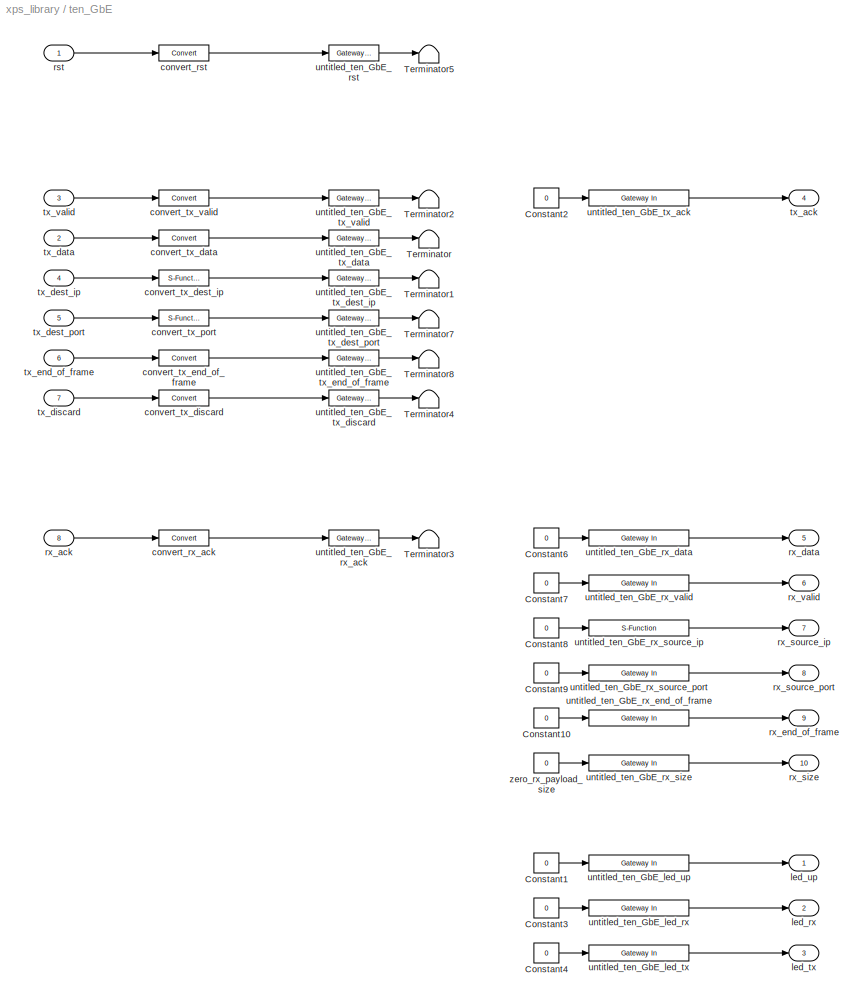
BLOCK [SubSystem] ten_GbE
  MaskCallbackString = ||myname=gcb;\nif strcmp(get_param(myname, 'show_param'), 'on')\n    set_param(myname, 'MaskVisibilities', {'on','on','on','on', 'on'});\nelse\n    set_param(myname, 'MaskVisibilities', {'on','on','on','off','off'});\nend||
  MaskDescription = This block sends and receives UDP frames (packets). It accepts a 64 bit wide data stream with user-determined frame breaks. The data stream is wrapped in a UDP frame for transmission. Incoming UDP packets are unwrapped and the data presented as a 64 bit wide stream.
  MaskEnableString = on,on,on,on,on
  MaskHelp = eval('xlWeb([getenv(''MLIB_ROOT''), ''<path>''])')
  MaskIconFrame = on
  MaskIconOpaque = on
  MaskIconRotate = none
  MaskIconUnits = autoscale
  MaskInitialization = tengbe_mask;
  MaskPromptString = Port|Use light-weight MAC: Warning --> it DOES NOT check any CRC on receive|---------------------- Show Implementation Parameters -----------------------------------------------------------------------------------|Pre-emphasis|Differential swing
  MaskSelfModifiable = on
  MaskStyleString = popup(iBOB:0|iBOB:1|BEE2_ctrl:0|BEE2_ctrl:1|BEE2_usr:0|BEE2_usr:1|BEE2_usr:2|BEE2_usr:3|CORR:0),checkbox,checkbox,popup(0|1|2|3),popup(400|500|600|700|800)
  MaskTabNameString = ,,,,
  MaskToolTipString = on,on,on,on,on
  MaskTunableValueString = off,off,off,off,off
  MaskType = ten_GbE
  MaskValueString = BEE2_ctrl:0|off|off|3|800
  MaskVarAliasString = ,,,,
  MaskVariables = port=@1;mac_lite=@2;show_param=&3;pre_emph=@4;swing=@5;
  MaskVisibilityString = on,on,on,off,off
  MinAlgLoopOccurrences = off
  Ports = [8, 10]
  RTWSystemCode = Auto
  Tag = xps:tengbe
  TreatAsAtomicUnit = off
BLOCK [Constant] ten_GbE/Constant1
  Value = 0
BLOCK [Constant] ten_GbE/Constant10
  Value = 0
BLOCK [Constant] ten_GbE/Constant2
  Value = 0
BLOCK [Constant] ten_GbE/Constant3
  Value = 0
BLOCK [Constant] ten_GbE/Constant4
  Value = 0
BLOCK [Constant] ten_GbE/Constant6
  Value = 0
BLOCK [Constant] ten_GbE/Constant7
  Value = 0
BLOCK [Constant] ten_GbE/Constant8
  Value = 0
BLOCK [Constant] ten_GbE/Constant9
  Value = 0
BLOCK [Terminator] ten_GbE/Terminator
BLOCK [Terminator] ten_GbE/Terminator1
BLOCK [Terminator] ten_GbE/Terminator2
BLOCK [Terminator] ten_GbE/Terminator3
BLOCK [Terminator] ten_GbE/Terminator4
BLOCK [Terminator] ten_GbE/Terminator5
BLOCK [Terminator] ten_GbE/Terminator7
BLOCK [Terminator] ten_GbE/Terminator8
BLOCK [Reference] ten_GbE/convert_rst  REF=xbsIndex_r3/Convert
  Ports = [1, 1]
  SourceBlock = xbsIndex_r3/Convert
  SourceType = Xilinx Converter Block
  arith_type = Boolean
  bin_pt = 0
  dbl_ovrd = off
  explicit_period = off
  inserted_by_tool = off
  latency = 0
  n_bits = 64
  overflow = Wrap
  period = 1
  pipeline = off
  quantization = Truncate
  show_param = off
  xl_area = [0, 0, 0, 0, 0, 0, 0]
  xl_use_area = off
BLOCK [Reference] ten_GbE/convert_rx_ack  REF=xbsIndex_r3/Convert
  Ports = [1, 1]
  SourceBlock = xbsIndex_r3/Convert
  SourceType = Xilinx Converter Block
  arith_type = Boolean
  bin_pt = 0
  dbl_ovrd = off
  explicit_period = off
  inserted_by_tool = off
  latency = 0
  n_bits = 64
  overflow = Wrap
  period = 1
  pipeline = off
  quantization = Truncate
  show_param = off
  xl_area = [0, 0, 0, 0, 0, 0, 0]
  xl_use_area = off
BLOCK [Reference] ten_GbE/convert_tx_data  REF=xbsIndex_r3/Convert
  Ports = [1, 1]
  SourceBlock = xbsIndex_r3/Convert
  SourceType = Xilinx Converter Block
  arith_type = Unsigned
  bin_pt = 0
  dbl_ovrd = off
  explicit_period = off
  inserted_by_tool = off
  latency = 0
  n_bits = 64
  overflow = Wrap
  period = 1
  pipeline = off
  quantization = Truncate
  show_param = off
  xl_area = [0, 0, 0, 0, 0, 0, 0]
  xl_use_area = off
BLOCK [S-Function] ten_GbE/convert_tx_dest_ip
  AncestorBlock = xbsIndex_r3/Convert
  FunctionName = xlconvert
  MaskCallbackString = xlconvertCallback||||||xlMagicCallback|||xlShowIPCallback||||
  MaskEnableString = on,on,on,on,on,on,on,on,on,on,on,on,on,on
  MaskHelp = eval('xlWeb(xlhtmldoclink(''Convert''))');
  MaskIconFrame = off
  MaskIconOpaque = off
  MaskIconRotate = none
  MaskIconUnits = autoscale
  MaskTabNameString = ,,,,,,,,,,,,,
  MaskToolTipString = on,on,on,on,on,on,on,on,on,on,on,on,on,on
  MaskTunableValueString = off,off,off,off,off,off,off,off,off,off,off,off,on,on
  MaskType = Xilinx Converter Block
  MaskValueString = Unsigned|32|0|Truncate|Wrap|0|off|1|off|off|off|off|[0, 0, 0, 0, 0, 0, 0]|off
  MaskVarAliasString = ,,,,,,,,,,,,,
  MaskVisibilityString = on,on,on,on,on,on,on,off,on,on,off,off,off,off
  Parameters = sfcn_mwsv__
  Ports = [1, 1]
BLOCK [Reference] ten_GbE/convert_tx_discard  REF=xbsIndex_r3/Convert
  Ports = [1, 1]
  SourceBlock = xbsIndex_r3/Convert
  SourceType = Xilinx Converter Block
  arith_type = Boolean
  bin_pt = 0
  dbl_ovrd = off
  explicit_period = off
  inserted_by_tool = off
  latency = 0
  n_bits = 1
  overflow = Wrap
  period = 1
  pipeline = off
  quantization = Truncate
  show_param = off
  xl_area = [0, 0, 0, 0, 0, 0, 0]
  xl_use_area = off
BLOCK [Reference] ten_GbE/convert_tx_end_of_frame  REF=xbsIndex_r3/Convert
  Ports = [1, 1]
  SourceBlock = xbsIndex_r3/Convert
  SourceType = Xilinx Converter Block
  arith_type = Boolean
  bin_pt = 0
  dbl_ovrd = off
  explicit_period = off
  inserted_by_tool = off
  latency = 0
  n_bits = 1
  overflow = Wrap
  period = 1
  pipeline = off
  quantization = Truncate
  show_param = off
  xl_area = [0, 0, 0, 0, 0, 0, 0]
  xl_use_area = off
BLOCK [S-Function] ten_GbE/convert_tx_port
  AncestorBlock = xbsIndex_r3/Convert
  FunctionName = xlconvert
  MaskCallbackString = xlconvertCallback||||||xlMagicCallback|||xlShowIPCallback||||
  MaskEnableString = on,on,on,on,on,on,on,on,on,on,on,on,on,on
  MaskHelp = eval('xlWeb(xlhtmldoclink(''Convert''))');
  MaskIconFrame = off
  MaskIconOpaque = off
  MaskIconRotate = none
  MaskIconUnits = autoscale
  MaskTabNameString = ,,,,,,,,,,,,,
  MaskToolTipString = on,on,on,on,on,on,on,on,on,on,on,on,on,on
  MaskTunableValueString = off,off,off,off,off,off,off,off,off,off,off,off,on,on
  MaskType = Xilinx Converter Block
  MaskValueString = Unsigned|16|0|Truncate|Wrap|0|off|1|off|off|off|off|[0, 0, 0, 0, 0, 0, 0]|off
  MaskVarAliasString = ,,,,,,,,,,,,,
  MaskVisibilityString = on,on,on,on,on,on,on,off,on,on,off,off,off,off
  Parameters = sfcn_mwsv__
  Ports = [1, 1]
BLOCK [Reference] ten_GbE/convert_tx_valid  REF=xbsIndex_r3/Convert
  Ports = [1, 1]
  SourceBlock = xbsIndex_r3/Convert
  SourceType = Xilinx Converter Block
  arith_type = Boolean
  bin_pt = 0
  dbl_ovrd = off
  explicit_period = off
  inserted_by_tool = off
  latency = 0
  n_bits = 1
  overflow = Wrap
  period = 1
  pipeline = off
  quantization = Truncate
  show_param = off
  xl_area = [0, 0, 0, 0, 0, 0, 0]
  xl_use_area = off
BLOCK [Outport] ten_GbE/led_rx
  BusOutputAsStruct = off
  IconDisplay = Port number
  Port = 2
BLOCK [Outport] ten_GbE/led_tx
  BusOutputAsStruct = off
  IconDisplay = Port number
  Port = 3
BLOCK [Outport] ten_GbE/led_up
  BusOutputAsStruct = off
  IconDisplay = Port number
BLOCK [Inport] ten_GbE/rst
  IconDisplay = Port number
  LatchInput = off
  Port = 1
BLOCK [Inport] ten_GbE/rx_ack
  IconDisplay = Port number
  LatchInput = off
  Port = 8
BLOCK [Outport] ten_GbE/rx_data
  BusOutputAsStruct = off
  IconDisplay = Port number
  Port = 5
BLOCK [Outport] ten_GbE/rx_end_of_frame
  BusOutputAsStruct = off
  IconDisplay = Port number
  Port = 9
BLOCK [Outport] ten_GbE/rx_size
  BusOutputAsStruct = off
  IconDisplay = Port number
  Port = 10
BLOCK [Outport] ten_GbE/rx_source_ip
  BusOutputAsStruct = off
  IconDisplay = Port number
  Port = 7
BLOCK [Outport] ten_GbE/rx_source_port
  BusOutputAsStruct = off
  IconDisplay = Port number
  Port = 8
BLOCK [Outport] ten_GbE/rx_valid
  BusOutputAsStruct = off
  IconDisplay = Port number
  Port = 6
BLOCK [Outport] ten_GbE/tx_ack
  BusOutputAsStruct = off
  IconDisplay = Port number
  Port = 4
BLOCK [Inport] ten_GbE/tx_data
  IconDisplay = Port number
  LatchInput = off
  Port = 2
BLOCK [Inport] ten_GbE/tx_dest_ip
  IconDisplay = Port number
  LatchInput = off
  Port = 4
BLOCK [Inport] ten_GbE/tx_dest_port
  IconDisplay = Port number
  LatchInput = off
  Port = 5
BLOCK [Inport] ten_GbE/tx_discard
  IconDisplay = Port number
  LatchInput = off
  Port = 7
BLOCK [Inport] ten_GbE/tx_end_of_frame
  IconDisplay = Port number
  LatchInput = off
  Port = 6
BLOCK [Inport] ten_GbE/tx_valid
  IconDisplay = Port number
  LatchInput = off
  Port = 3
BLOCK [Reference] ten_GbE/untitled_ten_GbE_led_rx  REF=xbsIndex_r3/Gateway In
  LOCs = {}
  Ports = [1, 1]
  SourceBlock = xbsIndex_r3/Gateway In
  SourceType = Xilinx Gateway In
  arith_type = Boolean
  bin_pt = 0
  dbl_ovrd = off
  locs_specified = off
  n_bits = 1
  needs_fixed_name = off
  overflow = Wrap
  period = 1
  quantization = Truncate
  show_param = off
  timing_constraint = None
  xl_area = [0, 0, 0, 0, 0, 0, 0]
  xl_use_area = off
BLOCK [Reference] ten_GbE/untitled_ten_GbE_led_tx  REF=xbsIndex_r3/Gateway In
  LOCs = {}
  Ports = [1, 1]
  SourceBlock = xbsIndex_r3/Gateway In
  SourceType = Xilinx Gateway In
  arith_type = Boolean
  bin_pt = 0
  dbl_ovrd = off
  locs_specified = off
  n_bits = 1
  needs_fixed_name = off
  overflow = Wrap
  period = 1
  quantization = Truncate
  show_param = off
  timing_constraint = None
  xl_area = [0, 0, 0, 0, 0, 0, 0]
  xl_use_area = off
BLOCK [Reference] ten_GbE/untitled_ten_GbE_led_up  REF=xbsIndex_r3/Gateway In
  LOCs = {}
  Ports = [1, 1]
  SourceBlock = xbsIndex_r3/Gateway In
  SourceType = Xilinx Gateway In
  arith_type = Boolean
  bin_pt = 0
  dbl_ovrd = off
  locs_specified = off
  n_bits = 1
  needs_fixed_name = off
  overflow = Wrap
  period = 1
  quantization = Truncate
  show_param = off
  timing_constraint = None
  xl_area = [0, 0, 0, 0, 0, 0, 0]
  xl_use_area = off
BLOCK [Reference] ten_GbE/untitled_ten_GbE_rst  REF=xbsIndex_r3/Gateway Out
  LOCs = {}
  Ports = [1, 1]
  SourceBlock = xbsIndex_r3/Gateway Out
  SourceType = Xilinx Gateway Out
  arith_type = Boolean
  bin_pt = 6
  hdl_port = on
  locs_specified = off
  nbits = 8
  needs_fixed_name = off
  output_type = Double
  overflow = Wrap
  quantization = Truncate
  show_param = off
  timing_constraint = None
  xl_area = [0, 0, 0, 0, 0, 0, 0]
  xl_use_area = off
BLOCK [Reference] ten_GbE/untitled_ten_GbE_rx_ack  REF=xbsIndex_r3/Gateway Out
  LOCs = {}
  Ports = [1, 1]
  SourceBlock = xbsIndex_r3/Gateway Out
  SourceType = Xilinx Gateway Out
  arith_type = Boolean
  bin_pt = 6
  hdl_port = on
  locs_specified = off
  nbits = 8
  needs_fixed_name = off
  output_type = Double
  overflow = Wrap
  quantization = Truncate
  show_param = off
  timing_constraint = None
  xl_area = [0, 0, 0, 0, 0, 0, 0]
  xl_use_area = off
BLOCK [Reference] ten_GbE/untitled_ten_GbE_rx_data  REF=xbsIndex_r3/Gateway In
  LOCs = {}
  Ports = [1, 1]
  SourceBlock = xbsIndex_r3/Gateway In
  SourceType = Xilinx Gateway In
  arith_type = Unsigned
  bin_pt = 0
  dbl_ovrd = off
  locs_specified = off
  n_bits = 64
  needs_fixed_name = off
  overflow = Wrap
  period = 1
  quantization = Truncate
  show_param = off
  timing_constraint = None
  xl_area = [0, 0, 0, 0, 0, 0, 0]
  xl_use_area = off
BLOCK [Reference] ten_GbE/untitled_ten_GbE_rx_end_of_frame  REF=xbsIndex_r3/Gateway In
  LOCs = {}
  Ports = [1, 1]
  SourceBlock = xbsIndex_r3/Gateway In
  SourceType = Xilinx Gateway In
  arith_type = Boolean
  bin_pt = 0
  dbl_ovrd = off
  locs_specified = off
  n_bits = 1
  needs_fixed_name = off
  overflow = Wrap
  period = 1
  quantization = Truncate
  show_param = off
  timing_constraint = None
  xl_area = [0, 0, 0, 0, 0, 0, 0]
  xl_use_area = off
BLOCK [Reference] ten_GbE/untitled_ten_GbE_rx_size  REF=xbsIndex_r3/Gateway In
  LOCs = {}
  Ports = [1, 1]
  SourceBlock = xbsIndex_r3/Gateway In
  SourceType = Xilinx Gateway In
  arith_type = Unsigned
  bin_pt = 0
  dbl_ovrd = off
  locs_specified = off
  n_bits = 16
  needs_fixed_name = off
  overflow = Wrap
  period = 1
  quantization = Truncate
  show_param = off
  timing_constraint = None
  xl_area = [0, 0, 0, 0, 0, 0, 0]
  xl_use_area = off
BLOCK [S-Function] ten_GbE/untitled_ten_GbE_rx_source_ip
  AncestorBlock = xbsIndex_r3/Gateway In
  FunctionName = xlgatewayin
  MaskCallbackString = xlgatewayinCallback|||||||xlgatewayinCallback||||xlShowIPCallback||
  MaskDescription = Gateway in block.  Converts inputs of type Simulink integer, double and fixed point to  Xilinx fixed point type.\n\nHardware notes:  In hardware these blocks become top level input ports.
  MaskDisplay = patch([0 iWidth iWidth 0],[0 0 iHeight iHeight] , bg);\npatch(logoX,logoY , fg);\nport_label('input',1,'dbl');\nport_label('output',1,'fpt');\n\n;plot([0 0 iWidth iWidth 0], [0 iHeight iHeight 0 0]);\n
  MaskEnableString = on,on,on,on,on,on,on,on,on,off,on,on,on,on
  MaskHelp = eval('xlWeb(xlhtmldoclink(''Gateway In''))');
  MaskIconFrame = off
  MaskIconOpaque = on
  MaskIconRotate = none
  MaskIconUnits = autoscale
  MaskInitialization = [designRoot, family, part, speed, package, simulinkPeriod, sysclkPeriod, dbl_ovrd, trimVbit] = xlSysgenSettings(gcb,1,0);\ntrimVbit = 1;\n[bg,fg] = xlcmap('IO',dbl_ovrd);\niPos = get_param(gcb,'Position');\niWidth=iPos(3)-iPos(1); iHeight=iPos(4)-iPos(2);\niCx=iWidth/2;\niCy=iHeight/2;\n[logoX, logoY] = xlogo(iPos);\n\n
  MaskPromptString = Output Data Type|Number of Bits|Binary Point|Quantization|Overflow|Sample Period|IOB Timing Constraint|Specify IOB Location Constraints|IOB Pad Locations (specify as cell array {'MSB', ..., 'LSB'})|Do Not Prepend Hierarchy to Port Name|Override with Double|---------------------- Show Implementation Parameters -----------------------------------------------------------------------------------|FPGA ...<+86ch>
  MaskStyleString = popup(Boolean|Unsigned|Signed  (2's comp)),edit,edit,popup(Truncate|Round  (unbiased: +/- Inf)),popup(Wrap|Saturate|Flag as Error),edit,popup(None|Data Rate|Data Rate;  Set 'FAST' Attribute),checkbox,edit,checkbox,checkbox,checkbox,edit,checkbox
  MaskTabNameString = ,,,,,,,,,,,,,
  MaskToolTipString = on,on,on,on,on,on,on,on,on,on,on,on,on,on
  MaskTunableValueString = off,off,off,off,off,off,off,off,off,off,off,off,on,on
  MaskType = Xilinx Gateway In
  MaskValueString = Unsigned|32|0|Truncate|Wrap|1|None|off|{}|off|off|off|[0, 0, 0, 0, 0, 0, 0]|off
  MaskVarAliasString = ,,,,,,,,,,,,,
  MaskVariables = arith_type=@1;n_bits=@2;bin_pt=@3;quantization=@4;overflow=@5;period=@6;timing_constraint=@7;locs_specified=@8;LOCs=@9;needs_fixed_name=@10;dbl_ovrd=@11;show_param=@12;xl_area=@13;xl_use_area=@14;
  MaskVisibilityString = on,on,on,on,on,on,on,on,off,off,on,on,off,off
  Parameters = arith_type, n_bits, bin_pt, quantization, overflow,  gcb, period, dbl_ovrd, locs_specified, LOCs, timing_constraint, simulinkPeriod, designRoot, 0
  Ports = [1, 1]
BLOCK [Reference] ten_GbE/untitled_ten_GbE_rx_source_port  REF=xbsIndex_r3/Gateway In
  LOCs = {}
  Ports = [1, 1]
  SourceBlock = xbsIndex_r3/Gateway In
  SourceType = Xilinx Gateway In
  arith_type = Unsigned
  bin_pt = 0
  dbl_ovrd = off
  locs_specified = off
  n_bits = 16
  needs_fixed_name = off
  overflow = Wrap
  period = 1
  quantization = Truncate
  show_param = off
  timing_constraint = None
  xl_area = [0, 0, 0, 0, 0, 0, 0]
  xl_use_area = off
BLOCK [Reference] ten_GbE/untitled_ten_GbE_rx_valid  REF=xbsIndex_r3/Gateway In
  LOCs = {}
  Ports = [1, 1]
  SourceBlock = xbsIndex_r3/Gateway In
  SourceType = Xilinx Gateway In
  arith_type = Boolean
  bin_pt = 0
  dbl_ovrd = off
  locs_specified = off
  n_bits = 1
  needs_fixed_name = off
  overflow = Wrap
  period = 1
  quantization = Truncate
  show_param = off
  timing_constraint = None
  xl_area = [0, 0, 0, 0, 0, 0, 0]
  xl_use_area = off
BLOCK [Reference] ten_GbE/untitled_ten_GbE_tx_ack  REF=xbsIndex_r3/Gateway In
  LOCs = {}
  Ports = [1, 1]
  SourceBlock = xbsIndex_r3/Gateway In
  SourceType = Xilinx Gateway In
  arith_type = Boolean
  bin_pt = 0
  dbl_ovrd = off
  locs_specified = off
  n_bits = 1
  needs_fixed_name = off
  overflow = Wrap
  period = 1
  quantization = Truncate
  show_param = off
  timing_constraint = None
  xl_area = [0, 0, 0, 0, 0, 0, 0]
  xl_use_area = off
BLOCK [Reference] ten_GbE/untitled_ten_GbE_tx_data  REF=xbsIndex_r3/Gateway Out
  LOCs = {}
  Ports = [1, 1]
  SourceBlock = xbsIndex_r3/Gateway Out
  SourceType = Xilinx Gateway Out
  arith_type = Boolean
  bin_pt = 6
  hdl_port = on
  locs_specified = off
  nbits = 8
  needs_fixed_name = off
  output_type = Double
  overflow = Wrap
  quantization = Truncate
  show_param = off
  timing_constraint = None
  xl_area = [0, 0, 0, 0, 0, 0, 0]
  xl_use_area = off
BLOCK [Reference] ten_GbE/untitled_ten_GbE_tx_dest_ip  REF=xbsIndex_r3/Gateway Out
  LOCs = {}
  Ports = [1, 1]
  SourceBlock = xbsIndex_r3/Gateway Out
  SourceType = Xilinx Gateway Out
  arith_type = Boolean
  bin_pt = 6
  hdl_port = on
  locs_specified = off
  nbits = 8
  needs_fixed_name = off
  output_type = Double
  overflow = Wrap
  quantization = Truncate
  show_param = off
  timing_constraint = None
  xl_area = [0, 0, 0, 0, 0, 0, 0]
  xl_use_area = off
BLOCK [Reference] ten_GbE/untitled_ten_GbE_tx_dest_port  REF=xbsIndex_r3/Gateway Out
  LOCs = {}
  Ports = [1, 1]
  SourceBlock = xbsIndex_r3/Gateway Out
  SourceType = Xilinx Gateway Out
  arith_type = Boolean
  bin_pt = 6
  hdl_port = on
  locs_specified = off
  nbits = 8
  needs_fixed_name = off
  output_type = Double
  overflow = Wrap
  quantization = Truncate
  show_param = off
  timing_constraint = None
  xl_area = [0, 0, 0, 0, 0, 0, 0]
  xl_use_area = off
BLOCK [Reference] ten_GbE/untitled_ten_GbE_tx_discard  REF=xbsIndex_r3/Gateway Out
  LOCs = {}
  Ports = [1, 1]
  SourceBlock = xbsIndex_r3/Gateway Out
  SourceType = Xilinx Gateway Out
  arith_type = Boolean
  bin_pt = 6
  hdl_port = on
  locs_specified = off
  nbits = 8
  needs_fixed_name = off
  output_type = Double
  overflow = Wrap
  quantization = Truncate
  show_param = off
  timing_constraint = None
  xl_area = [0, 0, 0, 0, 0, 0, 0]
  xl_use_area = off
BLOCK [Reference] ten_GbE/untitled_ten_GbE_tx_end_of_frame  REF=xbsIndex_r3/Gateway Out
  LOCs = {}
  Ports = [1, 1]
  SourceBlock = xbsIndex_r3/Gateway Out
  SourceType = Xilinx Gateway Out
  arith_type = Boolean
  bin_pt = 6
  hdl_port = on
  locs_specified = off
  nbits = 8
  needs_fixed_name = off
  output_type = Double
  overflow = Wrap
  quantization = Truncate
  show_param = off
  timing_constraint = None
  xl_area = [0, 0, 0, 0, 0, 0, 0]
  xl_use_area = off
BLOCK [Reference] ten_GbE/untitled_ten_GbE_tx_valid  REF=xbsIndex_r3/Gateway Out
  LOCs = {}
  Ports = [1, 1]
  SourceBlock = xbsIndex_r3/Gateway Out
  SourceType = Xilinx Gateway Out
  arith_type = Boolean
  bin_pt = 6
  hdl_port = on
  locs_specified = off
  nbits = 8
  needs_fixed_name = off
  output_type = Double
  overflow = Wrap
  quantization = Truncate
  show_param = off
  timing_constraint = None
  xl_area = [0, 0, 0, 0, 0, 0, 0]
  xl_use_area = off
BLOCK [Constant] ten_GbE/zero_rx_payload_size
  Value = 0
BLOCK [SubSystem] vsi
  MaskCallbackString = |||
  MaskDescription = Interface to MDR-80 connector on IBOB as configured for VLBI Standard Interface.
  MaskEnableString = on,on,on,on
  MaskIconFrame = on
  MaskIconOpaque = on
  MaskIconRotate = none
  MaskIconUnits = autoscale
  MaskInitialization = vsi_mask;
  MaskPromptString = Connector|Data Type|Data binary point (bitwidth is 32)|Sample period
  MaskSelfModifiable = on
  MaskStyleString = popup(MDR|ZDOK 1),popup(Boolean|Unsigned|Signed  (2's comp)),edit,edit
  MaskTabNameString = ,,,
  MaskToolTipString = on,on,on,on
  MaskTunableValueString = on,on,on,on
  MaskType = vsi
  MaskValueString = MDR|Unsigned|0|1
  MaskVarAliasString = ,,,
  MaskVariables = connector=@1;arith_type=@2;bin_pt=@3;sample_period=@4;
  MaskVisibilityString = on,on,on,on
  MinAlgLoopOccurrences = off
  Ports = [8, 8]
  RTWSystemCode = Auto
  Tag = xps:vsi
  TreatAsAtomicUnit = off
BLOCK [Inport] vsi/bs
  IconDisplay = Port number
  LatchInput = off
  Port = 1
BLOCK [Inport] vsi/clock
  IconDisplay = Port number
  LatchInput = off
  Port = 2
BLOCK [Reference] vsi/convert_bs  REF=xbsIndex_r3/Convert
  Ports = [1, 1]
  SourceBlock = xbsIndex_r3/Convert
  SourceType = Xilinx Converter Block
  arith_type = Unsigned
  bin_pt = 0
  dbl_ovrd = off
  explicit_period = off
  inserted_by_tool = off
  latency = 0
  n_bits = 32
  overflow = Wrap
  period = 1
  pipeline = off
  quantization = Truncate
  show_param = off
  xl_area = [0, 0, 0, 0, 0, 0, 0]
  xl_use_area = off
BLOCK [Reference] vsi/convert_clock  REF=xbsIndex_r3/Convert
  Ports = [1, 1]
  SourceBlock = xbsIndex_r3/Convert
  SourceType = Xilinx Converter Block
  arith_type = Boolean
  bin_pt = 7
  dbl_ovrd = off
  explicit_period = off
  inserted_by_tool = off
  latency = 0
  n_bits = 8
  overflow = Wrap
  period = 1
  pipeline = off
  quantization = Truncate
  show_param = off
  xl_area = [0, 0, 0, 0, 0, 0, 0]
  xl_use_area = off
BLOCK [Reference] vsi/convert_onepps  REF=xbsIndex_r3/Convert
  Ports = [1, 1]
  SourceBlock = xbsIndex_r3/Convert
  SourceType = Xilinx Converter Block
  arith_type = Boolean
  bin_pt = 7
  dbl_ovrd = off
  explicit_period = off
  inserted_by_tool = off
  latency = 0
  n_bits = 8
  overflow = Wrap
  period = 1
  pipeline = off
  quantization = Truncate
  show_param = off
  xl_area = [0, 0, 0, 0, 0, 0, 0]
  xl_use_area = off
BLOCK [Reference] vsi/convert_pctrl  REF=xbsIndex_r3/Convert
  Ports = [1, 1]
  SourceBlock = xbsIndex_r3/Convert
  SourceType = Xilinx Converter Block
  arith_type = Boolean
  bin_pt = 7
  dbl_ovrd = off
  explicit_period = off
  inserted_by_tool = off
  latency = 0
  n_bits = 8
  overflow = Wrap
  period = 1
  pipeline = off
  quantization = Truncate
  show_param = off
  xl_area = [0, 0, 0, 0, 0, 0, 0]
  xl_use_area = off
BLOCK [Reference] vsi/convert_pdata  REF=xbsIndex_r3/Convert
  Ports = [1, 1]
  SourceBlock = xbsIndex_r3/Convert
  SourceType = Xilinx Converter Block
  arith_type = Boolean
  bin_pt = 7
  dbl_ovrd = off
  explicit_period = off
  inserted_by_tool = off
  latency = 0
  n_bits = 8
  overflow = Wrap
  period = 1
  pipeline = off
  quantization = Truncate
  show_param = off
  xl_area = [0, 0, 0, 0, 0, 0, 0]
  xl_use_area = off
BLOCK [Reference] vsi/convert_pspare1  REF=xbsIndex_r3/Convert
  Ports = [1, 1]
  SourceBlock = xbsIndex_r3/Convert
  SourceType = Xilinx Converter Block
  arith_type = Boolean
  bin_pt = 7
  dbl_ovrd = off
  explicit_period = off
  inserted_by_tool = off
  latency = 0
  n_bits = 8
  overflow = Wrap
  period = 1
  pipeline = off
  quantization = Truncate
  show_param = off
  xl_area = [0, 0, 0, 0, 0, 0, 0]
  xl_use_area = off
BLOCK [Reference] vsi/convert_pspare2  REF=xbsIndex_r3/Convert
  Ports = [1, 1]
  SourceBlock = xbsIndex_r3/Convert
  SourceType = Xilinx Converter Block
  arith_type = Boolean
  bin_pt = 7
  dbl_ovrd = off
  explicit_period = off
  inserted_by_tool = off
  latency = 0
  n_bits = 8
  overflow = Wrap
  period = 1
  pipeline = off
  quantization = Truncate
  show_param = off
  xl_area = [0, 0, 0, 0, 0, 0, 0]
  xl_use_area = off
BLOCK [Reference] vsi/convert_pvalid  REF=xbsIndex_r3/Convert
  Ports = [1, 1]
  SourceBlock = xbsIndex_r3/Convert
  SourceType = Xilinx Converter Block
  arith_type = Boolean
  bin_pt = 7
  dbl_ovrd = off
  explicit_period = off
  inserted_by_tool = off
  latency = 0
  n_bits = 8
  overflow = Wrap
  period = 1
  pipeline = off
  quantization = Truncate
  show_param = off
  xl_area = [0, 0, 0, 0, 0, 0, 0]
  xl_use_area = off
BLOCK [Inport] vsi/onepps
  IconDisplay = Port number
  LatchInput = off
  Port = 3
BLOCK [Inport] vsi/pctrl
  IconDisplay = Port number
  LatchInput = off
  Port = 5
BLOCK [Inport] vsi/pdata
  IconDisplay = Port number
  LatchInput = off
  Port = 6
BLOCK [Inport] vsi/pspare1
  IconDisplay = Port number
  LatchInput = off
  Port = 7
BLOCK [Inport] vsi/pspare2
  IconDisplay = Port number
  LatchInput = off
  Port = 8
BLOCK [Inport] vsi/pvalid
  IconDisplay = Port number
  LatchInput = off
  Port = 4
BLOCK [Outport] vsi/sim_bs
  BusOutputAsStruct = off
  IconDisplay = Port number
BLOCK [Outport] vsi/sim_clock
  BusOutputAsStruct = off
  IconDisplay = Port number
  Port = 2
BLOCK [Outport] vsi/sim_onepps
  BusOutputAsStruct = off
  IconDisplay = Port number
  Port = 3
BLOCK [Outport] vsi/sim_pctrl
  BusOutputAsStruct = off
  IconDisplay = Port number
  Port = 5
BLOCK [Outport] vsi/sim_pdata
  BusOutputAsStruct = off
  IconDisplay = Port number
  Port = 6
BLOCK [Outport] vsi/sim_pspare1
  BusOutputAsStruct = off
  IconDisplay = Port number
  Port = 7
BLOCK [Outport] vsi/sim_pspare2
  BusOutputAsStruct = off
  IconDisplay = Port number
  Port = 8
BLOCK [Outport] vsi/sim_pvalid
  BusOutputAsStruct = off
  IconDisplay = Port number
  Port = 4
BLOCK [Reference] vsi/xps_library_vsi_bs  REF=xbsIndex_r3/Gateway Out
  LOCs = {}
  Ports = [1, 1]
  SourceBlock = xbsIndex_r3/Gateway Out
  SourceType = Xilinx Gateway Out
  arith_type = Boolean
  bin_pt = 6
  hdl_port = on
  locs_specified = off
  nbits = 8
  needs_fixed_name = off
  output_type = Double
  overflow = Wrap
  quantization = Truncate
  show_param = off
  timing_constraint = None
  xl_area = [0, 0, 0, 0, 0, 0, 0]
  xl_use_area = off
BLOCK [Reference] vsi/xps_library_vsi_clock  REF=xbsIndex_r3/Gateway Out
  LOCs = {}
  Ports = [1, 1]
  SourceBlock = xbsIndex_r3/Gateway Out
  SourceType = Xilinx Gateway Out
  arith_type = Boolean
  bin_pt = 6
  hdl_port = on
  locs_specified = off
  nbits = 8
  needs_fixed_name = off
  output_type = Double
  overflow = Wrap
  quantization = Truncate
  show_param = off
  timing_constraint = None
  xl_area = [0, 0, 0, 0, 0, 0, 0]
  xl_use_area = off
BLOCK [Reference] vsi/xps_library_vsi_onepps  REF=xbsIndex_r3/Gateway Out
  LOCs = {}
  Ports = [1, 1]
  SourceBlock = xbsIndex_r3/Gateway Out
  SourceType = Xilinx Gateway Out
  arith_type = Boolean
  bin_pt = 6
  hdl_port = on
  locs_specified = off
  nbits = 8
  needs_fixed_name = off
  output_type = Double
  overflow = Wrap
  quantization = Truncate
  show_param = off
  timing_constraint = None
  xl_area = [0, 0, 0, 0, 0, 0, 0]
  xl_use_area = off
BLOCK [Reference] vsi/xps_library_vsi_pctrl  REF=xbsIndex_r3/Gateway Out
  LOCs = {}
  Ports = [1, 1]
  SourceBlock = xbsIndex_r3/Gateway Out
  SourceType = Xilinx Gateway Out
  arith_type = Boolean
  bin_pt = 6
  hdl_port = on
  locs_specified = off
  nbits = 8
  needs_fixed_name = off
  output_type = Double
  overflow = Wrap
  quantization = Truncate
  show_param = off
  timing_constraint = None
  xl_area = [0, 0, 0, 0, 0, 0, 0]
  xl_use_area = off
BLOCK [Reference] vsi/xps_library_vsi_pdata  REF=xbsIndex_r3/Gateway Out
  LOCs = {}
  Ports = [1, 1]
  SourceBlock = xbsIndex_r3/Gateway Out
  SourceType = Xilinx Gateway Out
  arith_type = Boolean
  bin_pt = 6
  hdl_port = on
  locs_specified = off
  nbits = 8
  needs_fixed_name = off
  output_type = Double
  overflow = Wrap
  quantization = Truncate
  show_param = off
  timing_constraint = None
  xl_area = [0, 0, 0, 0, 0, 0, 0]
  xl_use_area = off
BLOCK [Reference] vsi/xps_library_vsi_pspare1  REF=xbsIndex_r3/Gateway Out
  LOCs = {}
  Ports = [1, 1]
  SourceBlock = xbsIndex_r3/Gateway Out
  SourceType = Xilinx Gateway Out
  arith_type = Boolean
  bin_pt = 6
  hdl_port = on
  locs_specified = off
  nbits = 8
  needs_fixed_name = off
  output_type = Double
  overflow = Wrap
  quantization = Truncate
  show_param = off
  timing_constraint = None
  xl_area = [0, 0, 0, 0, 0, 0, 0]
  xl_use_area = off
BLOCK [Reference] vsi/xps_library_vsi_pspare2  REF=xbsIndex_r3/Gateway Out
  LOCs = {}
  Ports = [1, 1]
  SourceBlock = xbsIndex_r3/Gateway Out
  SourceType = Xilinx Gateway Out
  arith_type = Boolean
  bin_pt = 6
  hdl_port = on
  locs_specified = off
  nbits = 8
  needs_fixed_name = off
  output_type = Double
  overflow = Wrap
  quantization = Truncate
  show_param = off
  timing_constraint = None
  xl_area = [0, 0, 0, 0, 0, 0, 0]
  xl_use_area = off
BLOCK [Reference] vsi/xps_library_vsi_pvalid  REF=xbsIndex_r3/Gateway Out
  LOCs = {}
  Ports = [1, 1]
  SourceBlock = xbsIndex_r3/Gateway Out
  SourceType = Xilinx Gateway Out
  arith_type = Boolean
  bin_pt = 6
  hdl_port = on
  locs_specified = off
  nbits = 8
  needs_fixed_name = off
  output_type = Double
  overflow = Wrap
  quantization = Truncate
  show_param = off
  timing_constraint = None
  xl_area = [0, 0, 0, 0, 0, 0, 0]
  xl_use_area = off
ANNOTATION (root): %%%%%%%%%%%%%%%%%%%%%%%%%%%%%%%%%%%%%%%%%%%%%%%%%%%%%%%%%%%%%%%%%%%%%%%%%%%%%%%\n% %\n% Center for Astronomy Signal Processing and Electronics Research %\n% http://seti.ssl.berkeley.edu/casper/ %\n% <copyright redacted>\n% %\n% This program is free software; you can redistribute it and/or modify %\n% it under the terms of the GNU General Public License as publish...<+687ch>
LINE Shared BRAM/Convert1:1 -> Shared BRAM/xps_library_Shared_BRAM_we:1
LINE Shared BRAM/Convert2:1 -> Shared BRAM/xps_library_Shared_BRAM_data_in:1
LINE Shared BRAM/Convert:1 -> Shared BRAM/xps_library_Shared_BRAM_addr:1
LINE Shared BRAM/addr:1 -> Shared BRAM/Convert:1
LINE Shared BRAM/data_in:1 -> Shared BRAM/Convert2:1
LINE Shared BRAM/mem/In1:1 -> Shared BRAM/mem/sim_addr:1
LINE Shared BRAM/mem/In2:1 -> Shared BRAM/mem/sim_data_in:1
LINE Shared BRAM/mem/In3:1 -> Shared BRAM/mem/sim_we:1
LINE Shared BRAM/mem/Single Port RAM:1 -> Shared BRAM/mem/sim_data_out:1
LINE Shared BRAM/mem/sim_addr:1 -> Shared BRAM/mem/Single Port RAM:1
LINE Shared BRAM/mem/sim_data_in:1 -> Shared BRAM/mem/Single Port RAM:2
LINE Shared BRAM/mem/sim_data_out:1 -> Shared BRAM/mem/Out1:1
LINE Shared BRAM/mem/sim_we:1 -> Shared BRAM/mem/Single Port RAM:3
LINE Shared BRAM/mem:1 -> Shared BRAM/xps_library_Shared_BRAM_data_out:1
LINE Shared BRAM/we:1 -> Shared BRAM/Convert1:1
LINE Shared BRAM/xps_library_Shared_BRAM_addr:1 -> Shared BRAM/mem:1
LINE Shared BRAM/xps_library_Shared_BRAM_data_in:1 -> Shared BRAM/mem:2
LINE Shared BRAM/xps_library_Shared_BRAM_data_out:1 -> Shared BRAM/data_out:1
LINE Shared BRAM/xps_library_Shared_BRAM_we:1 -> Shared BRAM/mem:3
LINE Shared FIFO/convert_xps_library_Shared_FIFO_user_data_in:1 -> Shared FIFO/xps_library_Shared_FIFO_user_data_in:1
LINE Shared FIFO/convert_xps_library_Shared_FIFO_user_level:1 -> Shared FIFO/xps_library_Shared_FIFO_user_level:1
LINE Shared FIFO/convert_xps_library_Shared_FIFO_user_reset:1 -> Shared FIFO/xps_library_Shared_FIFO_user_reset:1
LINE Shared FIFO/convert_xps_library_Shared_FIFO_user_we:1 -> Shared FIFO/xps_library_Shared_FIFO_user_we:1
LINE Shared FIFO/data_in:1 -> Shared FIFO/convert_xps_library_Shared_FIFO_user_data_in:1
LINE Shared FIFO/level:1 -> Shared FIFO/convert_xps_library_Shared_FIFO_user_level:1
LINE Shared FIFO/reset:1 -> Shared FIFO/convert_xps_library_Shared_FIFO_user_reset:1
LINE Shared FIFO/we:1 -> Shared FIFO/convert_xps_library_Shared_FIFO_user_we:1
LINE Shared FIFO/xps_library_Shared_FIFO_user_full:1 -> Shared FIFO/full:1
LINE Shared FIFO/xps_library_Shared_FIFO_user_level_reached:1 -> Shared FIFO/level_reached:1
LINE XAUI/Constant1:1 -> XAUI/untitled_XAUI_rx_almost_full:1
LINE XAUI/Constant2:1 -> XAUI/untitled_XAUI_tx_full:1
LINE XAUI/Constant3:1 -> XAUI/untitled_XAUI_rx_linkdown:1
LINE XAUI/Constant4:1 -> XAUI/untitled_XAUI_rx_empty:1
LINE XAUI/Constant5:1 -> XAUI/untitled_XAUI_rx_outofband:1
LINE XAUI/Constant6:1 -> XAUI/untitled_XAUI_rx_data:1
LINE XAUI/Constant7:1 -> XAUI/untitled_XAUI_rx_valid:1
LINE XAUI/convert_rx_get:1 -> XAUI/untitled_XAUI_rx_get:1
LINE XAUI/convert_rx_reset:1 -> XAUI/untitled_XAUI_rx_reset:1
LINE XAUI/convert_tx_data:1 -> XAUI/untitled_XAUI_tx_data:1
LINE XAUI/convert_tx_outofband:1 -> XAUI/untitled_XAUI_tx_outofband:1
LINE XAUI/convert_tx_valid:1 -> XAUI/untitled_XAUI_tx_valid:1
LINE XAUI/rx_get:1 -> XAUI/convert_rx_get:1
LINE XAUI/rx_reset:1 -> XAUI/convert_rx_reset:1
LINE XAUI/tx_data:1 -> XAUI/convert_tx_data:1
LINE XAUI/tx_outofband:1 -> XAUI/convert_tx_outofband:1
LINE XAUI/tx_valid:1 -> XAUI/convert_tx_valid:1
LINE XAUI/untitled_XAUI_rx_almost_full:1 -> XAUI/rx_almost_full:1
LINE XAUI/untitled_XAUI_rx_data:1 -> XAUI/rx_data:1
LINE XAUI/untitled_XAUI_rx_empty:1 -> XAUI/rx_empty:1
LINE XAUI/untitled_XAUI_rx_get:1 -> XAUI/Terminator3:1
LINE XAUI/untitled_XAUI_rx_linkdown:1 -> XAUI/rx_linkdown:1
LINE XAUI/untitled_XAUI_rx_outofband:1 -> XAUI/rx_outofband:1
LINE XAUI/untitled_XAUI_rx_reset:1 -> XAUI/Terminator4:1
LINE XAUI/untitled_XAUI_rx_valid:1 -> XAUI/rx_valid:1
LINE XAUI/untitled_XAUI_tx_data:1 -> XAUI/Terminator:1
LINE XAUI/untitled_XAUI_tx_full:1 -> XAUI/tx_full:1
LINE XAUI/untitled_XAUI_tx_outofband:1 -> XAUI/Terminator1:1
LINE XAUI/untitled_XAUI_tx_valid:1 -> XAUI/Terminator2:1
LINE adc/Compare\nTo Constant10:1 -> adc/Logical\nOperator2:4
LINE adc/Compare\nTo Constant11:1 -> adc/Logical\nOperator2:1
LINE adc/Compare\nTo Constant12:1 -> adc/Logical\nOperator2:3
LINE adc/Compare\nTo Constant13:1 -> adc/Logical\nOperator3:4
LINE adc/Compare\nTo Constant14:1 -> adc/Logical\nOperator3:1
LINE adc/Compare\nTo Constant15:1 -> adc/Logical\nOperator3:3
LINE adc/Compare\nTo Constant1:1 -> adc/Logical\nOperator1:2
LINE adc/Compare\nTo Constant2:1 -> adc/Logical\nOperator:4
LINE adc/Compare\nTo Constant3:1 -> adc/Logical\nOperator:1
LINE adc/Compare\nTo Constant4:1 -> adc/Logical\nOperator:3
LINE adc/Compare\nTo Constant5:1 -> adc/Logical\nOperator1:4
LINE adc/Compare\nTo Constant6:1 -> adc/Logical\nOperator1:1
LINE adc/Compare\nTo Constant7:1 -> adc/Logical\nOperator1:3
LINE adc/Compare\nTo Constant8:1 -> adc/Logical\nOperator2:2
LINE adc/Compare\nTo Constant9:1 -> adc/Logical\nOperator3:2
LINE adc/Compare\nTo Constant:1 -> adc/Logical\nOperator:2
LINE adc/Downsamplei0:1 -> adc/delayi0:1
LINE adc/Downsamplei1:1 -> adc/delayi1:1
LINE adc/Downsamplei2:1 -> adc/delayi2:1
LINE adc/Downsamplei3:1 -> adc/delayi3:1
LINE adc/Downsampleq0:1 -> adc/delayq0:1
LINE adc/Downsampleq1:1 -> adc/delayq1:1
LINE adc/Downsampleq2:1 -> adc/delayq2:1
LINE adc/Downsampleq3:1 -> adc/delayq3:1
LINE adc/Downsamplesync0:1 -> adc/delaysync0:1
LINE adc/Downsamplesync1:1 -> adc/delaysync1:1
LINE adc/Downsamplesync2:1 -> adc/delaysync2:1
LINE adc/Downsamplesync3:1 -> adc/delaysync3:1
LINE adc/Logical\nOperator1:1 -> adc/untitled_adc_user_outofrangei1:1
LINE adc/Logical\nOperator2:1 -> adc/untitled_adc_user_outofrangeq0:1
LINE adc/Logical\nOperator3:1 -> adc/untitled_adc_user_outofrangeq1:1
LINE adc/Logical\nOperator:1 -> adc/untitled_adc_user_outofrangei0:1
NET adc/bias:1 -> adc/Downsamplei0:1, adc/Downsamplei1:1, adc/Downsamplei2:1, adc/Downsamplei3:1, adc/Downsampleq0:1, adc/Downsampleq1:1, adc/Downsampleq2:1, adc/Downsampleq3:1
LINE adc/conv/Concat:1 -> adc/conv/Reinterpret:1
NET adc/conv/In1:1 -> adc/conv/Slice1:1, adc/conv/Slice:1
LINE adc/conv/Inverter:1 -> adc/conv/Concat:1
LINE adc/conv/Reinterpret:1 -> adc/conv/Out1:1
LINE adc/conv/Slice1:1 -> adc/conv/Concat:2
LINE adc/conv/Slice:1 -> adc/conv/Inverter:1
LINE adc/conv1/Concat:1 -> adc/conv1/Reinterpret:1
NET adc/conv1/In1:1 -> adc/conv1/Slice1:1, adc/conv1/Slice:1
LINE adc/conv1/Inverter:1 -> adc/conv1/Concat:1
LINE adc/conv1/Reinterpret:1 -> adc/conv1/Out1:1
LINE adc/conv1/Slice1:1 -> adc/conv1/Concat:2
LINE adc/conv1/Slice:1 -> adc/conv1/Inverter:1
LINE adc/conv1:1 -> adc/o3:1
LINE adc/conv2/Concat:1 -> adc/conv2/Reinterpret:1
NET adc/conv2/In1:1 -> adc/conv2/Slice1:1, adc/conv2/Slice:1
LINE adc/conv2/Inverter:1 -> adc/conv2/Concat:1
LINE adc/conv2/Reinterpret:1 -> adc/conv2/Out1:1
LINE adc/conv2/Slice1:1 -> adc/conv2/Concat:2
LINE adc/conv2/Slice:1 -> adc/conv2/Inverter:1
LINE adc/conv2:1 -> adc/o5:1
LINE adc/conv3/Concat:1 -> adc/conv3/Reinterpret:1
NET adc/conv3/In1:1 -> adc/conv3/Slice1:1, adc/conv3/Slice:1
LINE adc/conv3/Inverter:1 -> adc/conv3/Concat:1
LINE adc/conv3/Reinterpret:1 -> adc/conv3/Out1:1
LINE adc/conv3/Slice1:1 -> adc/conv3/Concat:2
LINE adc/conv3/Slice:1 -> adc/conv3/Inverter:1
LINE adc/conv3:1 -> adc/o7:1
LINE adc/conv4/Concat:1 -> adc/conv4/Reinterpret:1
NET adc/conv4/In1:1 -> adc/conv4/Slice1:1, adc/conv4/Slice:1
LINE adc/conv4/Inverter:1 -> adc/conv4/Concat:1
LINE adc/conv4/Reinterpret:1 -> adc/conv4/Out1:1
LINE adc/conv4/Slice1:1 -> adc/conv4/Concat:2
LINE adc/conv4/Slice:1 -> adc/conv4/Inverter:1
LINE adc/conv4:1 -> adc/o0:1
LINE adc/conv5/Concat:1 -> adc/conv5/Reinterpret:1
NET adc/conv5/In1:1 -> adc/conv5/Slice1:1, adc/conv5/Slice:1
LINE adc/conv5/Inverter:1 -> adc/conv5/Concat:1
LINE adc/conv5/Reinterpret:1 -> adc/conv5/Out1:1
LINE adc/conv5/Slice1:1 -> adc/conv5/Concat:2
LINE adc/conv5/Slice:1 -> adc/conv5/Inverter:1
LINE adc/conv5:1 -> adc/o2:1
LINE adc/conv6/Concat:1 -> adc/conv6/Reinterpret:1
NET adc/conv6/In1:1 -> adc/conv6/Slice1:1, adc/conv6/Slice:1
LINE adc/conv6/Inverter:1 -> adc/conv6/Concat:1
LINE adc/conv6/Reinterpret:1 -> adc/conv6/Out1:1
LINE adc/conv6/Slice1:1 -> adc/conv6/Concat:2
LINE adc/conv6/Slice:1 -> adc/conv6/Inverter:1
LINE adc/conv6:1 -> adc/o4:1
LINE adc/conv7/Concat:1 -> adc/conv7/Reinterpret:1
NET adc/conv7/In1:1 -> adc/conv7/Slice1:1, adc/conv7/Slice:1
LINE adc/conv7/Inverter:1 -> adc/conv7/Concat:1
LINE adc/conv7/Reinterpret:1 -> adc/conv7/Out1:1
LINE adc/conv7/Slice1:1 -> adc/conv7/Concat:2
LINE adc/conv7/Slice:1 -> adc/conv7/Inverter:1
LINE adc/conv7:1 -> adc/o6:1
LINE adc/conv:1 -> adc/o1:1
NET adc/delayi0:1 -> adc/Compare\nTo Constant3:1, adc/Compare\nTo Constant:1, adc/untitled_adc_user_datai0:1
NET adc/delayi1:1 -> adc/Compare\nTo Constant2:1, adc/Compare\nTo Constant4:1, adc/untitled_adc_user_datai1:1
NET adc/delayi2:1 -> adc/Compare\nTo Constant1:1, adc/Compare\nTo Constant6:1, adc/untitled_adc_user_datai2:1
NET adc/delayi3:1 -> adc/Compare\nTo Constant5:1, adc/Compare\nTo Constant7:1, adc/untitled_adc_user_datai3:1
NET adc/delayq0:1 -> adc/Compare\nTo Constant11:1, adc/Compare\nTo Constant8:1, adc/untitled_adc_user_dataq0:1
NET adc/delayq1:1 -> adc/Compare\nTo Constant10:1, adc/Compare\nTo Constant12:1, adc/untitled_adc_user_dataq1:1
NET adc/delayq2:1 -> adc/Compare\nTo Constant14:1, adc/Compare\nTo Constant9:1, adc/untitled_adc_user_dataq2:1
NET adc/delayq3:1 -> adc/Compare\nTo Constant13:1, adc/Compare\nTo Constant15:1, adc/untitled_adc_user_dataq3:1
LINE adc/delaysync0:1 -> adc/untitled_adc_user_sync0:1
LINE adc/delaysync1:1 -> adc/untitled_adc_user_sync1:1
LINE adc/delaysync2:1 -> adc/untitled_adc_user_sync2:1
LINE adc/delaysync3:1 -> adc/untitled_adc_user_sync3:1
LINE adc/gain:1 -> adc/bias:1
LINE adc/sim_data_valid:1 -> adc/untitled_adc_user_data_valid:1
LINE adc/sim_in:1 -> adc/gain:1
NET adc/sim_sync:1 -> adc/Downsamplesync0:1, adc/Downsamplesync1:1, adc/Downsamplesync2:1, adc/Downsamplesync3:1
LINE adc/untitled_adc_user_data_valid:1 -> adc/data_valid:1
LINE adc/untitled_adc_user_datai0:1 -> adc/conv:1
LINE adc/untitled_adc_user_datai1:1 -> adc/conv1:1
LINE adc/untitled_adc_user_datai2:1 -> adc/conv2:1
LINE adc/untitled_adc_user_datai3:1 -> adc/conv3:1
LINE adc/untitled_adc_user_dataq0:1 -> adc/conv4:1
LINE adc/untitled_adc_user_dataq1:1 -> adc/conv5:1
LINE adc/untitled_adc_user_dataq2:1 -> adc/conv6:1
LINE adc/untitled_adc_user_dataq3:1 -> adc/conv7:1
LINE adc/untitled_adc_user_outofrangei0:1 -> adc/outofrange1:1
LINE adc/untitled_adc_user_outofrangei1:1 -> adc/outofrange3:1
LINE adc/untitled_adc_user_outofrangeq0:1 -> adc/outofrange0:1
LINE adc/untitled_adc_user_outofrangeq1:1 -> adc/outofrange2:1
LINE adc/untitled_adc_user_sync0:1 -> adc/sync0:1
LINE adc/untitled_adc_user_sync1:1 -> adc/sync1:1
LINE adc/untitled_adc_user_sync2:1 -> adc/sync2:1
LINE adc/untitled_adc_user_sync3:1 -> adc/sync3:1
LINE corr_adc/sim_din:1 -> corr_adc/xps_library_corr_adc_din:1
LINE corr_adc/xps_library_corr_adc_din:1 -> corr_adc/din:1
LINE corr_dac/convert_data:1 -> corr_dac/xps_library_corr_dac_data:1
LINE corr_dac/convert_sync:1 -> corr_dac/xps_library_corr_dac_sync:1
LINE corr_dac/data:1 -> corr_dac/convert_data:1
LINE corr_dac/sync:1 -> corr_dac/convert_sync:1
LINE corr_dac/xps_library_corr_dac_data:1 -> corr_dac/sim_data:1
LINE corr_dac/xps_library_corr_dac_sync:1 -> corr_dac/sim_sync:1
LINE corr_mxfe/clk:1 -> corr_mxfe/convert_clk:1
LINE corr_mxfe/clk_sel:1 -> corr_mxfe/convert_clk_sel:1
LINE corr_mxfe/convert_clk:1 -> corr_mxfe/xps_library_corr_mxfe_clk:1
LINE corr_mxfe/convert_clk_sel:1 -> corr_mxfe/xps_library_corr_mxfe_clk_sel:1
LINE corr_mxfe/convert_fpga_clk:1 -> corr_mxfe/xps_library_corr_mxfe_fpga_clk:1
LINE corr_mxfe/convert_le:1 -> corr_mxfe/xps_library_corr_mxfe_le:1
LINE corr_mxfe/convert_rst:1 -> corr_mxfe/xps_library_corr_mxfe_rst:1
LINE corr_mxfe/convert_sdio:1 -> corr_mxfe/xps_library_corr_mxfe_sdio:1
LINE corr_mxfe/fpga_clk:1 -> corr_mxfe/convert_fpga_clk:1
LINE corr_mxfe/le:1 -> corr_mxfe/convert_le:1
LINE corr_mxfe/rst:1 -> corr_mxfe/convert_rst:1
LINE corr_mxfe/sdio:1 -> corr_mxfe/convert_sdio:1
LINE corr_mxfe/sim_sdo:1 -> corr_mxfe/xps_library_corr_mxfe_sdo:1
LINE corr_mxfe/xps_library_corr_mxfe_clk:1 -> corr_mxfe/sim_clk:1
LINE corr_mxfe/xps_library_corr_mxfe_clk_sel:1 -> corr_mxfe/sim_clk_sel:1
LINE corr_mxfe/xps_library_corr_mxfe_fpga_clk:1 -> corr_mxfe/sim_fpga_clk:1
LINE corr_mxfe/xps_library_corr_mxfe_le:1 -> corr_mxfe/sim_le:1
LINE corr_mxfe/xps_library_corr_mxfe_rst:1 -> corr_mxfe/sim_rst:1
LINE corr_mxfe/xps_library_corr_mxfe_sdio:1 -> corr_mxfe/sim_sdio:1
LINE corr_mxfe/xps_library_corr_mxfe_sdo:1 -> corr_mxfe/sdo:1
LINE corr_rf/ant_sel:1 -> corr_rf/convert_ant_sel:1
LINE corr_rf/convert_ant_sel:1 -> corr_rf/xps_library_corr_rf_ant_sel:1
LINE corr_rf/convert_lna_gain:1 -> corr_rf/xps_library_corr_rf_lna_gain:1
LINE corr_rf/convert_pll_clk:1 -> corr_rf/xps_library_corr_rf_pll_clk:1
LINE corr_rf/convert_pll_data:1 -> corr_rf/xps_library_corr_rf_pll_data:1
LINE corr_rf/convert_pll_le:1 -> corr_rf/xps_library_corr_rf_pll_le:1
LINE corr_rf/convert_tx_on:1 -> corr_rf/xps_library_corr_rf_tx_on:1
LINE corr_rf/convert_tx_power:1 -> corr_rf/xps_library_corr_rf_tx_power:1
LINE corr_rf/lna_gain:1 -> corr_rf/convert_lna_gain:1
LINE corr_rf/pll_clk:1 -> corr_rf/convert_pll_clk:1
LINE corr_rf/pll_data:1 -> corr_rf/convert_pll_data:1
LINE corr_rf/pll_le:1 -> corr_rf/convert_pll_le:1
LINE corr_rf/tx_on:1 -> corr_rf/convert_tx_on:1
LINE corr_rf/tx_power:1 -> corr_rf/convert_tx_power:1
LINE corr_rf/xps_library_corr_rf_ant_sel:1 -> corr_rf/sim_ant_sel:1
LINE corr_rf/xps_library_corr_rf_lna_gain:1 -> corr_rf/sim_lna_gain:1
LINE corr_rf/xps_library_corr_rf_pll_clk:1 -> corr_rf/sim_pll_clk:1
LINE corr_rf/xps_library_corr_rf_pll_data:1 -> corr_rf/sim_pll_data:1
LINE corr_rf/xps_library_corr_rf_pll_le:1 -> corr_rf/sim_pll_le:1
LINE corr_rf/xps_library_corr_rf_tx_on:1 -> corr_rf/sim_tx_on:1
LINE corr_rf/xps_library_corr_rf_tx_power:1 -> corr_rf/sim_tx_power:1
NET dac/Constant:1 -> dac/Sum1:2, dac/Sum2:2, dac/Sum3:2, dac/Sum:2
LINE dac/Counter\nFree-Running:1 -> dac/Multiport\nSwitch:1
LINE dac/Gain1:1 -> dac/Sum1:1
LINE dac/Gain2:1 -> dac/Sum2:1
LINE dac/Gain3:1 -> dac/Sum3:1
LINE dac/Gain:1 -> dac/Sum:1
LINE dac/Multiport\nSwitch:1 -> dac/sim_out:1
LINE dac/Sum1:1 -> dac/Multiport\nSwitch:3
LINE dac/Sum2:1 -> dac/Multiport\nSwitch:4
LINE dac/Sum3:1 -> dac/Multiport\nSwitch:5
LINE dac/Sum:1 -> dac/Multiport\nSwitch:2
LINE dac/conv_a/Concat:1 -> dac/conv_a/out:1
LINE dac/conv_a/Inverter:1 -> dac/conv_a/Concat:1
NET dac/conv_a/Reinterpret:1 -> dac/conv_a/Slice1:1, dac/conv_a/Slice:1
LINE dac/conv_a/Slice1:1 -> dac/conv_a/Concat:2
LINE dac/conv_a/Slice:1 -> dac/conv_a/Inverter:1
LINE dac/conv_a/in:1 -> dac/conv_a/Reinterpret:1
LINE dac/conv_a:1 -> dac/convert_user_data_a:1
LINE dac/conv_b/Concat:1 -> dac/conv_b/out:1
LINE dac/conv_b/Inverter:1 -> dac/conv_b/Concat:1
NET dac/conv_b/Reinterpret:1 -> dac/conv_b/Slice1:1, dac/conv_b/Slice:1
LINE dac/conv_b/Slice1:1 -> dac/conv_b/Concat:2
LINE dac/conv_b/Slice:1 -> dac/conv_b/Inverter:1
LINE dac/conv_b/in:1 -> dac/conv_b/Reinterpret:1
LINE dac/conv_b:1 -> dac/convert_user_data_b:1
LINE dac/conv_c/Concat:1 -> dac/conv_c/out:1
LINE dac/conv_c/Inverter:1 -> dac/conv_c/Concat:1
NET dac/conv_c/Reinterpret:1 -> dac/conv_c/Slice1:1, dac/conv_c/Slice:1
LINE dac/conv_c/Slice1:1 -> dac/conv_c/Concat:2
LINE dac/conv_c/Slice:1 -> dac/conv_c/Inverter:1
LINE dac/conv_c/in:1 -> dac/conv_c/Reinterpret:1
LINE dac/conv_c:1 -> dac/convert_user_data_c:1
LINE dac/conv_d/Concat:1 -> dac/conv_d/out:1
LINE dac/conv_d/Inverter:1 -> dac/conv_d/Concat:1
NET dac/conv_d/Reinterpret:1 -> dac/conv_d/Slice1:1, dac/conv_d/Slice:1
LINE dac/conv_d/Slice1:1 -> dac/conv_d/Concat:2
LINE dac/conv_d/Slice:1 -> dac/conv_d/Inverter:1
LINE dac/conv_d/in:1 -> dac/conv_d/Reinterpret:1
LINE dac/conv_d:1 -> dac/convert_user_data_d:1
LINE dac/convert_user_data_a:1 -> dac/untitled_dac_user_data_a:1
LINE dac/convert_user_data_b:1 -> dac/untitled_dac_user_data_b:1
LINE dac/convert_user_data_c:1 -> dac/untitled_dac_user_data_c:1
LINE dac/convert_user_data_d:1 -> dac/untitled_dac_user_data_d:1
LINE dac/data0:1 -> dac/conv_a:1
LINE dac/data1:1 -> dac/conv_b:1
LINE dac/data2:1 -> dac/conv_c:1
LINE dac/data3:1 -> dac/conv_d:1
LINE dac/untitled_dac_user_data_a:1 -> dac/Gain:1
LINE dac/untitled_dac_user_data_b:1 -> dac/Gain1:1
LINE dac/untitled_dac_user_data_c:1 -> dac/Gain2:1
LINE dac/untitled_dac_user_data_d:1 -> dac/Gain3:1
NET dram/Constant:1 -> dram/bee2dramtest_dram_Mem_Cmd_Ack:1, dram/bee2dramtest_dram_Mem_Rd_Dout:1, dram/bee2dramtest_dram_Mem_Rd_Tag:1, dram/bee2dramtest_dram_Mem_Rd_Valid:1
LINE dram/RWn:1 -> dram/convert_rwn:1
LINE dram/Simulation Multiplexer1:1 -> dram/force_rd_dout:1
LINE dram/Simulation Multiplexer2:1 -> dram/rd_tag:1
LINE dram/Simulation Multiplexer3:1 -> dram/rd_valid:1
LINE dram/Simulation Multiplexer:1 -> dram/cmd_ack:1
LINE dram/address:1 -> dram/convert_address:1
LINE dram/bee2dramtest_dram_Mem_Cmd_Ack:1 -> dram/Simulation Multiplexer:1
LINE dram/bee2dramtest_dram_Mem_Cmd_Address:1 -> dram/Terminator1:1
LINE dram/bee2dramtest_dram_Mem_Cmd_RNW:1 -> dram/Terminator4:1
LINE dram/bee2dramtest_dram_Mem_Cmd_Tag:1 -> dram/Terminator5:1
LINE dram/bee2dramtest_dram_Mem_Cmd_Valid:1 -> dram/Terminator6:1
LINE dram/bee2dramtest_dram_Mem_Rd_Ack:1 -> dram/Terminator7:1
LINE dram/bee2dramtest_dram_Mem_Rd_Dout:1 -> dram/Simulation Multiplexer1:1
LINE dram/bee2dramtest_dram_Mem_Rd_Tag:1 -> dram/Simulation Multiplexer2:1
LINE dram/bee2dramtest_dram_Mem_Rd_Valid:1 -> dram/Simulation Multiplexer3:1
LINE dram/bee2dramtest_dram_Mem_Rst:1 -> dram/Terminator:1
LINE dram/bee2dramtest_dram_Mem_Wr_BE:1 -> dram/Terminator3:1
LINE dram/bee2dramtest_dram_Mem_Wr_Din:1 -> dram/Terminator2:1
LINE dram/cmd_tag:1 -> dram/convert_cmd_tag:1
LINE dram/cmd_valid:1 -> dram/convert_cmd_valid:1
NET dram/convert_address:1 -> dram/bee2dramtest_dram_Mem_Cmd_Address:1, dram/sim_wrapper:2
NET dram/convert_cmd_tag:1 -> dram/bee2dramtest_dram_Mem_Cmd_Tag:1, dram/sim_wrapper:6
NET dram/convert_cmd_valid:1 -> dram/bee2dramtest_dram_Mem_Cmd_Valid:1, dram/sim_wrapper:7
LINE dram/convert_data_in:1 -> dram/force_data_in:1
NET dram/convert_rd_ack:1 -> dram/bee2dramtest_dram_Mem_Rd_Ack:1, dram/sim_wrapper:8
NET dram/convert_rst:1 -> dram/bee2dramtest_dram_Mem_Rst:1, dram/sim_wrapper:1
NET dram/convert_rwn:1 -> dram/bee2dramtest_dram_Mem_Cmd_RNW:1, dram/sim_wrapper:5
NET dram/convert_wr_be:1 -> dram/bee2dramtest_dram_Mem_Wr_BE:1, dram/sim_wrapper:4
LINE dram/data_in:1 -> dram/convert_data_in:1
NET dram/force_data_in:1 -> dram/bee2dramtest_dram_Mem_Wr_Din:1, dram/sim_wrapper:3
LINE dram/force_rd_dout:1 -> dram/data_out:1
LINE dram/rd_ack:1 -> dram/convert_rd_ack:1
LINE dram/rst:1 -> dram/convert_rst:1
LINE dram/sim_wrapper/RWn:1 -> dram/sim_wrapper/dram_sim:5
LINE dram/sim_wrapper/address:1 -> dram/sim_wrapper/dram_sim:2
LINE dram/sim_wrapper/cmd_tag:1 -> dram/sim_wrapper/dram_sim:6
LINE dram/sim_wrapper/cmd_valid:1 -> dram/sim_wrapper/dram_sim:7
LINE dram/sim_wrapper/data_in:1 -> dram/sim_wrapper/dram_sim:3
LINE dram/sim_wrapper/dram_sim:1 -> dram/sim_wrapper/cmd_ack:1
LINE dram/sim_wrapper/dram_sim:2 -> dram/sim_wrapper/data_out:1
LINE dram/sim_wrapper/dram_sim:3 -> dram/sim_wrapper/rd_tag:1
LINE dram/sim_wrapper/dram_sim:4 -> dram/sim_wrapper/rd_valid:1
LINE dram/sim_wrapper/dram_sim:5 -> dram/sim_wrapper/Terminator:1
LINE dram/sim_wrapper/dram_sim:6 -> dram/sim_wrapper/Terminator1:1
LINE dram/sim_wrapper/rd_ack:1 -> dram/sim_wrapper/dram_sim:8
LINE dram/sim_wrapper/rst:1 -> dram/sim_wrapper/dram_sim:1
LINE dram/sim_wrapper/wr_be:1 -> dram/sim_wrapper/dram_sim:4
LINE dram/sim_wrapper:1 -> dram/Simulation Multiplexer:2
LINE dram/sim_wrapper:2 -> dram/Simulation Multiplexer1:2
LINE dram/sim_wrapper:3 -> dram/Simulation Multiplexer2:2
LINE dram/sim_wrapper:4 -> dram/Simulation Multiplexer3:2
LINE dram/wr_be:1 -> dram/convert_wr_be:1
LINE framebuffer/B:1 -> framebuffer/convert_B:1
LINE framebuffer/Constant:1 -> framebuffer/xps_library_framebuffer_ack:1
LINE framebuffer/G:1 -> framebuffer/convert_G:1
LINE framebuffer/R:1 -> framebuffer/convert_R:1
LINE framebuffer/X:1 -> framebuffer/convert_X:1
LINE framebuffer/Y:1 -> framebuffer/convert_Y:1
LINE framebuffer/blank:1 -> framebuffer/convert_blank:1
LINE framebuffer/convert_B:1 -> framebuffer/xps_library_framebuffer_B:1
LINE framebuffer/convert_G:1 -> framebuffer/xps_library_framebuffer_G:1
LINE framebuffer/convert_R:1 -> framebuffer/xps_library_framebuffer_R:1
LINE framebuffer/convert_X:1 -> framebuffer/xps_library_framebuffer_X:1
LINE framebuffer/convert_Y:1 -> framebuffer/xps_library_framebuffer_Y:1
LINE framebuffer/convert_blank:1 -> framebuffer/xps_library_framebuffer_blank:1
LINE framebuffer/convert_display_frame:1 -> framebuffer/xps_library_framebuffer_display_frame:1
LINE framebuffer/convert_frame:1 -> framebuffer/xps_library_framebuffer_frame:1
LINE framebuffer/convert_valid:1 -> framebuffer/xps_library_framebuffer_valid:1
LINE framebuffer/display_frame:1 -> framebuffer/convert_display_frame:1
LINE framebuffer/frame:1 -> framebuffer/convert_frame:1
LINE framebuffer/valid:1 -> framebuffer/convert_valid:1
LINE framebuffer/xps_library_framebuffer_B:1 -> framebuffer/Terminator2:1
LINE framebuffer/xps_library_framebuffer_G:1 -> framebuffer/Terminator1:1
LINE framebuffer/xps_library_framebuffer_R:1 -> framebuffer/Terminator:1
LINE framebuffer/xps_library_framebuffer_X:1 -> framebuffer/Terminator3:1
LINE framebuffer/xps_library_framebuffer_Y:1 -> framebuffer/Terminator4:1
LINE framebuffer/xps_library_framebuffer_ack:1 -> framebuffer/ack:1
LINE framebuffer/xps_library_framebuffer_blank:1 -> framebuffer/Terminator7:1
LINE framebuffer/xps_library_framebuffer_display_frame:1 -> framebuffer/Terminator8:1
LINE framebuffer/xps_library_framebuffer_frame:1 -> framebuffer/Terminator5:1
LINE framebuffer/xps_library_framebuffer_valid:1 -> framebuffer/Terminator6:1
LINE gpio/convert:1 -> gpio/xps_library_gpio_gateway:1
LINE gpio/gpio_out:1 -> gpio/convert:1
LINE gpio/xps_library_gpio_gateway:1 -> gpio/sim_out:1
LINE hwscope/Constant1:1 -> hwscope/Relational1:2
LINE hwscope/Constant2:1 -> hwscope/scopefifo:4
LINE hwscope/Constant3:1 -> hwscope/Register2:1
LINE hwscope/Constant4:1 -> hwscope/trigdly:1
LINE hwscope/Constant5:1 -> hwscope/Register4:1
LINE hwscope/Constant:1 -> hwscope/Register1:1
LINE hwscope/Counter1:1 -> hwscope/Relational1:1
LINE hwscope/Counter:1 -> hwscope/Relational2:2
NET hwscope/Delay1:1 -> hwscope/Monitor:1, hwscope/scopefifo:1
LINE hwscope/Delay2:1 -> hwscope/Logical:1
NET hwscope/Delay:1 -> hwscope/Counter1:1, hwscope/Counter:1, hwscope/Monitor:3, hwscope/Register4:2, hwscope/scopefifo:3
LINE hwscope/Inverter:1 -> hwscope/Logical:3
LINE hwscope/Logical:1 -> hwscope/Register2:3
LINE hwscope/Monitor/Gateway Out1:1 -> hwscope/Monitor/Scope:2
LINE hwscope/Monitor/Gateway Out2:1 -> hwscope/Monitor/Scope:3
LINE hwscope/Monitor/Gateway Out:1 -> hwscope/Monitor/Scope:1
LINE hwscope/Monitor/In1:1 -> hwscope/Monitor/Gateway Out:1
LINE hwscope/Monitor/In2:1 -> hwscope/Monitor/Gateway Out1:1
LINE hwscope/Monitor/In3:1 -> hwscope/Monitor/Gateway Out2:1
NET hwscope/Register1:1 -> hwscope/Counter1:2, hwscope/Monitor:2, hwscope/scopefifo:2
NET hwscope/Register2:1 -> hwscope/Counter:2, hwscope/Relational2:3
LINE hwscope/Register3:1 -> hwscope/Relational:1
NET hwscope/Register4:1 -> hwscope/Slice:1, hwscope/scopedone:1
NET hwscope/Register5:1 -> hwscope/Register3:1, hwscope/Register:1, hwscope/Relational:2
LINE hwscope/Register:1 -> hwscope/Relational2:1
LINE hwscope/Relational1:1 -> hwscope/Register4:3
NET hwscope/Relational2:1 -> hwscope/Register1:3, hwscope/Register2:2
LINE hwscope/Relational:1 -> hwscope/Register:2
NET hwscope/Slice:1 -> hwscope/Inverter:1, hwscope/Register1:2
LINE hwscope/data_in:1 -> hwscope/Delay1:1
NET hwscope/scopectrl:1 -> hwscope/slice_enable:1, hwscope/slice_reset:1
LINE hwscope/scopedone:1 -> hwscope/sim_done:1
LINE hwscope/scopefifo:1 -> hwscope/Terminator3:1
LINE hwscope/scopefifo:2 -> hwscope/Terminator:1
LINE hwscope/sim_ctrl:1 -> hwscope/scopectrl:1
LINE hwscope/slice_enable:1 -> hwscope/Delay2:1
LINE hwscope/slice_reset:1 -> hwscope/Delay:1
LINE hwscope/trigdly:1 -> hwscope/Register5:1
LINE hwscope/trigger:1 -> hwscope/Logical:2
LINE ibob_lwip/Constant:1 -> ibob_lwip/machdr:1
LINE ibob_lwip/macbits:1 -> ibob_lwip/Terminator:1
LINE ibob_lwip/machdr:1 -> ibob_lwip/macbits:1
LINE probe/Convert:1 -> probe/xps_library_probe_TRIG0:1
LINE probe/probe:1 -> probe/Convert:1
LINE probe/xps_library_probe_TRIG0:1 -> probe/Terminator:1
LINE quadc/quadc_library_quadc_adc0_data:1 -> quadc/data0:1
LINE quadc/quadc_library_quadc_adc1_data:1 -> quadc/data1:1
LINE quadc/quadc_library_quadc_adc2_data:1 -> quadc/data2:1
LINE quadc/quadc_library_quadc_adc3_data:1 -> quadc/data3:1
LINE quadc/quadc_library_quadc_sync:1 -> quadc/sync:1
LINE quadc/quadc_library_quadc_valid:1 -> quadc/valid:1
LINE quadc/sim_adc0:1 -> quadc/quadc_library_quadc_adc0_data:1
LINE quadc/sim_adc1:1 -> quadc/quadc_library_quadc_adc1_data:1
LINE quadc/sim_adc2:1 -> quadc/quadc_library_quadc_adc2_data:1
LINE quadc/sim_adc3:1 -> quadc/quadc_library_quadc_adc3_data:1
LINE quadc/sim_sync:1 -> quadc/quadc_library_quadc_sync:1
LINE quadc/sim_valid:1 -> quadc/quadc_library_quadc_valid:1
LINE software register/convert:1 -> software register/xps_library_software_register_user_data_in:1
LINE software register/reg_out:1 -> software register/convert:1
LINE software register/xps_library_software_register_user_data_in:1 -> software register/sim_out:1
LINE sram/Reinterpret:1 -> sram/untitled_sram_data_in:1
LINE sram/address:1 -> sram/convert_address:1
LINE sram/be:1 -> sram/convert_be:1
LINE sram/convert_address:1 -> sram/untitled_sram_address:1
LINE sram/convert_be:1 -> sram/untitled_sram_be:1
LINE sram/convert_data_in:1 -> sram/Reinterpret:1
LINE sram/convert_we:1 -> sram/untitled_sram_we:1
LINE sram/data_in:1 -> sram/convert_data_in:1
LINE sram/force_data_out:1 -> sram/data_out:1
LINE sram/sram_sim/address:1 -> sram/sram_sim/sramsim_gwin_addr:1
LINE sram/sram_sim/be:1 -> sram/sram_sim/sramsim_gwin_be:1
LINE sram/sram_sim/data_in:1 -> sram/sram_sim/sramsim_gwin_din:1
LINE sram/sram_sim/sram_sim:1 -> sram/sram_sim/sramsim_gwout_dout:1
LINE sram/sram_sim/sram_sim:2 -> sram/sram_sim/sramsim_gwout_dvalid:1
LINE sram/sram_sim/sramsim_gwin_addr:1 -> sram/sram_sim/sram_sim:3
LINE sram/sram_sim/sramsim_gwin_be:1 -> sram/sram_sim/sram_sim:2
LINE sram/sram_sim/sramsim_gwin_din:1 -> sram/sram_sim/sram_sim:4
LINE sram/sram_sim/sramsim_gwin_we:1 -> sram/sram_sim/sram_sim:1
LINE sram/sram_sim/sramsim_gwout_dout:1 -> sram/sram_sim/data_out:1
LINE sram/sram_sim/sramsim_gwout_dvalid:1 -> sram/sram_sim/data_valid:1
LINE sram/sram_sim/we:1 -> sram/sram_sim/sramsim_gwin_we:1
LINE sram/sram_sim:1 -> sram/untitled_sram_data_out:1
LINE sram/sram_sim:2 -> sram/untitled_sram_data_valid:1
LINE sram/untitled_sram_address:1 -> sram/sram_sim:3
LINE sram/untitled_sram_be:1 -> sram/sram_sim:2
LINE sram/untitled_sram_data_in:1 -> sram/sram_sim:4
LINE sram/untitled_sram_data_out:1 -> sram/force_data_out:1
LINE sram/untitled_sram_data_valid:1 -> sram/data_valid:1
LINE sram/untitled_sram_we:1 -> sram/sram_sim:1
LINE sram/we:1 -> sram/convert_we:1
LINE ten_GbE/Constant10:1 -> ten_GbE/untitled_ten_GbE_rx_end_of_frame:1
LINE ten_GbE/Constant1:1 -> ten_GbE/untitled_ten_GbE_led_up:1
LINE ten_GbE/Constant2:1 -> ten_GbE/untitled_ten_GbE_tx_ack:1
LINE ten_GbE/Constant3:1 -> ten_GbE/untitled_ten_GbE_led_rx:1
LINE ten_GbE/Constant4:1 -> ten_GbE/untitled_ten_GbE_led_tx:1
LINE ten_GbE/Constant6:1 -> ten_GbE/untitled_ten_GbE_rx_data:1
LINE ten_GbE/Constant7:1 -> ten_GbE/untitled_ten_GbE_rx_valid:1
LINE ten_GbE/Constant8:1 -> ten_GbE/untitled_ten_GbE_rx_source_ip:1
LINE ten_GbE/Constant9:1 -> ten_GbE/untitled_ten_GbE_rx_source_port:1
LINE ten_GbE/convert_rst:1 -> ten_GbE/untitled_ten_GbE_rst:1
LINE ten_GbE/convert_rx_ack:1 -> ten_GbE/untitled_ten_GbE_rx_ack:1
LINE ten_GbE/convert_tx_data:1 -> ten_GbE/untitled_ten_GbE_tx_data:1
LINE ten_GbE/convert_tx_dest_ip:1 -> ten_GbE/untitled_ten_GbE_tx_dest_ip:1
LINE ten_GbE/convert_tx_discard:1 -> ten_GbE/untitled_ten_GbE_tx_discard:1
LINE ten_GbE/convert_tx_end_of_frame:1 -> ten_GbE/untitled_ten_GbE_tx_end_of_frame:1
LINE ten_GbE/convert_tx_port:1 -> ten_GbE/untitled_ten_GbE_tx_dest_port:1
LINE ten_GbE/convert_tx_valid:1 -> ten_GbE/untitled_ten_GbE_tx_valid:1
LINE ten_GbE/rst:1 -> ten_GbE/convert_rst:1
LINE ten_GbE/rx_ack:1 -> ten_GbE/convert_rx_ack:1
LINE ten_GbE/tx_data:1 -> ten_GbE/convert_tx_data:1
LINE ten_GbE/tx_dest_ip:1 -> ten_GbE/convert_tx_dest_ip:1
LINE ten_GbE/tx_dest_port:1 -> ten_GbE/convert_tx_port:1
LINE ten_GbE/tx_discard:1 -> ten_GbE/convert_tx_discard:1
LINE ten_GbE/tx_end_of_frame:1 -> ten_GbE/convert_tx_end_of_frame:1
LINE ten_GbE/tx_valid:1 -> ten_GbE/convert_tx_valid:1
LINE ten_GbE/untitled_ten_GbE_led_rx:1 -> ten_GbE/led_rx:1
LINE ten_GbE/untitled_ten_GbE_led_tx:1 -> ten_GbE/led_tx:1
LINE ten_GbE/untitled_ten_GbE_led_up:1 -> ten_GbE/led_up:1
LINE ten_GbE/untitled_ten_GbE_rst:1 -> ten_GbE/Terminator5:1
LINE ten_GbE/untitled_ten_GbE_rx_ack:1 -> ten_GbE/Terminator3:1
LINE ten_GbE/untitled_ten_GbE_rx_data:1 -> ten_GbE/rx_data:1
LINE ten_GbE/untitled_ten_GbE_rx_end_of_frame:1 -> ten_GbE/rx_end_of_frame:1
LINE ten_GbE/untitled_ten_GbE_rx_size:1 -> ten_GbE/rx_size:1
LINE ten_GbE/untitled_ten_GbE_rx_source_ip:1 -> ten_GbE/rx_source_ip:1
LINE ten_GbE/untitled_ten_GbE_rx_source_port:1 -> ten_GbE/rx_source_port:1
LINE ten_GbE/untitled_ten_GbE_rx_valid:1 -> ten_GbE/rx_valid:1
LINE ten_GbE/untitled_ten_GbE_tx_ack:1 -> ten_GbE/tx_ack:1
LINE ten_GbE/untitled_ten_GbE_tx_data:1 -> ten_GbE/Terminator:1
LINE ten_GbE/untitled_ten_GbE_tx_dest_ip:1 -> ten_GbE/Terminator1:1
LINE ten_GbE/untitled_ten_GbE_tx_dest_port:1 -> ten_GbE/Terminator7:1
LINE ten_GbE/untitled_ten_GbE_tx_discard:1 -> ten_GbE/Terminator4:1
LINE ten_GbE/untitled_ten_GbE_tx_end_of_frame:1 -> ten_GbE/Terminator8:1
LINE ten_GbE/untitled_ten_GbE_tx_valid:1 -> ten_GbE/Terminator2:1
LINE ten_GbE/zero_rx_payload_size:1 -> ten_GbE/untitled_ten_GbE_rx_size:1
LINE vsi/bs:1 -> vsi/convert_bs:1
LINE vsi/clock:1 -> vsi/convert_clock:1
LINE vsi/convert_bs:1 -> vsi/xps_library_vsi_bs:1
LINE vsi/convert_clock:1 -> vsi/xps_library_vsi_clock:1
LINE vsi/convert_onepps:1 -> vsi/xps_library_vsi_onepps:1
LINE vsi/convert_pctrl:1 -> vsi/xps_library_vsi_pctrl:1
LINE vsi/convert_pdata:1 -> vsi/xps_library_vsi_pdata:1
LINE vsi/convert_pspare1:1 -> vsi/xps_library_vsi_pspare1:1
LINE vsi/convert_pspare2:1 -> vsi/xps_library_vsi_pspare2:1
LINE vsi/convert_pvalid:1 -> vsi/xps_library_vsi_pvalid:1
LINE vsi/onepps:1 -> vsi/convert_onepps:1
LINE vsi/pctrl:1 -> vsi/convert_pctrl:1
LINE vsi/pdata:1 -> vsi/convert_pdata:1
LINE vsi/pspare1:1 -> vsi/convert_pspare1:1
LINE vsi/pspare2:1 -> vsi/convert_pspare2:1
LINE vsi/pvalid:1 -> vsi/convert_pvalid:1
LINE vsi/xps_library_vsi_bs:1 -> vsi/sim_bs:1
LINE vsi/xps_library_vsi_clock:1 -> vsi/sim_clock:1
LINE vsi/xps_library_vsi_onepps:1 -> vsi/sim_onepps:1
LINE vsi/xps_library_vsi_pctrl:1 -> vsi/sim_pctrl:1
LINE vsi/xps_library_vsi_pdata:1 -> vsi/sim_pdata:1
LINE vsi/xps_library_vsi_pspare1:1 -> vsi/sim_pspare1:1
LINE vsi/xps_library_vsi_pspare2:1 -> vsi/sim_pspare2:1
LINE vsi/xps_library_vsi_pvalid:1 -> vsi/sim_pvalid:1
note: NET lines group one-source signal fan-out (src -> all destinations, sorted); 1:1 wires keep LINE
note: 7 file-system paths scrubbed to <path> (not preserved elsewhere — flat text is the only slx artifact)
